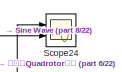
[diagram: root canvas - part 1/22, top left region]
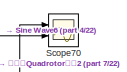
[diagram: root canvas - part 2/22, top right region]
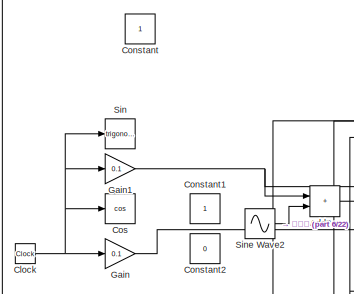
[diagram: root canvas - part 3/22, top left region]
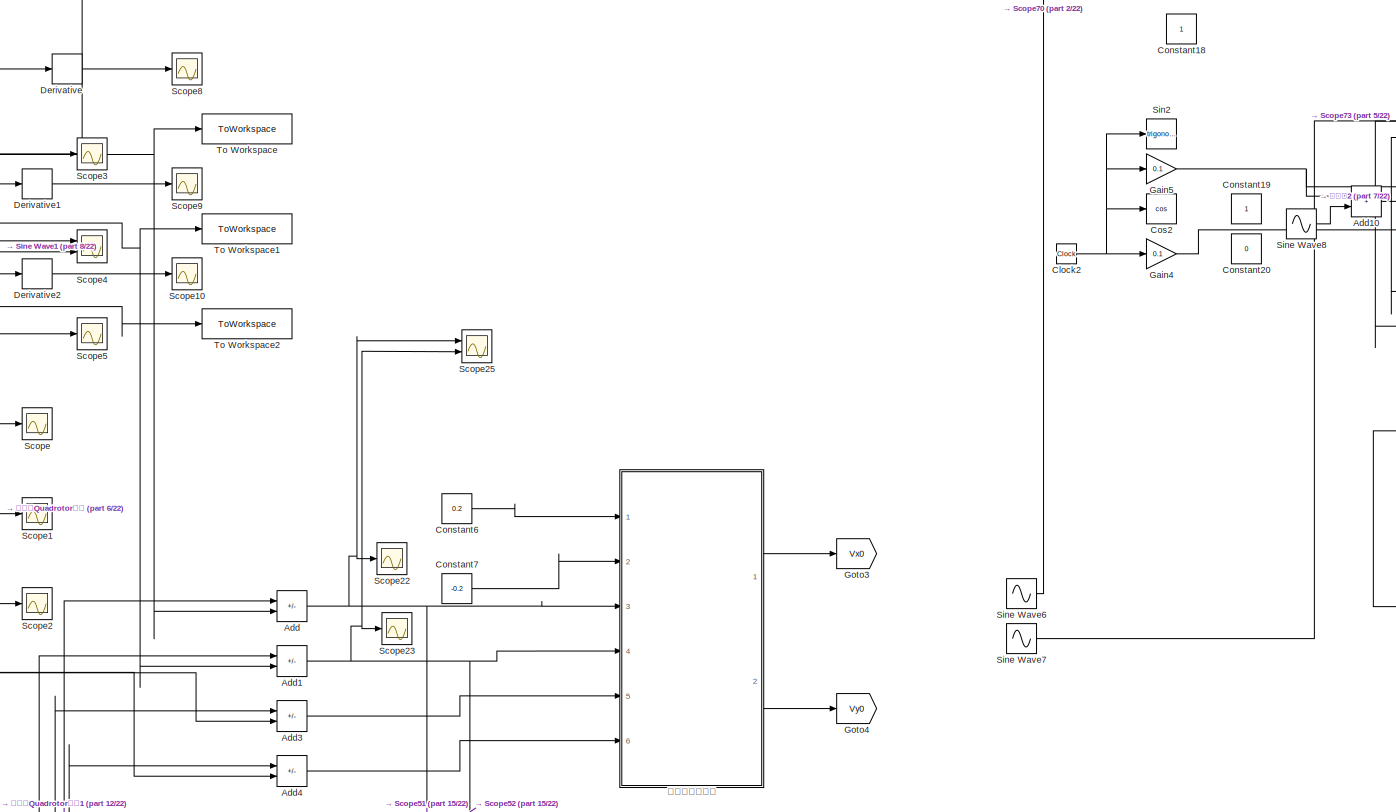
[diagram: root canvas - part 4/22, top center region]
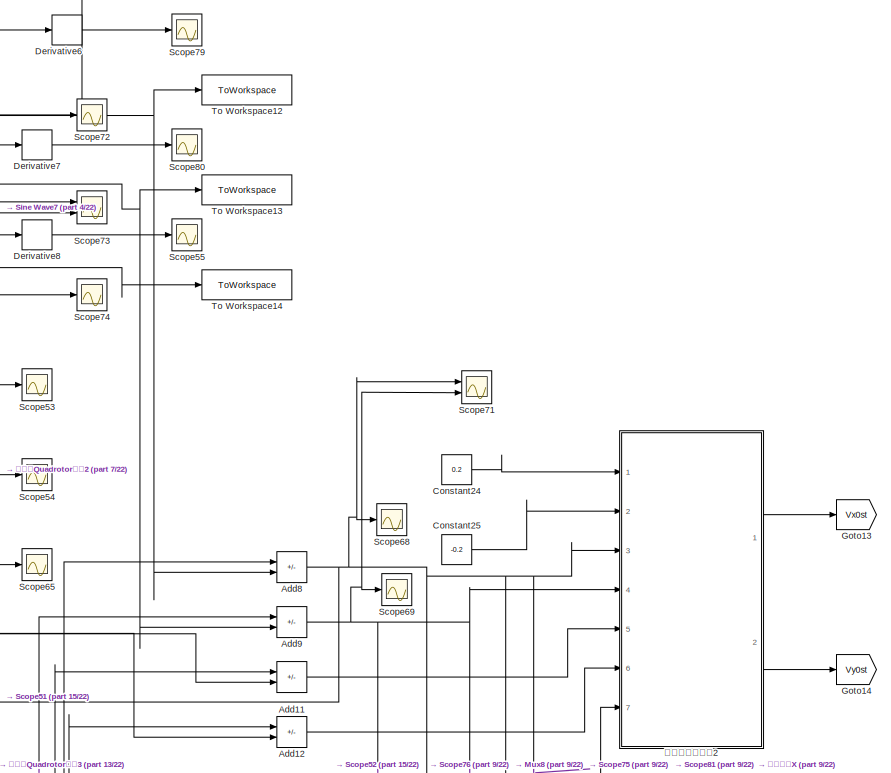
[diagram: root canvas - part 5/22, top right region]
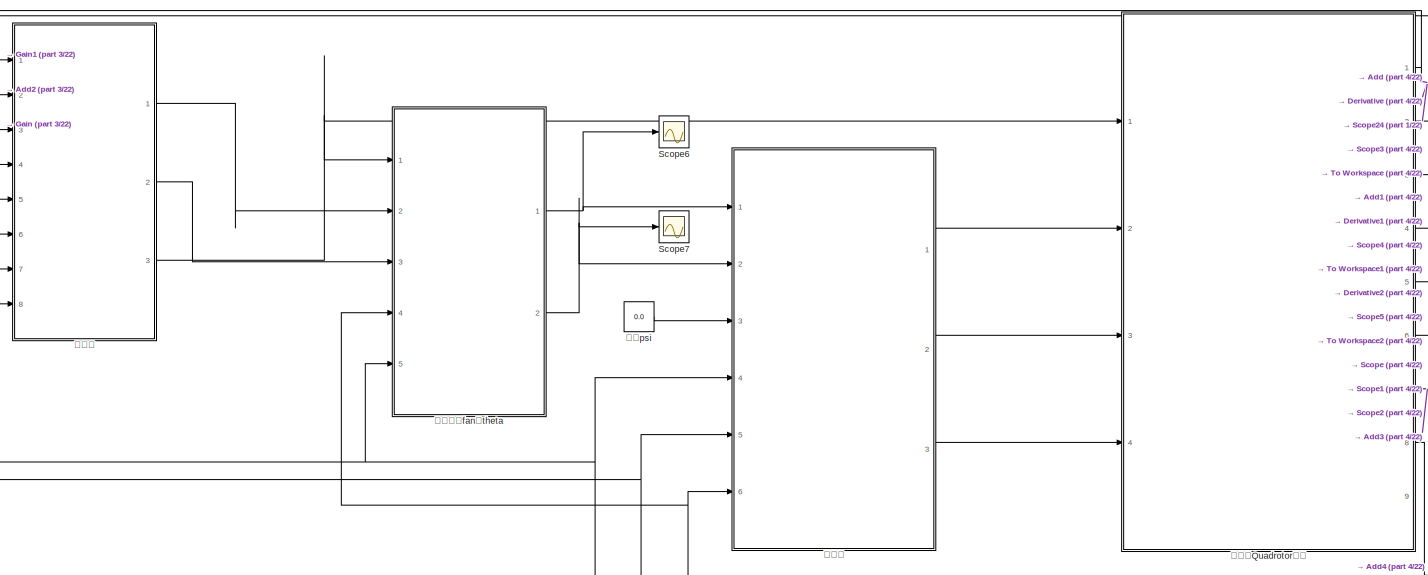
[diagram: root canvas - part 6/22, top left region]
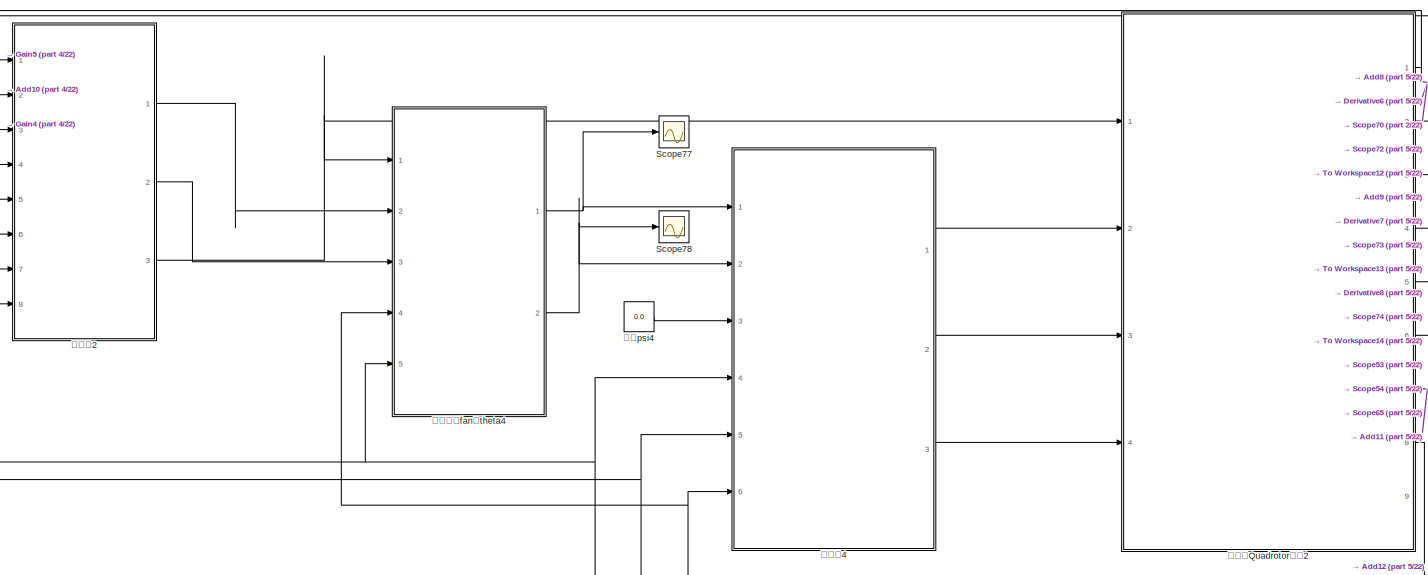
[diagram: root canvas - part 7/22, top center region]
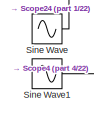
[diagram: root canvas - part 8/22, top left region]
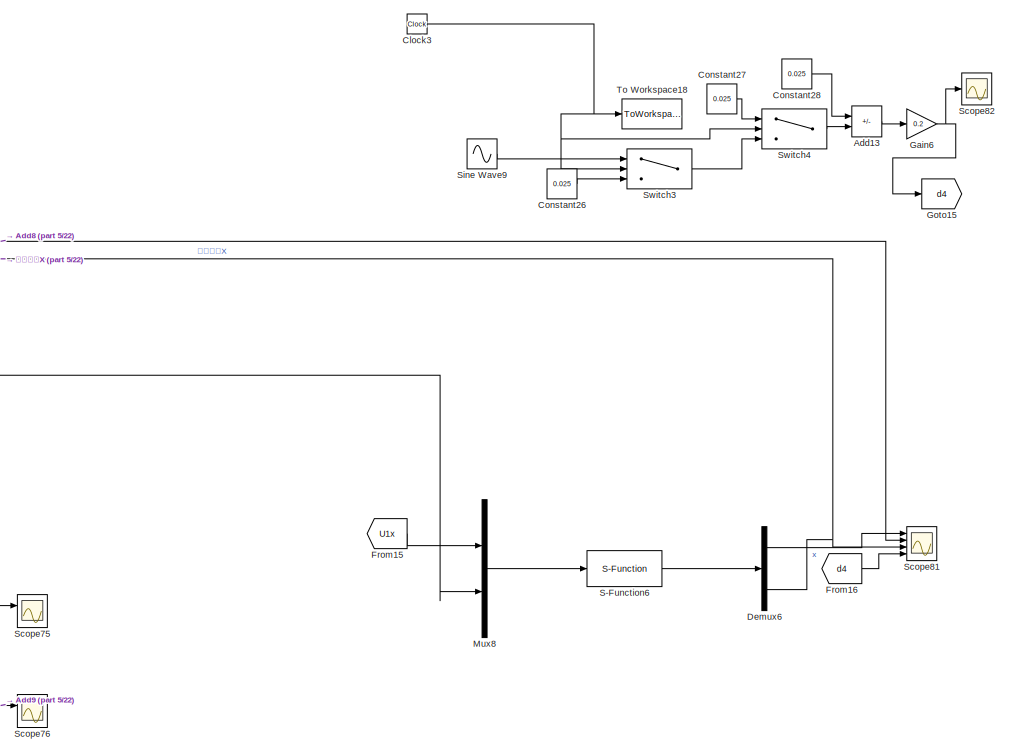
[diagram: root canvas - part 9/22, middle right region]
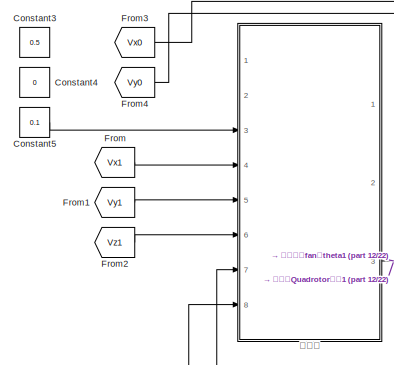
[diagram: root canvas - part 10/22, middle left region]
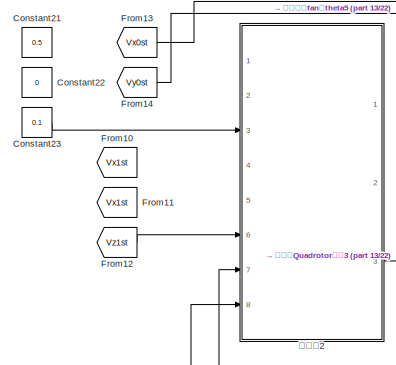
[diagram: root canvas - part 11/22, central region]
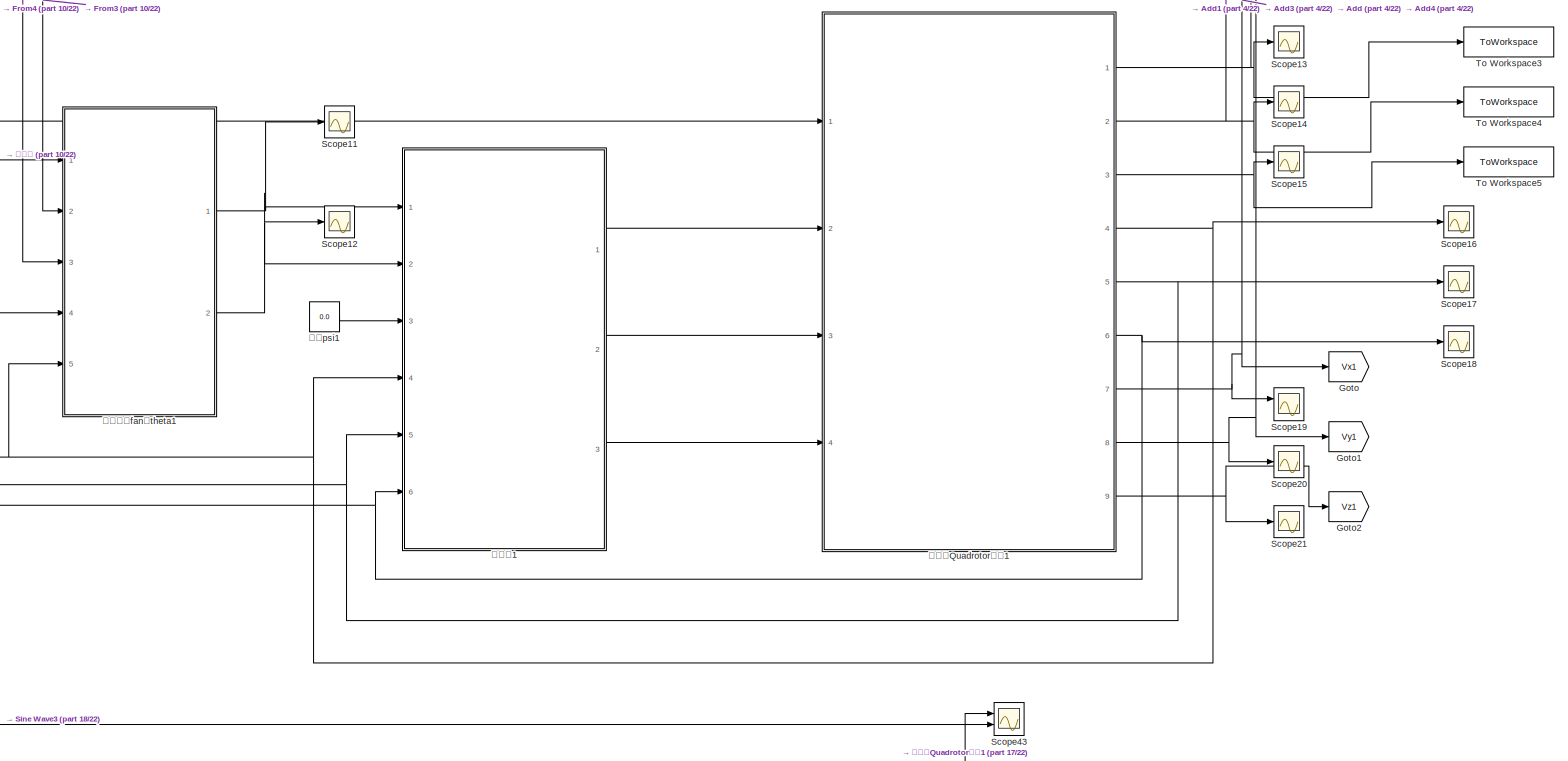
[diagram: root canvas - part 12/22, middle left region]
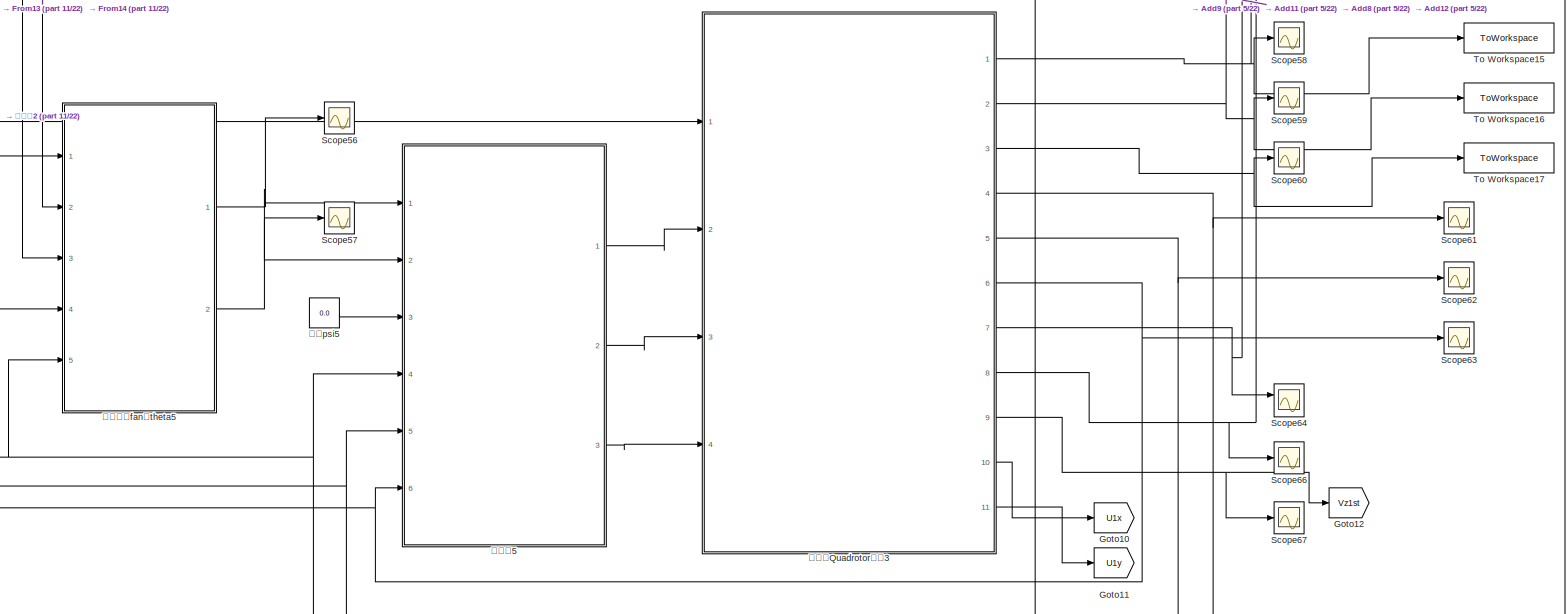
[diagram: root canvas - part 13/22, central region]
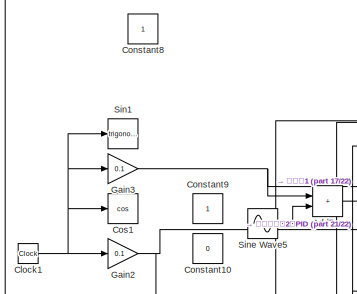
[diagram: root canvas - part 14/22, middle left region]
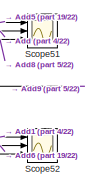
[diagram: root canvas - part 15/22, middle right region]
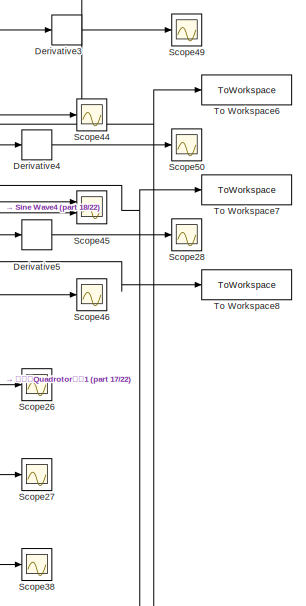
[diagram: root canvas - part 16/22, central region]
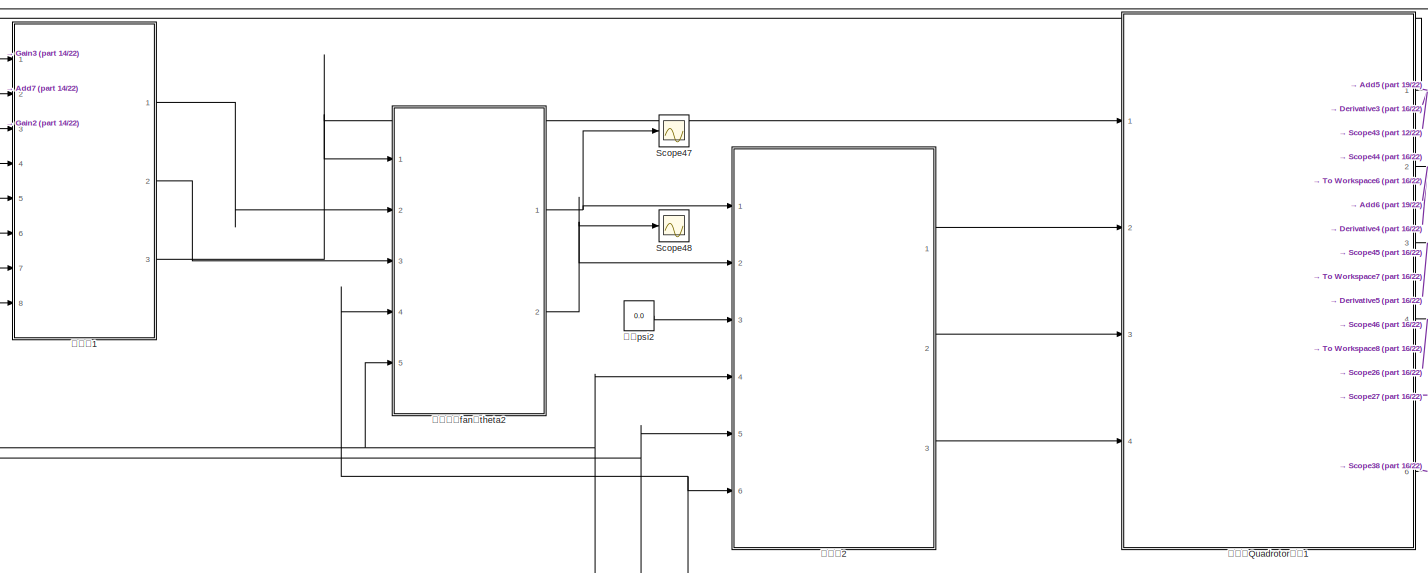
[diagram: root canvas - part 17/22, middle left region]
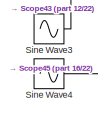
[diagram: root canvas - part 18/22, bottom left region]
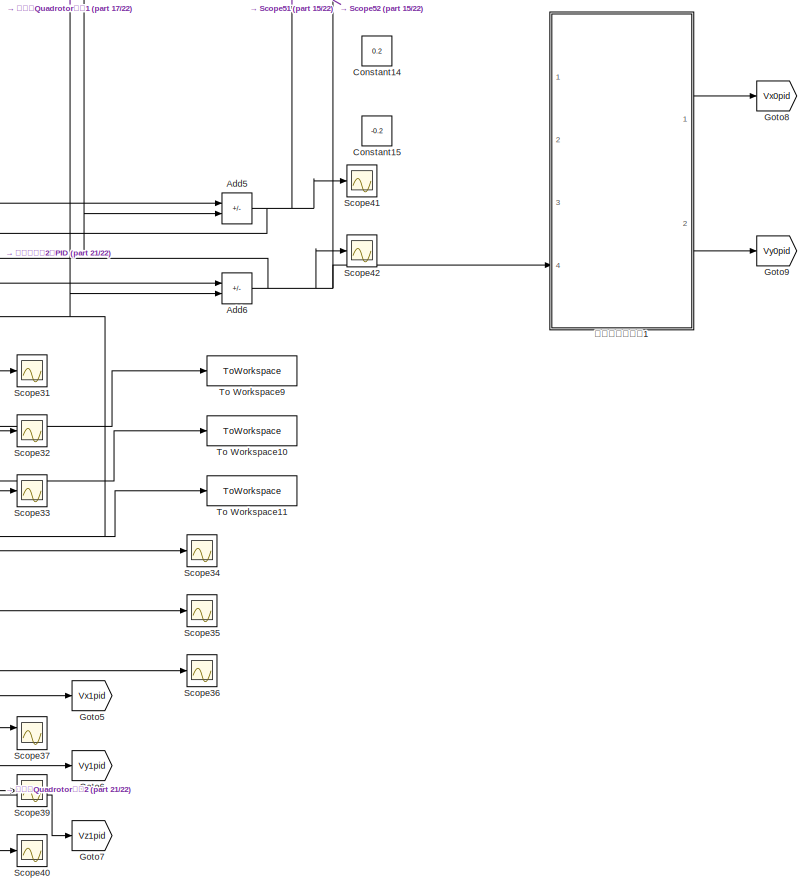
[diagram: root canvas - part 19/22, bottom center region]
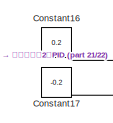
[diagram: root canvas - part 20/22, bottom left region]
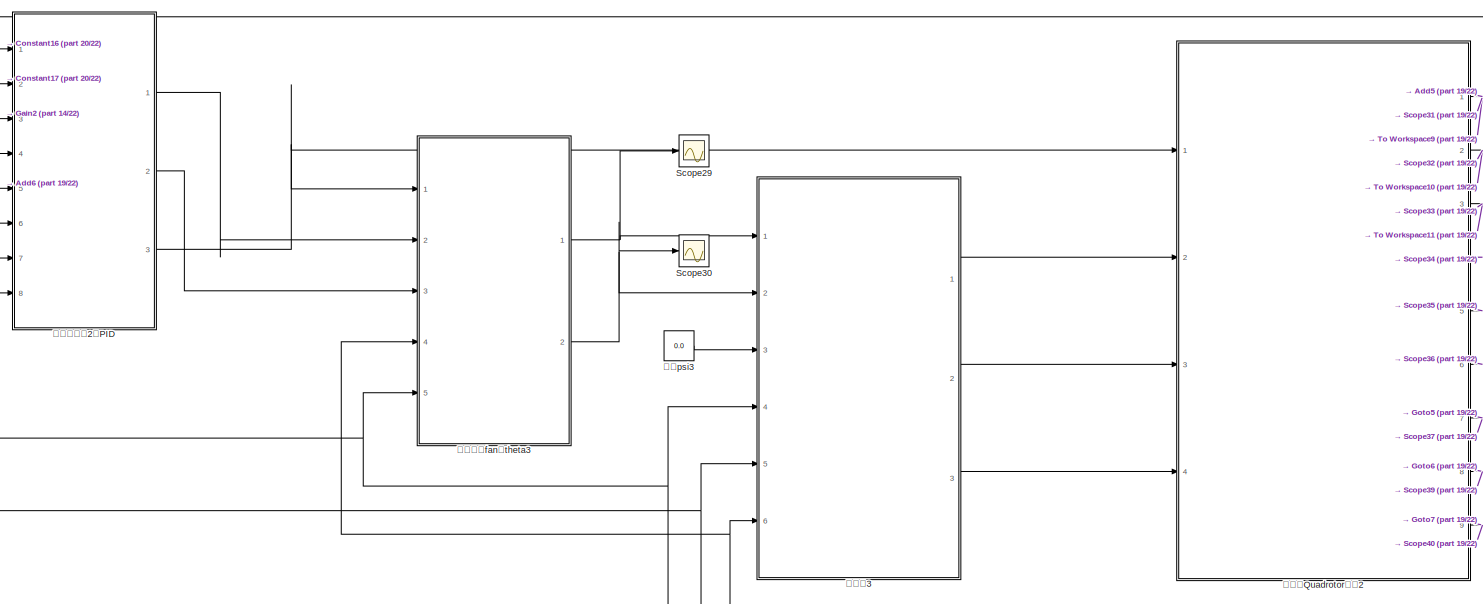
[diagram: root canvas - part 21/22, bottom left region]
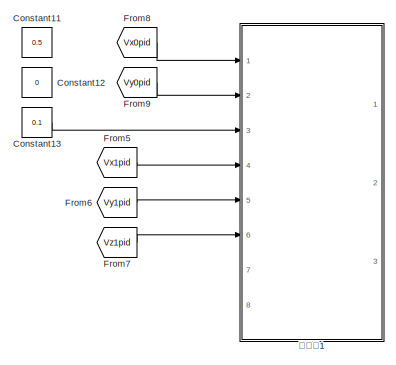
[diagram: root canvas - part 22/22, bottom left region]
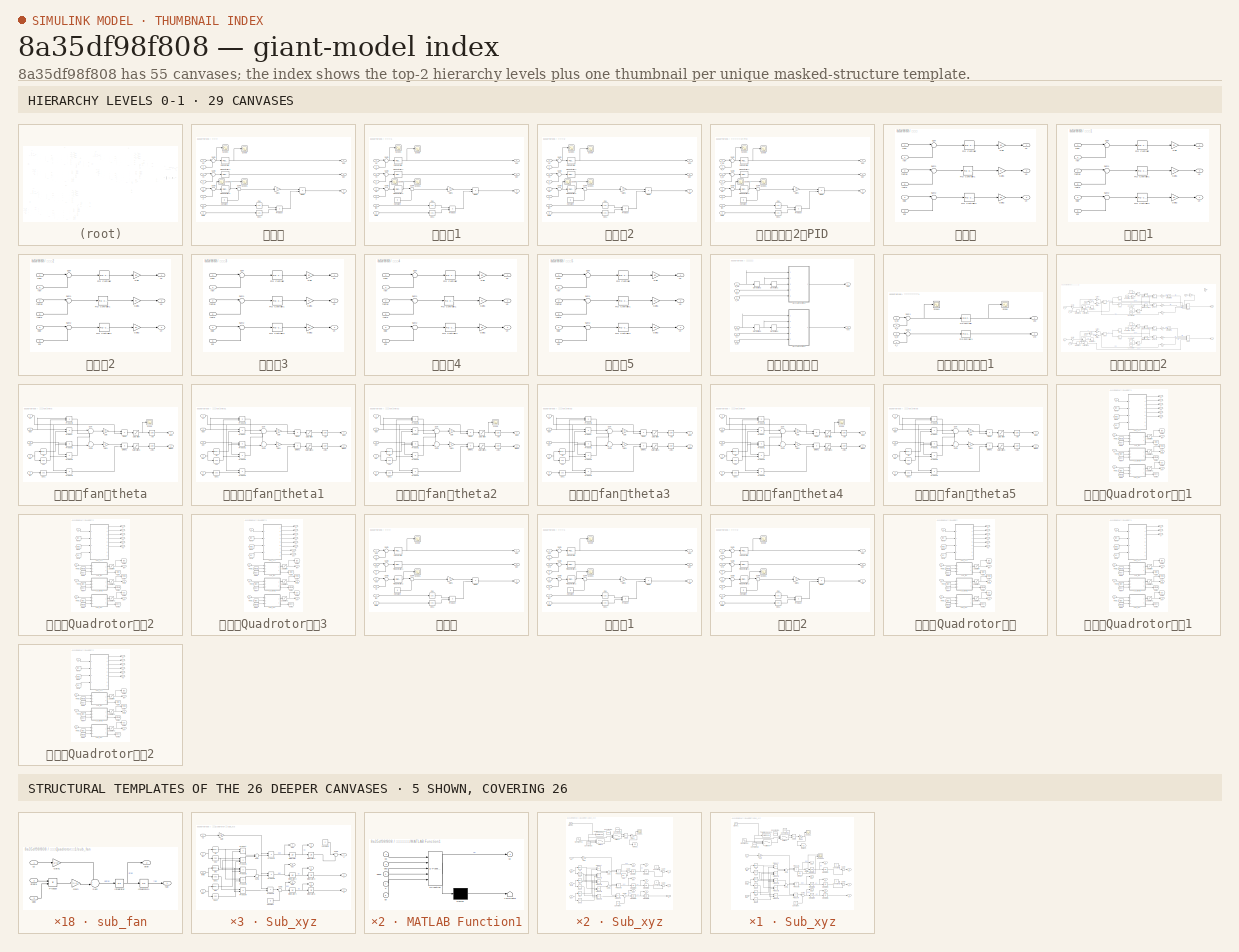
[diagram: thumbnail index - top-2 hierarchy levels (29 canvases) + 5 structural-template representatives of the remaining 26 canvases]
MODEL slx_8a35df98f808
KIND model
CONFIG AbsTol = auto
CONFIG EnableMultiTasking = off
CONFIG FixedStep = 0.001
CONFIG MaxStep = auto
CONFIG MinStep = auto
CONFIG RelTol = 1e-3
CONFIG SampleTimeConstraint = Unconstrained
CONFIG SolverName = FixedStepAuto
CONFIG StartTime = 0.0
CONFIG StopTime = 240
BLOCK [Sum] Add
  IconShape = rectangular
  Inputs = +-
  Ports = [2, 1]
BLOCK [Sum] Add1
  IconShape = rectangular
  Inputs = +-
  Ports = [2, 1]
BLOCK [Sum] Add10
  IconShape = rectangular
  Ports = [2, 1]
BLOCK [Sum] Add11
  IconShape = rectangular
  Inputs = +-
  Ports = [2, 1]
BLOCK [Sum] Add12
  IconShape = rectangular
  Inputs = +-
  Ports = [2, 1]
BLOCK [Sum] Add13
  IconShape = rectangular
  Inputs = -+
  Ports = [2, 1]
BLOCK [Sum] Add2
  IconShape = rectangular
  Ports = [2, 1]
BLOCK [Sum] Add3
  IconShape = rectangular
  Inputs = +-
  Ports = [2, 1]
BLOCK [Sum] Add4
  IconShape = rectangular
  Inputs = +-
  Ports = [2, 1]
BLOCK [Sum] Add5
  IconShape = rectangular
  Inputs = +-
  Ports = [2, 1]
BLOCK [Sum] Add6
  IconShape = rectangular
  Inputs = +-
  Ports = [2, 1]
BLOCK [Sum] Add7
  IconShape = rectangular
  Ports = [2, 1]
BLOCK [Sum] Add8
  IconShape = rectangular
  Inputs = +-
  Ports = [2, 1]
BLOCK [Sum] Add9
  IconShape = rectangular
  Inputs = +-
  Ports = [2, 1]
BLOCK [Clock] Clock
BLOCK [Clock] Clock1
BLOCK [Clock] Clock2
BLOCK [Clock] Clock3
BLOCK [Constant] Constant
BLOCK [Constant] Constant1
BLOCK [Constant] Constant10
  Value = 0
BLOCK [Constant] Constant11
  Value = 0.5
BLOCK [Constant] Constant12
  Value = 0
BLOCK [Constant] Constant13
  Value = 0.1
BLOCK [Constant] Constant14
  Value = 0.2
BLOCK [Constant] Constant15
  Value = -0.2
BLOCK [Constant] Constant16
  Value = 0.2
BLOCK [Constant] Constant17
  Value = -0.2
BLOCK [Constant] Constant18
BLOCK [Constant] Constant19
BLOCK [Constant] Constant2
  Value = 0
BLOCK [Constant] Constant20
  Value = 0
BLOCK [Constant] Constant21
  Value = 0.5
BLOCK [Constant] Constant22
  Value = 0
BLOCK [Constant] Constant23
  Value = 0.1
BLOCK [Constant] Constant24
  Value = 0.2
BLOCK [Constant] Constant25
  Value = -0.2
BLOCK [Constant] Constant26
  Value = 0.025
BLOCK [Constant] Constant27
  Value = 0.025
BLOCK [Constant] Constant28
  Value = 0.025
BLOCK [Constant] Constant3
  Value = 0.5
BLOCK [Constant] Constant4
  Value = 0
BLOCK [Constant] Constant5
  Value = 0.1
BLOCK [Constant] Constant6
  Value = 0.2
BLOCK [Constant] Constant7
  Value = -0.2
BLOCK [Constant] Constant8
BLOCK [Constant] Constant9
BLOCK [Trigonometry] Cos
  Operator = cos
  Ports = [1, 1]
BLOCK [Trigonometry] Cos1
  Operator = cos
  Ports = [1, 1]
BLOCK [Trigonometry] Cos2
  Operator = cos
  Ports = [1, 1]
BLOCK [Demux] Demux6
  Outputs = 3
  Ports = [1, 3]
BLOCK [Derivative] Derivative
BLOCK [Derivative] Derivative1
BLOCK [Derivative] Derivative2
BLOCK [Derivative] Derivative3
BLOCK [Derivative] Derivative4
BLOCK [Derivative] Derivative5
BLOCK [Derivative] Derivative6
BLOCK [Derivative] Derivative7
BLOCK [Derivative] Derivative8
BLOCK [From] From
  GotoTag = Vx1
BLOCK [From] From1
  GotoTag = Vy1
BLOCK [From] From10
  GotoTag = Vx1st
BLOCK [From] From11
  GotoTag = Vx1st
BLOCK [From] From12
  GotoTag = Vz1st
BLOCK [From] From13
  GotoTag = Vx0st
BLOCK [From] From14
  GotoTag = Vy0st
BLOCK [From] From15
  GotoTag = U1x
BLOCK [From] From16
  GotoTag = d4
BLOCK [From] From2
  GotoTag = Vz1
BLOCK [From] From3
  GotoTag = Vx0
BLOCK [From] From4
  GotoTag = Vy0
BLOCK [From] From5
  GotoTag = Vx1pid
BLOCK [From] From6
  GotoTag = Vy1pid
BLOCK [From] From7
  GotoTag = Vz1pid
BLOCK [From] From8
  GotoTag = Vx0pid
BLOCK [From] From9
  GotoTag = Vy0pid
BLOCK [Gain] Gain
  Gain = 0.1
BLOCK [Gain] Gain1
  Gain = 0.1
BLOCK [Gain] Gain2
  Gain = 0.1
BLOCK [Gain] Gain3
  Gain = 0.1
BLOCK [Gain] Gain4
  Gain = 0.1
BLOCK [Gain] Gain5
  Gain = 0.1
BLOCK [Gain] Gain6
  Gain = 0.2
BLOCK [Goto] Goto
  GotoTag = Vx1
BLOCK [Goto] Goto1
  GotoTag = Vy1
BLOCK [Goto] Goto10
  GotoTag = U1x
BLOCK [Goto] Goto11
  GotoTag = U1y
BLOCK [Goto] Goto12
  GotoTag = Vz1st
BLOCK [Goto] Goto13
  GotoTag = Vx0st
BLOCK [Goto] Goto14
  GotoTag = Vy0st
BLOCK [Goto] Goto15
  GotoTag = d4
BLOCK [Goto] Goto2
  GotoTag = Vz1
BLOCK [Goto] Goto3
  GotoTag = Vx0
BLOCK [Goto] Goto4
  GotoTag = Vy0
BLOCK [Goto] Goto5
  GotoTag = Vx1pid
BLOCK [Goto] Goto6
  GotoTag = Vy1pid
BLOCK [Goto] Goto7
  GotoTag = Vz1pid
BLOCK [Goto] Goto8
  GotoTag = Vx0pid
BLOCK [Goto] Goto9
  GotoTag = Vy0pid
BLOCK [Mux] Mux8
  DisplayOption = bar
  Inputs = 2
  Ports = [2, 1]
BLOCK [S-Function] S-Function6
  EnableBusSupport = off
  FunctionName = FTO_x
  Ports = [1, 1]
  SFcnIsStateOwnerBlock = off
  SFunctionDeploymentMode = off
BLOCK [Scope] Scope
  Floating = off
  NumInputPorts = 1
  Ports = [1]
  ScopeSpecificationString = Simulink.scopes.TimeScopeBlockCfg('CurrentConfiguration', extmgr.ConfigurationSet(extmgr.Configuration('Core','General UI',true),extmgr.Configuration('Core','Source UI',true),extmgr.Configuration('Sources','WiredSimulink',true),extmgr.Configuration('Visuals','Time Domain',true,'SerializedDisplays',{struct('MinYLimReal','-1.06962','MaxYLimReal','0.30362','YLabelReal','','MinYLimMag','0.00000','MaxY...<+1391ch>
BLOCK [Scope] Scope1
  Floating = off
  NumInputPorts = 1
  Ports = [1]
  ScopeSpecificationString = Simulink.scopes.TimeScopeBlockCfg('CurrentConfiguration', extmgr.ConfigurationSet(extmgr.Configuration('Core','General UI',true),extmgr.Configuration('Core','Source UI',true),extmgr.Configuration('Sources','WiredSimulink',true,'DataLoggingVariableName','ScopeData1'),extmgr.Configuration('Visuals','Time Domain',true,'SerializedDisplays',{struct('MinYLimReal','-1.48799','MaxYLimReal','0.68194','YLab...<+1430ch>
BLOCK [Scope] Scope10
  Floating = off
  NumInputPorts = 1
  Ports = [1]
  ScopeSpecificationString = Simulink.scopes.TimeScopeBlockCfg('CurrentConfiguration', extmgr.ConfigurationSet(extmgr.Configuration('Core','General UI',true),extmgr.Configuration('Core','Source UI',true),extmgr.Configuration('Sources','WiredSimulink',true,'DataLoggingVariableName','ScopeData3'),extmgr.Configuration('Visuals','Time Domain',true,'SerializedDisplays',{struct('MinYLimReal','-0.01477','MaxYLimReal','0.13295','YLab...<+1525ch>
BLOCK [Scope] Scope11
  Floating = off
  NumInputPorts = 1
  Ports = [1]
  ScopeSpecificationString = Simulink.scopes.TimeScopeBlockCfg('CurrentConfiguration', extmgr.ConfigurationSet(extmgr.Configuration('Core','General UI',true),extmgr.Configuration('Core','Source UI',true),extmgr.Configuration('Sources','WiredSimulink',true,'DataLoggingVariableName','ScopeData4'),extmgr.Configuration('Visuals','Time Domain',true,'SerializedDisplays',{struct('MinYLimReal','-1.00000','MaxYLimReal','1.00000','YLab...<+1428ch>
BLOCK [Scope] Scope12
  Floating = off
  NumInputPorts = 1
  Ports = [1]
  ScopeSpecificationString = Simulink.scopes.TimeScopeBlockCfg('CurrentConfiguration', extmgr.ConfigurationSet(extmgr.Configuration('Core','General UI',true),extmgr.Configuration('Core','Source UI',true),extmgr.Configuration('Sources','WiredSimulink',true,'DataLoggingVariableName','ScopeData5'),extmgr.Configuration('Visuals','Time Domain',true,'SerializedDisplays',{struct('MinYLimReal','-1.00000','MaxYLimReal','1.00000','YLab...<+1428ch>
BLOCK [Scope] Scope13
  Floating = off
  NumInputPorts = 1
  Ports = [1]
  ScopeSpecificationString = Simulink.scopes.TimeScopeBlockCfg('CurrentConfiguration', extmgr.ConfigurationSet(extmgr.Configuration('Core','General UI',true),extmgr.Configuration('Core','Source UI',true),extmgr.Configuration('Sources','WiredSimulink',true,'DataLoggingVariableName','ScopeData6'),extmgr.Configuration('Visuals','Time Domain',true,'SerializedDisplays',{struct('MinYLimReal','-2.40912','MaxYLimReal','27.15286','YLa...<+1579ch>
BLOCK [Scope] Scope14
  Floating = off
  NumInputPorts = 1
  Ports = [1]
  ScopeSpecificationString = Simulink.scopes.TimeScopeBlockCfg('CurrentConfiguration', extmgr.ConfigurationSet(extmgr.Configuration('Core','General UI',true),extmgr.Configuration('Core','Source UI',true),extmgr.Configuration('Sources','WiredSimulink',true,'DataLoggingVariableName','ScopeData7'),extmgr.Configuration('Visuals','Time Domain',true,'SerializedDisplays',{struct('MinYLimReal','1.41759','MaxYLimReal','1.77615','YLabe...<+1550ch>
BLOCK [Scope] Scope15
  Floating = off
  NumInputPorts = 1
  Ports = [1]
  ScopeSpecificationString = Simulink.scopes.TimeScopeBlockCfg('CurrentConfiguration', extmgr.ConfigurationSet(extmgr.Configuration('Core','General UI',true),extmgr.Configuration('Core','Source UI',true),extmgr.Configuration('Sources','WiredSimulink',true,'DataLoggingVariableName','ScopeData8'),extmgr.Configuration('Visuals','Time Domain',true,'SerializedDisplays',{struct('MinYLimReal','-0.625','MaxYLimReal','5.625','YLabelRe...<+1519ch>
BLOCK [Scope] Scope16
  Floating = off
  NumInputPorts = 1
  Ports = [1]
  ScopeSpecificationString = Simulink.scopes.TimeScopeBlockCfg('CurrentConfiguration', extmgr.ConfigurationSet(extmgr.Configuration('Core','General UI',true),extmgr.Configuration('Core','Source UI',true),extmgr.Configuration('Sources','WiredSimulink',true,'DataLoggingVariableName','ScopeData9'),extmgr.Configuration('Visuals','Time Domain',true,'SerializedDisplays',{struct('MinYLimReal','-0.63474','MaxYLimReal','0.34736','YLab...<+1531ch>
BLOCK [Scope] Scope17
  Floating = off
  NumInputPorts = 1
  Ports = [1]
  ScopeSpecificationString = Simulink.scopes.TimeScopeBlockCfg('CurrentConfiguration', extmgr.ConfigurationSet(extmgr.Configuration('Core','General UI',true),extmgr.Configuration('Core','Source UI',true),extmgr.Configuration('Sources','WiredSimulink',true,'DataLoggingVariableName','ScopeData10'),extmgr.Configuration('Visuals','Time Domain',true,'SerializedDisplays',{struct('MinYLimReal','-0.03105','MaxYLimReal','0.14528','YLa...<+1532ch>
BLOCK [Scope] Scope18
  Floating = off
  NumInputPorts = 1
  Ports = [1]
  ScopeSpecificationString = Simulink.scopes.TimeScopeBlockCfg('CurrentConfiguration', extmgr.ConfigurationSet(extmgr.Configuration('Core','General UI',true),extmgr.Configuration('Core','Source UI',true),extmgr.Configuration('Sources','WiredSimulink',true,'DataLoggingVariableName','ScopeData11'),extmgr.Configuration('Visuals','Time Domain',true,'SerializedDisplays',{struct('MinYLimReal','-1.00000','MaxYLimReal','1.00000','YLa...<+1530ch>
BLOCK [Scope] Scope19
  Floating = off
  NumInputPorts = 2
  Ports = [2]
  ScopeSpecificationString = Simulink.scopes.TimeScopeBlockCfg('CurrentConfiguration', extmgr.ConfigurationSet(extmgr.Configuration('Core','General UI',true),extmgr.Configuration('Core','Source UI',true),extmgr.Configuration('Sources','WiredSimulink',true,'DataLoggingVariableName','ScopeData12'),extmgr.Configuration('Visuals','Time Domain',true,'SerializedDisplays',{struct('MinYLimReal','-0.60344','MaxYLimReal','0.17818','YLa...<+1540ch>
BLOCK [Scope] Scope2
  Floating = off
  NumInputPorts = 1
  Ports = [1]
  ScopeSpecificationString = Simulink.scopes.TimeScopeBlockCfg('CurrentConfiguration', extmgr.ConfigurationSet(extmgr.Configuration('Core','General UI',true),extmgr.Configuration('Core','Source UI',true),extmgr.Configuration('Sources','WiredSimulink',true,'DataLoggingVariableName','ScopeData2'),extmgr.Configuration('Visuals','Time Domain',true,'SerializedDisplays',{struct('MinYLimReal','-1.00000','MaxYLimReal','1.00000','YLab...<+1430ch>
BLOCK [Scope] Scope20
  Floating = off
  NumInputPorts = 1
  Ports = [1]
  ScopeSpecificationString = Simulink.scopes.TimeScopeBlockCfg('CurrentConfiguration', extmgr.ConfigurationSet(extmgr.Configuration('Core','General UI',true),extmgr.Configuration('Core','Source UI',true),extmgr.Configuration('Sources','WiredSimulink',true,'DataLoggingVariableName','ScopeData13'),extmgr.Configuration('Visuals','Time Domain',true,'SerializedDisplays',{struct('MinYLimReal','-0.03347','MaxYLimReal','0.30123','YLa...<+1533ch>
BLOCK [Scope] Scope21
  Floating = off
  NumInputPorts = 1
  Ports = [1]
  ScopeSpecificationString = Simulink.scopes.TimeScopeBlockCfg('CurrentConfiguration', extmgr.ConfigurationSet(extmgr.Configuration('Core','General UI',true),extmgr.Configuration('Core','Source UI',true),extmgr.Configuration('Sources','WiredSimulink',true,'DataLoggingVariableName','ScopeData14'),extmgr.Configuration('Visuals','Time Domain',true,'SerializedDisplays',{struct('MinYLimReal','-0.01283','MaxYLimReal','0.11545','YLa...<+1533ch>
BLOCK [Scope] Scope22
  Floating = off
  NumInputPorts = 1
  Ports = [1]
  ScopeSpecificationString = Simulink.scopes.TimeScopeBlockCfg('CurrentConfiguration', extmgr.ConfigurationSet(extmgr.Configuration('Core','General UI',true),extmgr.Configuration('Core','Source UI',true),extmgr.Configuration('Sources','WiredSimulink',true,'DataLoggingVariableName','ScopeData1'),extmgr.Configuration('Visuals','Time Domain',true,'SerializedDisplays',{struct('MinYLimReal','0.19984','MaxYLimReal','0.20014','YLabe...<+1482ch>
BLOCK [Scope] Scope23
  Floating = off
  NumInputPorts = 1
  Ports = [1]
  ScopeSpecificationString = Simulink.scopes.TimeScopeBlockCfg('CurrentConfiguration', extmgr.ConfigurationSet(extmgr.Configuration('Core','General UI',true),extmgr.Configuration('Core','Source UI',true),extmgr.Configuration('Sources','WiredSimulink',true,'DataLoggingVariableName','ScopeData2'),extmgr.Configuration('Visuals','Time Domain',true,'SerializedDisplays',{struct('MinYLimReal','-1.16541','MaxYLimReal','-0.0925','YLab...<+1463ch>
BLOCK [Scope] Scope24
  Floating = off
  NumInputPorts = 2
  Ports = [2]
  ScopeSpecificationString = Simulink.scopes.TimeScopeBlockCfg('CurrentConfiguration', extmgr.ConfigurationSet(extmgr.Configuration('Core','General UI',true),extmgr.Configuration('Core','Source UI',true),extmgr.Configuration('Sources','WiredSimulink',true,'DataLoggingVariableName','ScopeData1'),extmgr.Configuration('Visuals','Time Domain',true,'SerializedDisplays',{struct('MinYLimReal','-4.12471','MaxYLimReal','27.12238','YLa...<+1445ch>
BLOCK [Scope] Scope25
  Floating = off
  NumInputPorts = 2
  Ports = [2]
  ScopeSpecificationString = Simulink.scopes.TimeScopeBlockCfg('CurrentConfiguration', extmgr.ConfigurationSet(extmgr.Configuration('Core','General UI',true),extmgr.Configuration('Core','Source UI',true),extmgr.Configuration('Sources','WiredSimulink',true,'DataLoggingVariableName','ScopeData1'),extmgr.Configuration('Visuals','Time Domain',true,'SerializedDisplays',{struct('MinYLimReal','-322.67957','MaxYLimReal','2238.27789',...<+1487ch>
BLOCK [Scope] Scope26
  Floating = off
  NumInputPorts = 1
  Ports = [1]
  ScopeSpecificationString = Simulink.scopes.TimeScopeBlockCfg('CurrentConfiguration', extmgr.ConfigurationSet(extmgr.Configuration('Core','General UI',true),extmgr.Configuration('Core','Source UI',true),extmgr.Configuration('Sources','WiredSimulink',true,'DataLoggingVariableName','ScopeData1'),extmgr.Configuration('Visuals','Time Domain',true,'SerializedDisplays',{struct('MinYLimReal','-1.06962','MaxYLimReal','0.30362','YLab...<+1430ch>
BLOCK [Scope] Scope27
  Floating = off
  NumInputPorts = 1
  Ports = [1]
  ScopeSpecificationString = Simulink.scopes.TimeScopeBlockCfg('CurrentConfiguration', extmgr.ConfigurationSet(extmgr.Configuration('Core','General UI',true),extmgr.Configuration('Core','Source UI',true),extmgr.Configuration('Sources','WiredSimulink',true,'DataLoggingVariableName','ScopeData2'),extmgr.Configuration('Visuals','Time Domain',true,'SerializedDisplays',{struct('MinYLimReal','-1.48799','MaxYLimReal','0.68194','YLab...<+1430ch>
BLOCK [Scope] Scope28
  Floating = off
  NumInputPorts = 1
  Ports = [1]
  ScopeSpecificationString = Simulink.scopes.TimeScopeBlockCfg('CurrentConfiguration', extmgr.ConfigurationSet(extmgr.Configuration('Core','General UI',true),extmgr.Configuration('Core','Source UI',true),extmgr.Configuration('Sources','WiredSimulink',true,'DataLoggingVariableName','ScopeData3'),extmgr.Configuration('Visuals','Time Domain',true,'SerializedDisplays',{struct('MinYLimReal','-0.01477','MaxYLimReal','0.13295','YLab...<+1525ch>
BLOCK [Scope] Scope29
  Floating = off
  NumInputPorts = 1
  Ports = [1]
  ScopeSpecificationString = Simulink.scopes.TimeScopeBlockCfg('CurrentConfiguration', extmgr.ConfigurationSet(extmgr.Configuration('Core','General UI',true),extmgr.Configuration('Core','Source UI',true),extmgr.Configuration('Sources','WiredSimulink',true,'DataLoggingVariableName','ScopeData4'),extmgr.Configuration('Visuals','Time Domain',true,'SerializedDisplays',{struct('MinYLimReal','-1.00000','MaxYLimReal','1.00000','YLab...<+1428ch>
BLOCK [Scope] Scope3
  Floating = off
  NumInputPorts = 1
  Ports = [1]
  ScopeSpecificationString = Simulink.scopes.TimeScopeBlockCfg('CurrentConfiguration', extmgr.ConfigurationSet(extmgr.Configuration('Core','General UI',true),extmgr.Configuration('Core','Source UI',true),extmgr.Configuration('Sources','WiredSimulink',true,'DataLoggingVariableName','ScopeData1'),extmgr.Configuration('Visuals','Time Domain',true,'SerializedDisplays',{struct('MinYLimReal','-2.99971','MaxYLimReal','26.99738','YLa...<+1534ch>
BLOCK [Scope] Scope30
  Floating = off
  NumInputPorts = 1
  Ports = [1]
  ScopeSpecificationString = Simulink.scopes.TimeScopeBlockCfg('CurrentConfiguration', extmgr.ConfigurationSet(extmgr.Configuration('Core','General UI',true),extmgr.Configuration('Core','Source UI',true),extmgr.Configuration('Sources','WiredSimulink',true,'DataLoggingVariableName','ScopeData5'),extmgr.Configuration('Visuals','Time Domain',true,'SerializedDisplays',{struct('MinYLimReal','-1.00000','MaxYLimReal','1.00000','YLab...<+1428ch>
BLOCK [Scope] Scope31
  Floating = off
  NumInputPorts = 1
  Ports = [1]
  ScopeSpecificationString = Simulink.scopes.TimeScopeBlockCfg('CurrentConfiguration', extmgr.ConfigurationSet(extmgr.Configuration('Core','General UI',true),extmgr.Configuration('Core','Source UI',true),extmgr.Configuration('Sources','WiredSimulink',true,'DataLoggingVariableName','ScopeData6'),extmgr.Configuration('Visuals','Time Domain',true,'SerializedDisplays',{struct('MinYLimReal','-2.44674','MaxYLimReal','27.16072','YLa...<+1579ch>
BLOCK [Scope] Scope32
  Floating = off
  NumInputPorts = 1
  Ports = [1]
  ScopeSpecificationString = Simulink.scopes.TimeScopeBlockCfg('CurrentConfiguration', extmgr.ConfigurationSet(extmgr.Configuration('Core','General UI',true),extmgr.Configuration('Core','Source UI',true),extmgr.Configuration('Sources','WiredSimulink',true,'DataLoggingVariableName','ScopeData7'),extmgr.Configuration('Visuals','Time Domain',true,'SerializedDisplays',{struct('MinYLimReal','-4.04551','MaxYLimReal','26.40961','YLa...<+1535ch>
BLOCK [Scope] Scope33
  Floating = off
  NumInputPorts = 1
  Ports = [1]
  ScopeSpecificationString = Simulink.scopes.TimeScopeBlockCfg('CurrentConfiguration', extmgr.ConfigurationSet(extmgr.Configuration('Core','General UI',true),extmgr.Configuration('Core','Source UI',true),extmgr.Configuration('Sources','WiredSimulink',true,'DataLoggingVariableName','ScopeData8'),extmgr.Configuration('Visuals','Time Domain',true,'SerializedDisplays',{struct('MinYLimReal','-0.625','MaxYLimReal','5.625','YLabelRe...<+1519ch>
BLOCK [Scope] Scope34
  Floating = off
  NumInputPorts = 1
  Ports = [1]
  ScopeSpecificationString = Simulink.scopes.TimeScopeBlockCfg('CurrentConfiguration', extmgr.ConfigurationSet(extmgr.Configuration('Core','General UI',true),extmgr.Configuration('Core','Source UI',true),extmgr.Configuration('Sources','WiredSimulink',true,'DataLoggingVariableName','ScopeData9'),extmgr.Configuration('Visuals','Time Domain',true,'SerializedDisplays',{struct('MinYLimReal','-0.63474','MaxYLimReal','0.34736','YLab...<+1531ch>
BLOCK [Scope] Scope35
  Floating = off
  NumInputPorts = 1
  Ports = [1]
  ScopeSpecificationString = Simulink.scopes.TimeScopeBlockCfg('CurrentConfiguration', extmgr.ConfigurationSet(extmgr.Configuration('Core','General UI',true),extmgr.Configuration('Core','Source UI',true),extmgr.Configuration('Sources','WiredSimulink',true,'DataLoggingVariableName','ScopeData10'),extmgr.Configuration('Visuals','Time Domain',true,'SerializedDisplays',{struct('MinYLimReal','-0.03105','MaxYLimReal','0.14528','YLa...<+1532ch>
BLOCK [Scope] Scope36
  Floating = off
  NumInputPorts = 1
  Ports = [1]
  ScopeSpecificationString = Simulink.scopes.TimeScopeBlockCfg('CurrentConfiguration', extmgr.ConfigurationSet(extmgr.Configuration('Core','General UI',true),extmgr.Configuration('Core','Source UI',true),extmgr.Configuration('Sources','WiredSimulink',true,'DataLoggingVariableName','ScopeData11'),extmgr.Configuration('Visuals','Time Domain',true,'SerializedDisplays',{struct('MinYLimReal','-1.00000','MaxYLimReal','1.00000','YLa...<+1530ch>
BLOCK [Scope] Scope37
  Floating = off
  NumInputPorts = 2
  Ports = [2]
  ScopeSpecificationString = Simulink.scopes.TimeScopeBlockCfg('CurrentConfiguration', extmgr.ConfigurationSet(extmgr.Configuration('Core','General UI',true),extmgr.Configuration('Core','Source UI',true),extmgr.Configuration('Sources','WiredSimulink',true,'DataLoggingVariableName','ScopeData12'),extmgr.Configuration('Visuals','Time Domain',true,'SerializedDisplays',{struct('MinYLimReal','-0.30299','MaxYLimReal','0.1479','YLab...<+1538ch>
BLOCK [Scope] Scope38
  Floating = off
  NumInputPorts = 1
  Ports = [1]
  ScopeSpecificationString = Simulink.scopes.TimeScopeBlockCfg('CurrentConfiguration', extmgr.ConfigurationSet(extmgr.Configuration('Core','General UI',true),extmgr.Configuration('Core','Source UI',true),extmgr.Configuration('Sources','WiredSimulink',true,'DataLoggingVariableName','ScopeData13'),extmgr.Configuration('Visuals','Time Domain',true,'SerializedDisplays',{struct('MinYLimReal','-1.00000','MaxYLimReal','1.00000','YLa...<+1431ch>
BLOCK [Scope] Scope39
  Floating = off
  NumInputPorts = 1
  Ports = [1]
  ScopeSpecificationString = Simulink.scopes.TimeScopeBlockCfg('CurrentConfiguration', extmgr.ConfigurationSet(extmgr.Configuration('Core','General UI',true),extmgr.Configuration('Core','Source UI',true),extmgr.Configuration('Sources','WiredSimulink',true,'DataLoggingVariableName','ScopeData14'),extmgr.Configuration('Visuals','Time Domain',true,'SerializedDisplays',{struct('MinYLimReal','-0.03347','MaxYLimReal','0.30123','YLa...<+1533ch>
BLOCK [Scope] Scope4
  Floating = off
  NumInputPorts = 2
  Ports = [2]
  ScopeSpecificationString = Simulink.scopes.TimeScopeBlockCfg('CurrentConfiguration', extmgr.ConfigurationSet(extmgr.Configuration('Core','General UI',true),extmgr.Configuration('Core','Source UI',true),extmgr.Configuration('Sources','WiredSimulink',true,'DataLoggingVariableName','ScopeData2'),extmgr.Configuration('Visuals','Time Domain',true,'SerializedDisplays',{struct('MinYLimReal','-4.07051','MaxYLimReal','26.63462','YLa...<+1547ch>
BLOCK [Scope] Scope40
  Floating = off
  NumInputPorts = 1
  Ports = [1]
  ScopeSpecificationString = Simulink.scopes.TimeScopeBlockCfg('CurrentConfiguration', extmgr.ConfigurationSet(extmgr.Configuration('Core','General UI',true),extmgr.Configuration('Core','Source UI',true),extmgr.Configuration('Sources','WiredSimulink',true,'DataLoggingVariableName','ScopeData15'),extmgr.Configuration('Visuals','Time Domain',true,'SerializedDisplays',{struct('MinYLimReal','-0.01283','MaxYLimReal','0.11545','YLa...<+1533ch>
BLOCK [Scope] Scope41
  Floating = off
  NumInputPorts = 1
  Ports = [1]
  ScopeSpecificationString = Simulink.scopes.TimeScopeBlockCfg('CurrentConfiguration', extmgr.ConfigurationSet(extmgr.Configuration('Core','General UI',true),extmgr.Configuration('Core','Source UI',true),extmgr.Configuration('Sources','WiredSimulink',true,'DataLoggingVariableName','ScopeData16'),extmgr.Configuration('Visuals','Time Domain',true,'SerializedDisplays',{struct('MinYLimReal','0.1','MaxYLimReal','1.1','YLabelReal',...<+1428ch>
BLOCK [Scope] Scope42
  Floating = off
  NumInputPorts = 1
  Ports = [1]
  ScopeSpecificationString = Simulink.scopes.TimeScopeBlockCfg('CurrentConfiguration', extmgr.ConfigurationSet(extmgr.Configuration('Core','General UI',true),extmgr.Configuration('Core','Source UI',true),extmgr.Configuration('Sources','WiredSimulink',true,'DataLoggingVariableName','ScopeData17'),extmgr.Configuration('Visuals','Time Domain',true,'SerializedDisplays',{struct('MinYLimReal','-1.10066','MaxYLimReal','-0.09409','YL...<+1464ch>
BLOCK [Scope] Scope43
  Floating = off
  NumInputPorts = 2
  Ports = [2]
  ScopeSpecificationString = Simulink.scopes.TimeScopeBlockCfg('CurrentConfiguration', extmgr.ConfigurationSet(extmgr.Configuration('Core','General UI',true),extmgr.Configuration('Core','Source UI',true),extmgr.Configuration('Sources','WiredSimulink',true,'DataLoggingVariableName','ScopeData18'),extmgr.Configuration('Visuals','Time Domain',true,'SerializedDisplays',{struct('MinYLimReal','-4.12471','MaxYLimReal','27.12238','YL...<+1446ch>
BLOCK [Scope] Scope44
  Floating = off
  NumInputPorts = 1
  Ports = [1]
  ScopeSpecificationString = Simulink.scopes.TimeScopeBlockCfg('CurrentConfiguration', extmgr.ConfigurationSet(extmgr.Configuration('Core','General UI',true),extmgr.Configuration('Core','Source UI',true),extmgr.Configuration('Sources','WiredSimulink',true,'DataLoggingVariableName','ScopeData19'),extmgr.Configuration('Visuals','Time Domain',true,'SerializedDisplays',{struct('MinYLimReal','-2.99971','MaxYLimReal','26.99738','YL...<+1535ch>
BLOCK [Scope] Scope45
  Floating = off
  NumInputPorts = 2
  Ports = [2]
  ScopeSpecificationString = Simulink.scopes.TimeScopeBlockCfg('CurrentConfiguration', extmgr.ConfigurationSet(extmgr.Configuration('Core','General UI',true),extmgr.Configuration('Core','Source UI',true),extmgr.Configuration('Sources','WiredSimulink',true,'DataLoggingVariableName','ScopeData20'),extmgr.Configuration('Visuals','Time Domain',true,'SerializedDisplays',{struct('MinYLimReal','-4.07051','MaxYLimReal','26.63462','YL...<+1548ch>
BLOCK [Scope] Scope46
  Floating = off
  NumInputPorts = 1
  Ports = [1]
  ScopeSpecificationString = Simulink.scopes.TimeScopeBlockCfg('CurrentConfiguration', extmgr.ConfigurationSet(extmgr.Configuration('Core','General UI',true),extmgr.Configuration('Core','Source UI',true),extmgr.Configuration('Sources','WiredSimulink',true,'DataLoggingVariableName','ScopeData21'),extmgr.Configuration('Visuals','Time Domain',true,'SerializedDisplays',{struct('MinYLimReal','-0.625','MaxYLimReal','5.62498','YLabe...<+1521ch>
BLOCK [Scope] Scope47
  Floating = off
  NumInputPorts = 1
  Ports = [1]
  ScopeSpecificationString = Simulink.scopes.TimeScopeBlockCfg('CurrentConfiguration', extmgr.ConfigurationSet(extmgr.Configuration('Core','General UI',true),extmgr.Configuration('Core','Source UI',true),extmgr.Configuration('Sources','WiredSimulink',true,'DataLoggingVariableName','ScopeData22'),extmgr.Configuration('Visuals','Time Domain',true,'SerializedDisplays',{struct('MinYLimReal','-1.00000','MaxYLimReal','1.00000','YLa...<+1429ch>
BLOCK [Scope] Scope48
  Floating = off
  NumInputPorts = 1
  Ports = [1]
  ScopeSpecificationString = Simulink.scopes.TimeScopeBlockCfg('CurrentConfiguration', extmgr.ConfigurationSet(extmgr.Configuration('Core','General UI',true),extmgr.Configuration('Core','Source UI',true),extmgr.Configuration('Sources','WiredSimulink',true,'DataLoggingVariableName','ScopeData23'),extmgr.Configuration('Visuals','Time Domain',true,'SerializedDisplays',{struct('MinYLimReal','-1.00000','MaxYLimReal','1.00000','YLa...<+1400ch>
BLOCK [Scope] Scope49
  Floating = off
  NumInputPorts = 1
  Ports = [1]
  ScopeSpecificationString = Simulink.scopes.TimeScopeBlockCfg('CurrentConfiguration', extmgr.ConfigurationSet(extmgr.Configuration('Core','General UI',true),extmgr.Configuration('Core','Source UI',true),extmgr.Configuration('Sources','WiredSimulink',true,'DataLoggingVariableName','ScopeData24'),extmgr.Configuration('Visuals','Time Domain',true,'SerializedDisplays',{struct('MinYLimReal','-4.91572','MaxYLimReal','0.73801','YLa...<+1524ch>
BLOCK [Scope] Scope5
  Floating = off
  NumInputPorts = 1
  Ports = [1]
  ScopeSpecificationString = Simulink.scopes.TimeScopeBlockCfg('CurrentConfiguration', extmgr.ConfigurationSet(extmgr.Configuration('Core','General UI',true),extmgr.Configuration('Core','Source UI',true),extmgr.Configuration('Sources','WiredSimulink',true,'DataLoggingVariableName','ScopeData3'),extmgr.Configuration('Visuals','Time Domain',true,'SerializedDisplays',{struct('MinYLimReal','-0.625','MaxYLimReal','5.62498','YLabel...<+1520ch>
BLOCK [Scope] Scope50
  Floating = off
  NumInputPorts = 1
  Ports = [1]
  ScopeSpecificationString = Simulink.scopes.TimeScopeBlockCfg('CurrentConfiguration', extmgr.ConfigurationSet(extmgr.Configuration('Core','General UI',true),extmgr.Configuration('Core','Source UI',true),extmgr.Configuration('Sources','WiredSimulink',true,'DataLoggingVariableName','ScopeData25'),extmgr.Configuration('Visuals','Time Domain',true,'SerializedDisplays',{struct('MinYLimReal','-0.16137','MaxYLimReal','1.33343','YLa...<+1525ch>
BLOCK [Scope] Scope51
  Floating = off
  NumInputPorts = 3
  Ports = [3]
  ScopeSpecificationString = Simulink.scopes.TimeScopeBlockCfg('CurrentConfiguration', extmgr.ConfigurationSet(extmgr.Configuration('Core','General UI',true),extmgr.Configuration('Core','Source UI',true),extmgr.Configuration('Sources','WiredSimulink',true,'DataLoggingVariableName','ScopeData26'),extmgr.Configuration('Visuals','Time Domain',true,'SerializedDisplays',{struct('MinYLimReal','0.19974','MaxYLimReal','0.20034','YLab...<+1475ch>
BLOCK [Scope] Scope52
  Floating = off
  NumInputPorts = 3
  Ports = [3]
  ScopeSpecificationString = Simulink.scopes.TimeScopeBlockCfg('CurrentConfiguration', extmgr.ConfigurationSet(extmgr.Configuration('Core','General UI',true),extmgr.Configuration('Core','Source UI',true),extmgr.Configuration('Sources','WiredSimulink',true,'DataLoggingVariableName','ScopeData27'),extmgr.Configuration('Visuals','Time Domain',true,'SerializedDisplays',{struct('MinYLimReal','-1.16548','MaxYLimReal','-0.09184','YL...<+1480ch>
BLOCK [Scope] Scope53
  Floating = off
  NumInputPorts = 1
  Ports = [1]
  ScopeSpecificationString = Simulink.scopes.TimeScopeBlockCfg('CurrentConfiguration', extmgr.ConfigurationSet(extmgr.Configuration('Core','General UI',true),extmgr.Configuration('Core','Source UI',true),extmgr.Configuration('Sources','WiredSimulink',true,'DataLoggingVariableName','ScopeData31'),extmgr.Configuration('Visuals','Time Domain',true,'SerializedDisplays',{struct('MinYLimReal','-1.06962','MaxYLimReal','0.30362','YLa...<+1431ch>
BLOCK [Scope] Scope54
  Floating = off
  NumInputPorts = 1
  Ports = [1]
  ScopeSpecificationString = Simulink.scopes.TimeScopeBlockCfg('CurrentConfiguration', extmgr.ConfigurationSet(extmgr.Configuration('Core','General UI',true),extmgr.Configuration('Core','Source UI',true),extmgr.Configuration('Sources','WiredSimulink',true,'DataLoggingVariableName','ScopeData32'),extmgr.Configuration('Visuals','Time Domain',true,'SerializedDisplays',{struct('MinYLimReal','-1.48799','MaxYLimReal','0.68194','YLa...<+1431ch>
BLOCK [Scope] Scope55
  Floating = off
  NumInputPorts = 1
  Ports = [1]
  ScopeSpecificationString = Simulink.scopes.TimeScopeBlockCfg('CurrentConfiguration', extmgr.ConfigurationSet(extmgr.Configuration('Core','General UI',true),extmgr.Configuration('Core','Source UI',true),extmgr.Configuration('Sources','WiredSimulink',true,'DataLoggingVariableName','ScopeData33'),extmgr.Configuration('Visuals','Time Domain',true,'SerializedDisplays',{struct('MinYLimReal','-0.01477','MaxYLimReal','0.13295','YLa...<+1526ch>
BLOCK [Scope] Scope56
  Floating = off
  NumInputPorts = 1
  Ports = [1]
  ScopeSpecificationString = Simulink.scopes.TimeScopeBlockCfg('CurrentConfiguration', extmgr.ConfigurationSet(extmgr.Configuration('Core','General UI',true),extmgr.Configuration('Core','Source UI',true),extmgr.Configuration('Sources','WiredSimulink',true,'DataLoggingVariableName','ScopeData34'),extmgr.Configuration('Visuals','Time Domain',true,'SerializedDisplays',{struct('MinYLimReal','-1.00000','MaxYLimReal','1.00000','YLa...<+1429ch>
BLOCK [Scope] Scope57
  Floating = off
  NumInputPorts = 1
  Ports = [1]
  ScopeSpecificationString = Simulink.scopes.TimeScopeBlockCfg('CurrentConfiguration', extmgr.ConfigurationSet(extmgr.Configuration('Core','General UI',true),extmgr.Configuration('Core','Source UI',true),extmgr.Configuration('Sources','WiredSimulink',true,'DataLoggingVariableName','ScopeData35'),extmgr.Configuration('Visuals','Time Domain',true,'SerializedDisplays',{struct('MinYLimReal','-1.00000','MaxYLimReal','1.00000','YLa...<+1429ch>
BLOCK [Scope] Scope58
  Floating = off
  NumInputPorts = 1
  Ports = [1]
  ScopeSpecificationString = Simulink.scopes.TimeScopeBlockCfg('CurrentConfiguration', extmgr.ConfigurationSet(extmgr.Configuration('Core','General UI',true),extmgr.Configuration('Core','Source UI',true),extmgr.Configuration('Sources','WiredSimulink',true,'DataLoggingVariableName','ScopeData36'),extmgr.Configuration('Visuals','Time Domain',true,'SerializedDisplays',{struct('MinYLimReal','-2.40912','MaxYLimReal','27.15286','YL...<+1580ch>
BLOCK [Scope] Scope59
  Floating = off
  NumInputPorts = 1
  Ports = [1]
  ScopeSpecificationString = Simulink.scopes.TimeScopeBlockCfg('CurrentConfiguration', extmgr.ConfigurationSet(extmgr.Configuration('Core','General UI',true),extmgr.Configuration('Core','Source UI',true),extmgr.Configuration('Sources','WiredSimulink',true,'DataLoggingVariableName','ScopeData37'),extmgr.Configuration('Visuals','Time Domain',true,'SerializedDisplays',{struct('MinYLimReal','1.41759','MaxYLimReal','1.77615','YLab...<+1551ch>
BLOCK [Scope] Scope6
  Floating = off
  NumInputPorts = 1
  Ports = [1]
  ScopeSpecificationString = Simulink.scopes.TimeScopeBlockCfg('CurrentConfiguration', extmgr.ConfigurationSet(extmgr.Configuration('Core','General UI',true),extmgr.Configuration('Core','Source UI',true),extmgr.Configuration('Sources','WiredSimulink',true,'DataLoggingVariableName','ScopeData1'),extmgr.Configuration('Visuals','Time Domain',true,'SerializedDisplays',{struct('MinYLimReal','-1.00000','MaxYLimReal','1.00000','YLab...<+1428ch>
BLOCK [Scope] Scope60
  Floating = off
  NumInputPorts = 1
  Ports = [1]
  ScopeSpecificationString = Simulink.scopes.TimeScopeBlockCfg('CurrentConfiguration', extmgr.ConfigurationSet(extmgr.Configuration('Core','General UI',true),extmgr.Configuration('Core','Source UI',true),extmgr.Configuration('Sources','WiredSimulink',true,'DataLoggingVariableName','ScopeData38'),extmgr.Configuration('Visuals','Time Domain',true,'SerializedDisplays',{struct('MinYLimReal','-0.625','MaxYLimReal','5.625','YLabelR...<+1520ch>
BLOCK [Scope] Scope61
  Floating = off
  NumInputPorts = 1
  Ports = [1]
  ScopeSpecificationString = Simulink.scopes.TimeScopeBlockCfg('CurrentConfiguration', extmgr.ConfigurationSet(extmgr.Configuration('Core','General UI',true),extmgr.Configuration('Core','Source UI',true),extmgr.Configuration('Sources','WiredSimulink',true,'DataLoggingVariableName','ScopeData39'),extmgr.Configuration('Visuals','Time Domain',true,'SerializedDisplays',{struct('MinYLimReal','-0.63474','MaxYLimReal','0.34736','YLa...<+1532ch>
BLOCK [Scope] Scope62
  Floating = off
  NumInputPorts = 1
  Ports = [1]
  ScopeSpecificationString = Simulink.scopes.TimeScopeBlockCfg('CurrentConfiguration', extmgr.ConfigurationSet(extmgr.Configuration('Core','General UI',true),extmgr.Configuration('Core','Source UI',true),extmgr.Configuration('Sources','WiredSimulink',true,'DataLoggingVariableName','ScopeData40'),extmgr.Configuration('Visuals','Time Domain',true,'SerializedDisplays',{struct('MinYLimReal','-0.03105','MaxYLimReal','0.14528','YLa...<+1532ch>
BLOCK [Scope] Scope63
  Floating = off
  NumInputPorts = 1
  Ports = [1]
  ScopeSpecificationString = Simulink.scopes.TimeScopeBlockCfg('CurrentConfiguration', extmgr.ConfigurationSet(extmgr.Configuration('Core','General UI',true),extmgr.Configuration('Core','Source UI',true),extmgr.Configuration('Sources','WiredSimulink',true,'DataLoggingVariableName','ScopeData41'),extmgr.Configuration('Visuals','Time Domain',true,'SerializedDisplays',{struct('MinYLimReal','-1.00000','MaxYLimReal','1.00000','YLa...<+1530ch>
BLOCK [Scope] Scope64
  Floating = off
  NumInputPorts = 2
  Ports = [2]
  ScopeSpecificationString = Simulink.scopes.TimeScopeBlockCfg('CurrentConfiguration', extmgr.ConfigurationSet(extmgr.Configuration('Core','General UI',true),extmgr.Configuration('Core','Source UI',true),extmgr.Configuration('Sources','WiredSimulink',true,'DataLoggingVariableName','ScopeData42'),extmgr.Configuration('Visuals','Time Domain',true,'SerializedDisplays',{struct('MinYLimReal','-0.60344','MaxYLimReal','0.17818','YLa...<+1540ch>
BLOCK [Scope] Scope65
  Floating = off
  NumInputPorts = 1
  Ports = [1]
  ScopeSpecificationString = Simulink.scopes.TimeScopeBlockCfg('CurrentConfiguration', extmgr.ConfigurationSet(extmgr.Configuration('Core','General UI',true),extmgr.Configuration('Core','Source UI',true),extmgr.Configuration('Sources','WiredSimulink',true,'DataLoggingVariableName','ScopeData43'),extmgr.Configuration('Visuals','Time Domain',true,'SerializedDisplays',{struct('MinYLimReal','-1.00000','MaxYLimReal','1.00000','YLa...<+1431ch>
BLOCK [Scope] Scope66
  Floating = off
  NumInputPorts = 1
  Ports = [1]
  ScopeSpecificationString = Simulink.scopes.TimeScopeBlockCfg('CurrentConfiguration', extmgr.ConfigurationSet(extmgr.Configuration('Core','General UI',true),extmgr.Configuration('Core','Source UI',true),extmgr.Configuration('Sources','WiredSimulink',true,'DataLoggingVariableName','ScopeData44'),extmgr.Configuration('Visuals','Time Domain',true,'SerializedDisplays',{struct('MinYLimReal','-0.03347','MaxYLimReal','0.30123','YLa...<+1533ch>
BLOCK [Scope] Scope67
  Floating = off
  NumInputPorts = 1
  Ports = [1]
  ScopeSpecificationString = Simulink.scopes.TimeScopeBlockCfg('CurrentConfiguration', extmgr.ConfigurationSet(extmgr.Configuration('Core','General UI',true),extmgr.Configuration('Core','Source UI',true),extmgr.Configuration('Sources','WiredSimulink',true,'DataLoggingVariableName','ScopeData45'),extmgr.Configuration('Visuals','Time Domain',true,'SerializedDisplays',{struct('MinYLimReal','-0.01283','MaxYLimReal','0.11545','YLa...<+1533ch>
BLOCK [Scope] Scope68
  Floating = off
  NumInputPorts = 1
  Ports = [1]
  ScopeSpecificationString = Simulink.scopes.TimeScopeBlockCfg('CurrentConfiguration', extmgr.ConfigurationSet(extmgr.Configuration('Core','General UI',true),extmgr.Configuration('Core','Source UI',true),extmgr.Configuration('Sources','WiredSimulink',true,'DataLoggingVariableName','ScopeData46'),extmgr.Configuration('Visuals','Time Domain',true,'SerializedDisplays',{struct('MinYLimReal','0.19991','MaxYLimReal','0.20008','YLab...<+1482ch>
BLOCK [Scope] Scope69
  Floating = off
  NumInputPorts = 1
  Ports = [1]
  ScopeSpecificationString = Simulink.scopes.TimeScopeBlockCfg('CurrentConfiguration', extmgr.ConfigurationSet(extmgr.Configuration('Core','General UI',true),extmgr.Configuration('Core','Source UI',true),extmgr.Configuration('Sources','WiredSimulink',true,'DataLoggingVariableName','ScopeData47'),extmgr.Configuration('Visuals','Time Domain',true,'SerializedDisplays',{struct('MinYLimReal','-1.18364','MaxYLimReal','0.27305','YLa...<+1464ch>
BLOCK [Scope] Scope7
  Floating = off
  NumInputPorts = 1
  Ports = [1]
  ScopeSpecificationString = Simulink.scopes.TimeScopeBlockCfg('CurrentConfiguration', extmgr.ConfigurationSet(extmgr.Configuration('Core','General UI',true),extmgr.Configuration('Core','Source UI',true),extmgr.Configuration('Sources','WiredSimulink',true,'DataLoggingVariableName','ScopeData2'),extmgr.Configuration('Visuals','Time Domain',true,'SerializedDisplays',{struct('MinYLimReal','-1.00000','MaxYLimReal','1.00000','YLab...<+1399ch>
BLOCK [Scope] Scope70
  Floating = off
  NumInputPorts = 2
  Ports = [2]
  ScopeSpecificationString = Simulink.scopes.TimeScopeBlockCfg('CurrentConfiguration', extmgr.ConfigurationSet(extmgr.Configuration('Core','General UI',true),extmgr.Configuration('Core','Source UI',true),extmgr.Configuration('Sources','WiredSimulink',true,'DataLoggingVariableName','ScopeData48'),extmgr.Configuration('Visuals','Time Domain',true,'SerializedDisplays',{struct('MinYLimReal','-4.12471','MaxYLimReal','27.12238','YL...<+1446ch>
BLOCK [Scope] Scope71
  Floating = off
  NumInputPorts = 2
  Ports = [2]
  ScopeSpecificationString = Simulink.scopes.TimeScopeBlockCfg('CurrentConfiguration', extmgr.ConfigurationSet(extmgr.Configuration('Core','General UI',true),extmgr.Configuration('Core','Source UI',true),extmgr.Configuration('Sources','WiredSimulink',true,'DataLoggingVariableName','ScopeData49'),extmgr.Configuration('Visuals','Time Domain',true,'SerializedDisplays',{struct('MinYLimReal','-322.67957','MaxYLimReal','2238.27789'...<+1488ch>
BLOCK [Scope] Scope72
  Floating = off
  NumInputPorts = 1
  Ports = [1]
  ScopeSpecificationString = Simulink.scopes.TimeScopeBlockCfg('CurrentConfiguration', extmgr.ConfigurationSet(extmgr.Configuration('Core','General UI',true),extmgr.Configuration('Core','Source UI',true),extmgr.Configuration('Sources','WiredSimulink',true,'DataLoggingVariableName','ScopeData50'),extmgr.Configuration('Visuals','Time Domain',true,'SerializedDisplays',{struct('MinYLimReal','-2.99971','MaxYLimReal','26.99738','YL...<+1535ch>
BLOCK [Scope] Scope73
  Floating = off
  NumInputPorts = 2
  Ports = [2]
  ScopeSpecificationString = Simulink.scopes.TimeScopeBlockCfg('CurrentConfiguration', extmgr.ConfigurationSet(extmgr.Configuration('Core','General UI',true),extmgr.Configuration('Core','Source UI',true),extmgr.Configuration('Sources','WiredSimulink',true,'DataLoggingVariableName','ScopeData51'),extmgr.Configuration('Visuals','Time Domain',true,'SerializedDisplays',{struct('MinYLimReal','-4.07051','MaxYLimReal','26.63462','YL...<+1548ch>
BLOCK [Scope] Scope74
  Floating = off
  NumInputPorts = 1
  Ports = [1]
  ScopeSpecificationString = Simulink.scopes.TimeScopeBlockCfg('CurrentConfiguration', extmgr.ConfigurationSet(extmgr.Configuration('Core','General UI',true),extmgr.Configuration('Core','Source UI',true),extmgr.Configuration('Sources','WiredSimulink',true,'DataLoggingVariableName','ScopeData52'),extmgr.Configuration('Visuals','Time Domain',true,'SerializedDisplays',{struct('MinYLimReal','-0.625','MaxYLimReal','5.62498','YLabe...<+1521ch>
BLOCK [Scope] Scope75
  Floating = off
  NumInputPorts = 2
  Ports = [2]
  ScopeSpecificationString = Simulink.scopes.TimeScopeBlockCfg('CurrentConfiguration', extmgr.ConfigurationSet(extmgr.Configuration('Core','General UI',true),extmgr.Configuration('Core','Source UI',true),extmgr.Configuration('Sources','WiredSimulink',true,'DataLoggingVariableName','ScopeData53'),extmgr.Configuration('Visuals','Time Domain',true,'SerializedDisplays',{struct('MinYLimReal','-1.43648','MaxYLimReal','1.29479','YLa...<+1470ch>
BLOCK [Scope] Scope76
  Floating = off
  NumInputPorts = 2
  Ports = [2]
  ScopeSpecificationString = Simulink.scopes.TimeScopeBlockCfg('CurrentConfiguration', extmgr.ConfigurationSet(extmgr.Configuration('Core','General UI',true),extmgr.Configuration('Core','Source UI',true),extmgr.Configuration('Sources','WiredSimulink',true,'DataLoggingVariableName','ScopeData54'),extmgr.Configuration('Visuals','Time Domain',true,'SerializedDisplays',{struct('MinYLimReal','-0.20533','MaxYLimReal','-0.18582','YL...<+1473ch>
BLOCK [Scope] Scope77
  Floating = off
  NumInputPorts = 1
  Ports = [1]
  ScopeSpecificationString = Simulink.scopes.TimeScopeBlockCfg('CurrentConfiguration', extmgr.ConfigurationSet(extmgr.Configuration('Core','General UI',true),extmgr.Configuration('Core','Source UI',true),extmgr.Configuration('Sources','WiredSimulink',true,'DataLoggingVariableName','ScopeData55'),extmgr.Configuration('Visuals','Time Domain',true,'SerializedDisplays',{struct('MinYLimReal','-1.00000','MaxYLimReal','1.00000','YLa...<+1429ch>
BLOCK [Scope] Scope78
  Floating = off
  NumInputPorts = 1
  Ports = [1]
  ScopeSpecificationString = Simulink.scopes.TimeScopeBlockCfg('CurrentConfiguration', extmgr.ConfigurationSet(extmgr.Configuration('Core','General UI',true),extmgr.Configuration('Core','Source UI',true),extmgr.Configuration('Sources','WiredSimulink',true,'DataLoggingVariableName','ScopeData56'),extmgr.Configuration('Visuals','Time Domain',true,'SerializedDisplays',{struct('MinYLimReal','-1.00000','MaxYLimReal','1.00000','YLa...<+1400ch>
BLOCK [Scope] Scope79
  Floating = off
  NumInputPorts = 1
  Ports = [1]
  ScopeSpecificationString = Simulink.scopes.TimeScopeBlockCfg('CurrentConfiguration', extmgr.ConfigurationSet(extmgr.Configuration('Core','General UI',true),extmgr.Configuration('Core','Source UI',true),extmgr.Configuration('Sources','WiredSimulink',true,'DataLoggingVariableName','ScopeData57'),extmgr.Configuration('Visuals','Time Domain',true,'SerializedDisplays',{struct('MinYLimReal','-4.91572','MaxYLimReal','0.73801','YLa...<+1524ch>
BLOCK [Scope] Scope8
  Floating = off
  NumInputPorts = 1
  Ports = [1]
  ScopeSpecificationString = Simulink.scopes.TimeScopeBlockCfg('CurrentConfiguration', extmgr.ConfigurationSet(extmgr.Configuration('Core','General UI',true),extmgr.Configuration('Core','Source UI',true),extmgr.Configuration('Sources','WiredSimulink',true,'DataLoggingVariableName','ScopeData1'),extmgr.Configuration('Visuals','Time Domain',true,'SerializedDisplays',{struct('MinYLimReal','-4.91572','MaxYLimReal','0.73801','YLab...<+1523ch>
BLOCK [Scope] Scope80
  Floating = off
  NumInputPorts = 1
  Ports = [1]
  ScopeSpecificationString = Simulink.scopes.TimeScopeBlockCfg('CurrentConfiguration', extmgr.ConfigurationSet(extmgr.Configuration('Core','General UI',true),extmgr.Configuration('Core','Source UI',true),extmgr.Configuration('Sources','WiredSimulink',true,'DataLoggingVariableName','ScopeData58'),extmgr.Configuration('Visuals','Time Domain',true,'SerializedDisplays',{struct('MinYLimReal','-0.16137','MaxYLimReal','1.33343','YLa...<+1525ch>
BLOCK [Scope] Scope81
  Floating = off
  NumInputPorts = 4
  Ports = [4]
  ScopeSpecificationString = Simulink.scopes.TimeScopeBlockCfg('CurrentConfiguration', extmgr.ConfigurationSet(extmgr.Configuration('Core','General UI',true,'FigureColor',[1 1 1]),extmgr.Configuration('Core','Source UI',true),extmgr.Configuration('Sources','WiredSimulink',true,'DataLoggingVariableName','ScopeData1'),extmgr.Configuration('Visuals','Time Domain',true,'SerializedDisplays',{struct('MinYLimReal','-1.01192','MaxYLi...<+1735ch>
BLOCK [Scope] Scope82
  Floating = off
  NumInputPorts = 1
  Ports = [1]
  ScopeSpecificationString = Simulink.scopes.TimeScopeBlockCfg('CurrentConfiguration', extmgr.ConfigurationSet(extmgr.Configuration('Core','General UI',true),extmgr.Configuration('Core','Source UI',true),extmgr.Configuration('Sources','WiredSimulink',true,'DataLoggingVariableName','ScopeData2'),extmgr.Configuration('Visuals','Time Domain',true,'SerializedDisplays',{struct('MinYLimReal','-1.3','MaxYLimReal','1.2','YLabelReal',...<+1541ch>
BLOCK [Scope] Scope9
  Floating = off
  NumInputPorts = 1
  Ports = [1]
  ScopeSpecificationString = Simulink.scopes.TimeScopeBlockCfg('CurrentConfiguration', extmgr.ConfigurationSet(extmgr.Configuration('Core','General UI',true),extmgr.Configuration('Core','Source UI',true),extmgr.Configuration('Sources','WiredSimulink',true,'DataLoggingVariableName','ScopeData2'),extmgr.Configuration('Visuals','Time Domain',true,'SerializedDisplays',{struct('MinYLimReal','-0.16137','MaxYLimReal','1.33343','YLab...<+1524ch>
BLOCK [Trigonometry] Sin
  Ports = [1, 1]
BLOCK [Trigonometry] Sin1
  Ports = [1, 1]
BLOCK [Trigonometry] Sin2
  Ports = [1, 1]
BLOCK [Sin] Sine Wave
  Frequency = 0.2
  Ports = [0, 1]
  SampleTime = 0
BLOCK [Sin] Sine Wave1
  Frequency = 0.2
  Phase = pi/2
  Ports = [0, 1]
  SampleTime = 0
BLOCK [Sin] Sine Wave2
  Amplitude = 2.5
  Frequency = 0.04
  Ports = [0, 1]
  SampleTime = 0
BLOCK [Sin] Sine Wave3
  Frequency = 0.2
  Ports = [0, 1]
  SampleTime = 0
BLOCK [Sin] Sine Wave4
  Frequency = 0.2
  Phase = pi/2
  Ports = [0, 1]
  SampleTime = 0
BLOCK [Sin] Sine Wave5
  Amplitude = 2.5
  Frequency = 0.04
  Ports = [0, 1]
  SampleTime = 0
BLOCK [Sin] Sine Wave6
  Frequency = 0.2
  Ports = [0, 1]
  SampleTime = 0
BLOCK [Sin] Sine Wave7
  Frequency = 0.2
  Phase = pi/2
  Ports = [0, 1]
  SampleTime = 0
BLOCK [Sin] Sine Wave8
  Amplitude = 2.5
  Frequency = 0.04
  Ports = [0, 1]
  SampleTime = 0
BLOCK [Sin] Sine Wave9
  Amplitude = 0.5
  Frequency = 0.5
  Ports = [0, 1]
  SampleTime = 0
BLOCK [Switch] Switch3
  Criteria = u2 > Threshold
  InputSameDT = off
  SaturateOnIntegerOverflow = off
  Threshold = 50
BLOCK [Switch] Switch4
  Criteria = u2 > Threshold
  InputSameDT = off
  SaturateOnIntegerOverflow = off
  Threshold = 150
BLOCK [ToWorkspace] To Workspace
  FixptAsFi = on
  MaxDataPoints = inf
  Ports = [1]
  SampleTime = -1
  SaveFormat = Timeseries
  VariableName = L_x
BLOCK [ToWorkspace] To Workspace1
  FixptAsFi = on
  MaxDataPoints = inf
  Ports = [1]
  SampleTime = -1
  SaveFormat = Timeseries
  VariableName = L_y
BLOCK [ToWorkspace] To Workspace10
  FixptAsFi = on
  MaxDataPoints = inf
  Ports = [1]
  SampleTime = -1
  SaveFormat = Timeseries
  VariableName = F1_y1
BLOCK [ToWorkspace] To Workspace11
  FixptAsFi = on
  MaxDataPoints = inf
  Ports = [1]
  SampleTime = -1
  SaveFormat = Timeseries
  VariableName = F1_z1
BLOCK [ToWorkspace] To Workspace12
  FixptAsFi = on
  MaxDataPoints = inf
  Ports = [1]
  SampleTime = -1
  SaveFormat = Timeseries
  VariableName = L_x2
BLOCK [ToWorkspace] To Workspace13
  FixptAsFi = on
  MaxDataPoints = inf
  Ports = [1]
  SampleTime = -1
  SaveFormat = Timeseries
  VariableName = L_y2
BLOCK [ToWorkspace] To Workspace14
  FixptAsFi = on
  MaxDataPoints = inf
  Ports = [1]
  SampleTime = -1
  SaveFormat = Timeseries
  VariableName = L_z2
BLOCK [ToWorkspace] To Workspace15
  FixptAsFi = on
  MaxDataPoints = inf
  Ports = [1]
  SampleTime = -1
  SaveFormat = Timeseries
  VariableName = F1_x2
BLOCK [ToWorkspace] To Workspace16
  FixptAsFi = on
  MaxDataPoints = inf
  Ports = [1]
  SampleTime = -1
  SaveFormat = Timeseries
  VariableName = F1_y2
BLOCK [ToWorkspace] To Workspace17
  FixptAsFi = on
  MaxDataPoints = inf
  Ports = [1]
  SampleTime = -1
  SaveFormat = Timeseries
  VariableName = F1_z2
BLOCK [ToWorkspace] To Workspace18
  FixptAsFi = on
  MaxDataPoints = inf
  Ports = [1]
  SampleTime = -1
  VariableName = t2
BLOCK [ToWorkspace] To Workspace2
  FixptAsFi = on
  MaxDataPoints = inf
  Ports = [1]
  SampleTime = -1
  SaveFormat = Timeseries
  VariableName = L_z
BLOCK [ToWorkspace] To Workspace3
  FixptAsFi = on
  MaxDataPoints = inf
  Ports = [1]
  SampleTime = -1
  SaveFormat = Timeseries
  VariableName = F1_x
BLOCK [ToWorkspace] To Workspace4
  FixptAsFi = on
  MaxDataPoints = inf
  Ports = [1]
  SampleTime = -1
  SaveFormat = Timeseries
  VariableName = F1_y
BLOCK [ToWorkspace] To Workspace5
  FixptAsFi = on
  MaxDataPoints = inf
  Ports = [1]
  SampleTime = -1
  SaveFormat = Timeseries
  VariableName = F1_z
BLOCK [ToWorkspace] To Workspace6
  FixptAsFi = on
  MaxDataPoints = inf
  Ports = [1]
  SampleTime = -1
  SaveFormat = Timeseries
  VariableName = L_x1
BLOCK [ToWorkspace] To Workspace7
  FixptAsFi = on
  MaxDataPoints = inf
  Ports = [1]
  SampleTime = -1
  SaveFormat = Timeseries
  VariableName = L_y1
BLOCK [ToWorkspace] To Workspace8
  FixptAsFi = on
  MaxDataPoints = inf
  Ports = [1]
  SampleTime = -1
  SaveFormat = Timeseries
  VariableName = L_z1
BLOCK [ToWorkspace] To Workspace9
  FixptAsFi = on
  MaxDataPoints = inf
  Ports = [1]
  SampleTime = -1
  SaveFormat = Timeseries
  VariableName = F1_x1
BLOCK [SubSystem] 位置环
  Ports = [8, 3]
  RequestExecContextInheritance = off
BLOCK [Constant] 位置环/Constant
  Value = g
BLOCK [Trigonometry] 位置环/Cos
  Operator = cos
  Ports = [1, 1]
BLOCK [Trigonometry] 位置环/Cos1
  Operator = cos
  Ports = [1, 1]
BLOCK [Product] 位置环/Divide
  Inputs = */
  Ports = [2, 1]
BLOCK [Gain] 位置环/Gain1
  Gain = m
BLOCK [Reference] 位置环/PID Controller  REF=slpidlib/PID Controller
  Ports = [1, 1]
  SourceBlock = slpidlib/PID Controller
  SourceProductBaseCode = SL
  SourceType = PID 1dof
BLOCK [Reference] 位置环/PID Controller1  REF=slpidlib/PID Controller
  Ports = [1, 1]
  SourceBlock = slpidlib/PID Controller
  SourceProductBaseCode = SL
  SourceType = PID 1dof
BLOCK [Reference] 位置环/PID Controller2  REF=slpidlib/PID Controller
  Ports = [1, 1]
  SourceBlock = slpidlib/PID Controller
  SourceProductBaseCode = SL
  SourceType = PID 1dof
BLOCK [Product] 位置环/Product
  Ports = [2, 1]
BLOCK [Scope] 位置环/Scope
  Floating = off
  NumInputPorts = 1
  Ports = [1]
  ScopeSpecificationString = Simulink.scopes.TimeScopeBlockCfg('CurrentConfiguration', extmgr.ConfigurationSet(extmgr.Configuration('Core','General UI',true),extmgr.Configuration('Core','Source UI',true),extmgr.Configuration('Sources','WiredSimulink',true,'DataLoggingVariableName','ScopeData2'),extmgr.Configuration('Visuals','Time Domain',true,'SerializedDisplays',{struct('MinYLimReal','-1.00000','MaxYLimReal','1.00000','YLab...<+1373ch>  <repeated x4 — deduplicated; at blocks: Scope>
BLOCK [Scope] 位置环/Scope1
  Floating = off
  NumInputPorts = 1
  Ports = [1]
  ScopeSpecificationString = Simulink.scopes.TimeScopeBlockCfg('CurrentConfiguration', extmgr.ConfigurationSet(extmgr.Configuration('Core','General UI',true),extmgr.Configuration('Core','Source UI',true),extmgr.Configuration('Sources','WiredSimulink',true,'DataLoggingVariableName','ScopeData3'),extmgr.Configuration('Visuals','Time Domain',true,'SerializedDisplays',{struct('MinYLimReal','-62.13653','MaxYLimReal','456.90406','Y...<+1417ch>  <repeated x7 — deduplicated; at blocks: Scope1>
BLOCK [Scope] 位置环/Scope2
  Floating = off
  NumInputPorts = 1
  Ports = [1]
  ScopeSpecificationString = Simulink.scopes.TimeScopeBlockCfg('CurrentConfiguration', extmgr.ConfigurationSet(extmgr.Configuration('Core','General UI',true),extmgr.Configuration('Core','Source UI',true),extmgr.Configuration('Sources','WiredSimulink',true,'DataLoggingVariableName','ScopeData4'),extmgr.Configuration('Visuals','Time Domain',true,'SerializedDisplays',{struct('MinYLimReal','-62.13653','MaxYLimReal','456.90406','Y...<+1417ch>  <repeated x4 — deduplicated; at blocks: Scope2>
BLOCK [Scope] 位置环/Scope3
  Floating = off
  NumInputPorts = 1
  Ports = [1]
  ScopeSpecificationString = Simulink.scopes.TimeScopeBlockCfg('CurrentConfiguration', extmgr.ConfigurationSet(extmgr.Configuration('Core','General UI',true),extmgr.Configuration('Core','Source UI',true),extmgr.Configuration('Sources','WiredSimulink',true,'DataLoggingVariableName','ScopeData5'),extmgr.Configuration('Visuals','Time Domain',true,'SerializedDisplays',{struct('MinYLimReal','-0.125','MaxYLimReal','1.125','YLabelRe...<+1384ch>  <repeated x4 — deduplicated; at blocks: Scope3>
BLOCK [Sum] 位置环/Sum1
  Inputs = |+-
  Ports = [2, 1]
BLOCK [Sum] 位置环/Sum2
  Inputs = |+-
  Ports = [2, 1]
BLOCK [Sum] 位置环/Sum3
  Inputs = |+-
  Ports = [2, 1]
BLOCK [Sum] 位置环/Sum4
  Inputs = |++
  Ports = [2, 1]
BLOCK [Outport] 位置环/U1
  Port = 3
BLOCK [Outport] 位置环/ddx
BLOCK [Outport] 位置环/ddy
  Port = 2
BLOCK [Inport] 位置环/fan
  Port = 7
BLOCK [Inport] 位置环/theta
  Port = 8
BLOCK [Inport] 位置环/x
  Port = 4
BLOCK [Inport] 位置环/x0
BLOCK [Inport] 位置环/y
  Port = 5
BLOCK [Inport] 位置环/y0
  Port = 2
BLOCK [Inport] 位置环/z
  Port = 6
BLOCK [Inport] 位置环/z0
  Port = 3
BLOCK [SubSystem] 位置环1
  Ports = [8, 3]
  RequestExecContextInheritance = off
BLOCK [Constant] 位置环1/Constant
  Value = g
BLOCK [Trigonometry] 位置环1/Cos
  Operator = cos
  Ports = [1, 1]
BLOCK [Trigonometry] 位置环1/Cos1
  Operator = cos
  Ports = [1, 1]
BLOCK [Product] 位置环1/Divide
  Inputs = */
  Ports = [2, 1]
BLOCK [Gain] 位置环1/Gain1
  Gain = m
BLOCK [Reference] 位置环1/PID Controller  REF=slpidlib/PID Controller
  Ports = [1, 1]
  SourceBlock = slpidlib/PID Controller
  SourceProductBaseCode = SL
  SourceType = PID 1dof
BLOCK [Reference] 位置环1/PID Controller1  REF=slpidlib/PID Controller
  Ports = [1, 1]
  SourceBlock = slpidlib/PID Controller
  SourceProductBaseCode = SL
  SourceType = PID 1dof
BLOCK [Reference] 位置环1/PID Controller2  REF=slpidlib/PID Controller
  Ports = [1, 1]
  SourceBlock = slpidlib/PID Controller
  SourceProductBaseCode = SL
  SourceType = PID 1dof
BLOCK [Product] 位置环1/Product
  Ports = [2, 1]
BLOCK [Scope] 位置环1/Scope
  Floating = off
  NumInputPorts = 1
  Ports = [1]
BLOCK [Scope] 位置环1/Scope1
  Floating = off
  NumInputPorts = 1
  Ports = [1]
BLOCK [Scope] 位置环1/Scope2
  Floating = off
  NumInputPorts = 1
  Ports = [1]
BLOCK [Scope] 位置环1/Scope3
  Floating = off
  NumInputPorts = 1
  Ports = [1]
BLOCK [Sum] 位置环1/Sum1
  Inputs = |+-
  Ports = [2, 1]
BLOCK [Sum] 位置环1/Sum2
  Inputs = |+-
  Ports = [2, 1]
BLOCK [Sum] 位置环1/Sum3
  Inputs = |+-
  Ports = [2, 1]
BLOCK [Sum] 位置环1/Sum4
  Inputs = |++
  Ports = [2, 1]
BLOCK [Outport] 位置环1/U1
  Port = 3
BLOCK [Outport] 位置环1/ddx
BLOCK [Outport] 位置环1/ddy
  Port = 2
BLOCK [Inport] 位置环1/fan
  Port = 7
BLOCK [Inport] 位置环1/theta
  Port = 8
BLOCK [Inport] 位置环1/x
  Port = 4
BLOCK [Inport] 位置环1/x0
BLOCK [Inport] 位置环1/y
  Port = 5
BLOCK [Inport] 位置环1/y0
  Port = 2
BLOCK [Inport] 位置环1/z
  Port = 6
BLOCK [Inport] 位置环1/z0
  Port = 3
BLOCK [SubSystem] 位置环2
  Ports = [8, 3]
  RequestExecContextInheritance = off
BLOCK [Constant] 位置环2/Constant
  Value = g
BLOCK [Trigonometry] 位置环2/Cos
  Operator = cos
  Ports = [1, 1]
BLOCK [Trigonometry] 位置环2/Cos1
  Operator = cos
  Ports = [1, 1]
BLOCK [Product] 位置环2/Divide
  Inputs = */
  Ports = [2, 1]
BLOCK [Gain] 位置环2/Gain1
  Gain = m
BLOCK [Reference] 位置环2/PID Controller  REF=slpidlib/PID Controller
  Ports = [1, 1]
  SourceBlock = slpidlib/PID Controller
  SourceProductBaseCode = SL
  SourceType = PID 1dof
BLOCK [Reference] 位置环2/PID Controller1  REF=slpidlib/PID Controller
  Ports = [1, 1]
  SourceBlock = slpidlib/PID Controller
  SourceProductBaseCode = SL
  SourceType = PID 1dof
BLOCK [Reference] 位置环2/PID Controller2  REF=slpidlib/PID Controller
  Ports = [1, 1]
  SourceBlock = slpidlib/PID Controller
  SourceProductBaseCode = SL
  SourceType = PID 1dof
BLOCK [Product] 位置环2/Product
  Ports = [2, 1]
BLOCK [Scope] 位置环2/Scope
  Floating = off
  NumInputPorts = 1
  Ports = [1]
BLOCK [Scope] 位置环2/Scope1
  Floating = off
  NumInputPorts = 1
  Ports = [1]
BLOCK [Scope] 位置环2/Scope2
  Floating = off
  NumInputPorts = 1
  Ports = [1]
BLOCK [Scope] 位置环2/Scope3
  Floating = off
  NumInputPorts = 1
  Ports = [1]
BLOCK [Sum] 位置环2/Sum1
  Inputs = |+-
  Ports = [2, 1]
BLOCK [Sum] 位置环2/Sum2
  Inputs = |+-
  Ports = [2, 1]
BLOCK [Sum] 位置环2/Sum3
  Inputs = |+-
  Ports = [2, 1]
BLOCK [Sum] 位置环2/Sum4
  Inputs = |++
  Ports = [2, 1]
BLOCK [Outport] 位置环2/U1
  Port = 3
BLOCK [Outport] 位置环2/ddx
BLOCK [Outport] 位置环2/ddy
  Port = 2
BLOCK [Inport] 位置环2/fan
  Port = 7
BLOCK [Inport] 位置环2/theta
  Port = 8
BLOCK [Inport] 位置环2/x
  Port = 4
BLOCK [Inport] 位置环2/x0
BLOCK [Inport] 位置环2/y
  Port = 5
BLOCK [Inport] 位置环2/y0
  Port = 2
BLOCK [Inport] 位置环2/z
  Port = 6
BLOCK [Inport] 位置环2/z0
  Port = 3
BLOCK [SubSystem] 协同控制器2阶PID
  Ports = [8, 3]
  RequestExecContextInheritance = off
BLOCK [Constant] 协同控制器2阶PID/Constant
  Value = g
BLOCK [Trigonometry] 协同控制器2阶PID/Cos
  Operator = cos
  Ports = [1, 1]
BLOCK [Trigonometry] 协同控制器2阶PID/Cos1
  Operator = cos
  Ports = [1, 1]
BLOCK [Product] 协同控制器2阶PID/Divide
  Inputs = */
  Ports = [2, 1]
BLOCK [Gain] 协同控制器2阶PID/Gain1
  Gain = m
BLOCK [Reference] 协同控制器2阶PID/PID Controller  REF=slpidlib/PID Controller
  Ports = [1, 1]
  SourceBlock = slpidlib/PID Controller
  SourceProductBaseCode = SL
  SourceType = PID 1dof
BLOCK [Reference] 协同控制器2阶PID/PID Controller1  REF=slpidlib/PID Controller
  Ports = [1, 1]
  SourceBlock = slpidlib/PID Controller
  SourceProductBaseCode = SL
  SourceType = PID 1dof
BLOCK [Reference] 协同控制器2阶PID/PID Controller2  REF=slpidlib/PID Controller
  Ports = [1, 1]
  SourceBlock = slpidlib/PID Controller
  SourceProductBaseCode = SL
  SourceType = PID 1dof
BLOCK [Product] 协同控制器2阶PID/Product
  Ports = [2, 1]
BLOCK [Inport] 协同控制器2阶PID/S_dx
BLOCK [Inport] 协同控制器2阶PID/S_dy
  Port = 2
BLOCK [Inport] 协同控制器2阶PID/S_x
  Port = 4
BLOCK [Inport] 协同控制器2阶PID/S_y
  Port = 5
BLOCK [Scope] 协同控制器2阶PID/Scope
  Floating = off
  NumInputPorts = 1
  Ports = [1]
BLOCK [Scope] 协同控制器2阶PID/Scope1
  Floating = off
  NumInputPorts = 1
  Ports = [1]
BLOCK [Scope] 协同控制器2阶PID/Scope2
  Floating = off
  NumInputPorts = 1
  Ports = [1]
BLOCK [Scope] 协同控制器2阶PID/Scope3
  Floating = off
  NumInputPorts = 1
  Ports = [1]
BLOCK [Sum] 协同控制器2阶PID/Sum1
  Inputs = |+-
  Ports = [2, 1]
BLOCK [Sum] 协同控制器2阶PID/Sum2
  Inputs = |+-
  Ports = [2, 1]
BLOCK [Sum] 协同控制器2阶PID/Sum3
  Inputs = |+-
  Ports = [2, 1]
BLOCK [Sum] 协同控制器2阶PID/Sum4
  Inputs = |++
  Ports = [2, 1]
BLOCK [Outport] 协同控制器2阶PID/U1
  Port = 3
BLOCK [Outport] 协同控制器2阶PID/ddx
BLOCK [Outport] 协同控制器2阶PID/ddy
  Port = 2
BLOCK [Inport] 协同控制器2阶PID/fan
  Port = 7
BLOCK [Inport] 协同控制器2阶PID/theta
  Port = 8
BLOCK [Inport] 协同控制器2阶PID/z
  Port = 6
BLOCK [Inport] 协同控制器2阶PID/z0
  Port = 3
BLOCK [SubSystem] 姿态环
  Ports = [6, 3]
  RequestExecContextInheritance = off
BLOCK [Gain] 姿态环/Gain
  Gain = Ixx
BLOCK [Gain] 姿态环/Gain1
  Gain = Iyy
BLOCK [Gain] 姿态环/Gain2
  Gain = Izz
BLOCK [Reference] 姿态环/PID Controller  REF=slpidlib/PID Controller
  Ports = [1, 1]
  SourceBlock = slpidlib/PID Controller
  SourceProductBaseCode = SL
  SourceType = PID 1dof
BLOCK [Reference] 姿态环/PID Controller1  REF=slpidlib/PID Controller
  Ports = [1, 1]
  SourceBlock = slpidlib/PID Controller
  SourceProductBaseCode = SL
  SourceType = PID 1dof
BLOCK [Reference] 姿态环/PID Controller2  REF=slpidlib/PID Controller
  Ports = [1, 1]
  SourceBlock = slpidlib/PID Controller
  SourceProductBaseCode = SL
  SourceType = PID 1dof
BLOCK [Sum] 姿态环/Sum
  Inputs = |+-
  Ports = [2, 1]
BLOCK [Sum] 姿态环/Sum1
  Inputs = |+-
  Ports = [2, 1]
BLOCK [Sum] 姿态环/Sum2
  Inputs = |+-
  Ports = [2, 1]
BLOCK [Inport] 姿态环/fan
  Port = 4
BLOCK [Inport] 姿态环/fan0
BLOCK [Inport] 姿态环/psi
  Port = 6
BLOCK [Inport] 姿态环/psi0
  Port = 3
BLOCK [Inport] 姿态环/theta
  Port = 5
BLOCK [Inport] 姿态环/theta0
  Port = 2
BLOCK [Outport] 姿态环/u2
BLOCK [Outport] 姿态环/u3
  Port = 2
BLOCK [Outport] 姿态环/u4
  Port = 3
BLOCK [SubSystem] 姿态环1
  Ports = [6, 3]
  RequestExecContextInheritance = off
BLOCK [Gain] 姿态环1/Gain
  Gain = Ixx
BLOCK [Gain] 姿态环1/Gain1
  Gain = Iyy
BLOCK [Gain] 姿态环1/Gain2
  Gain = Izz
BLOCK [Reference] 姿态环1/PID Controller  REF=slpidlib/PID Controller
  Ports = [1, 1]
  SourceBlock = slpidlib/PID Controller
  SourceProductBaseCode = SL
  SourceType = PID 1dof
BLOCK [Reference] 姿态环1/PID Controller1  REF=slpidlib/PID Controller
  Ports = [1, 1]
  SourceBlock = slpidlib/PID Controller
  SourceProductBaseCode = SL
  SourceType = PID 1dof
BLOCK [Reference] 姿态环1/PID Controller2  REF=slpidlib/PID Controller
  Ports = [1, 1]
  SourceBlock = slpidlib/PID Controller
  SourceProductBaseCode = SL
  SourceType = PID 1dof
BLOCK [Sum] 姿态环1/Sum
  Inputs = |+-
  Ports = [2, 1]
BLOCK [Sum] 姿态环1/Sum1
  Inputs = |+-
  Ports = [2, 1]
BLOCK [Sum] 姿态环1/Sum2
  Inputs = |+-
  Ports = [2, 1]
BLOCK [Inport] 姿态环1/fan
  Port = 4
BLOCK [Inport] 姿态环1/fan0
BLOCK [Inport] 姿态环1/psi
  Port = 6
BLOCK [Inport] 姿态环1/psi0
  Port = 3
BLOCK [Inport] 姿态环1/theta
  Port = 5
BLOCK [Inport] 姿态环1/theta0
  Port = 2
BLOCK [Outport] 姿态环1/u2
BLOCK [Outport] 姿态环1/u3
  Port = 2
BLOCK [Outport] 姿态环1/u4
  Port = 3
BLOCK [SubSystem] 姿态环2
  Ports = [6, 3]
  RequestExecContextInheritance = off
BLOCK [Gain] 姿态环2/Gain
  Gain = Ixx
BLOCK [Gain] 姿态环2/Gain1
  Gain = Iyy
BLOCK [Gain] 姿态环2/Gain2
  Gain = Izz
BLOCK [Reference] 姿态环2/PID Controller  REF=slpidlib/PID Controller
  Ports = [1, 1]
  SourceBlock = slpidlib/PID Controller
  SourceProductBaseCode = SL
  SourceType = PID 1dof
BLOCK [Reference] 姿态环2/PID Controller1  REF=slpidlib/PID Controller
  Ports = [1, 1]
  SourceBlock = slpidlib/PID Controller
  SourceProductBaseCode = SL
  SourceType = PID 1dof
BLOCK [Reference] 姿态环2/PID Controller2  REF=slpidlib/PID Controller
  Ports = [1, 1]
  SourceBlock = slpidlib/PID Controller
  SourceProductBaseCode = SL
  SourceType = PID 1dof
BLOCK [Sum] 姿态环2/Sum
  Inputs = |+-
  Ports = [2, 1]
BLOCK [Sum] 姿态环2/Sum1
  Inputs = |+-
  Ports = [2, 1]
BLOCK [Sum] 姿态环2/Sum2
  Inputs = |+-
  Ports = [2, 1]
BLOCK [Inport] 姿态环2/fan
  Port = 4
BLOCK [Inport] 姿态环2/fan0
BLOCK [Inport] 姿态环2/psi
  Port = 6
BLOCK [Inport] 姿态环2/psi0
  Port = 3
BLOCK [Inport] 姿态环2/theta
  Port = 5
BLOCK [Inport] 姿态环2/theta0
  Port = 2
BLOCK [Outport] 姿态环2/u2
BLOCK [Outport] 姿态环2/u3
  Port = 2
BLOCK [Outport] 姿态环2/u4
  Port = 3
BLOCK [SubSystem] 姿态环3
  Ports = [6, 3]
  RequestExecContextInheritance = off
BLOCK [Gain] 姿态环3/Gain
  Gain = Ixx
BLOCK [Gain] 姿态环3/Gain1
  Gain = Iyy
BLOCK [Gain] 姿态环3/Gain2
  Gain = Izz
BLOCK [Reference] 姿态环3/PID Controller  REF=slpidlib/PID Controller
  Ports = [1, 1]
  SourceBlock = slpidlib/PID Controller
  SourceProductBaseCode = SL
  SourceType = PID 1dof
BLOCK [Reference] 姿态环3/PID Controller1  REF=slpidlib/PID Controller
  Ports = [1, 1]
  SourceBlock = slpidlib/PID Controller
  SourceProductBaseCode = SL
  SourceType = PID 1dof
BLOCK [Reference] 姿态环3/PID Controller2  REF=slpidlib/PID Controller
  Ports = [1, 1]
  SourceBlock = slpidlib/PID Controller
  SourceProductBaseCode = SL
  SourceType = PID 1dof
BLOCK [Sum] 姿态环3/Sum
  Inputs = |+-
  Ports = [2, 1]
BLOCK [Sum] 姿态环3/Sum1
  Inputs = |+-
  Ports = [2, 1]
BLOCK [Sum] 姿态环3/Sum2
  Inputs = |+-
  Ports = [2, 1]
BLOCK [Inport] 姿态环3/fan
  Port = 4
BLOCK [Inport] 姿态环3/fan0
BLOCK [Inport] 姿态环3/psi
  Port = 6
BLOCK [Inport] 姿态环3/psi0
  Port = 3
BLOCK [Inport] 姿态环3/theta
  Port = 5
BLOCK [Inport] 姿态环3/theta0
  Port = 2
BLOCK [Outport] 姿态环3/u2
BLOCK [Outport] 姿态环3/u3
  Port = 2
BLOCK [Outport] 姿态环3/u4
  Port = 3
BLOCK [SubSystem] 姿态环4
  Ports = [6, 3]
  RequestExecContextInheritance = off
BLOCK [Gain] 姿态环4/Gain
  Gain = Ixx
BLOCK [Gain] 姿态环4/Gain1
  Gain = Iyy
BLOCK [Gain] 姿态环4/Gain2
  Gain = Izz
BLOCK [Reference] 姿态环4/PID Controller  REF=slpidlib/PID Controller
  Ports = [1, 1]
  SourceBlock = slpidlib/PID Controller
  SourceProductBaseCode = SL
  SourceType = PID 1dof
BLOCK [Reference] 姿态环4/PID Controller1  REF=slpidlib/PID Controller
  Ports = [1, 1]
  SourceBlock = slpidlib/PID Controller
  SourceProductBaseCode = SL
  SourceType = PID 1dof
BLOCK [Reference] 姿态环4/PID Controller2  REF=slpidlib/PID Controller
  Ports = [1, 1]
  SourceBlock = slpidlib/PID Controller
  SourceProductBaseCode = SL
  SourceType = PID 1dof
BLOCK [Sum] 姿态环4/Sum
  Inputs = |+-
  Ports = [2, 1]
BLOCK [Sum] 姿态环4/Sum1
  Inputs = |+-
  Ports = [2, 1]
BLOCK [Sum] 姿态环4/Sum2
  Inputs = |+-
  Ports = [2, 1]
BLOCK [Inport] 姿态环4/fan
  Port = 4
BLOCK [Inport] 姿态环4/fan0
BLOCK [Inport] 姿态环4/psi
  Port = 6
BLOCK [Inport] 姿态环4/psi0
  Port = 3
BLOCK [Inport] 姿态环4/theta
  Port = 5
BLOCK [Inport] 姿态环4/theta0
  Port = 2
BLOCK [Outport] 姿态环4/u2
BLOCK [Outport] 姿态环4/u3
  Port = 2
BLOCK [Outport] 姿态环4/u4
  Port = 3
BLOCK [SubSystem] 姿态环5
  Ports = [6, 3]
  RequestExecContextInheritance = off
BLOCK [Gain] 姿态环5/Gain
  Gain = Ixx
BLOCK [Gain] 姿态环5/Gain1
  Gain = Iyy
BLOCK [Gain] 姿态环5/Gain2
  Gain = Izz
BLOCK [Reference] 姿态环5/PID Controller  REF=slpidlib/PID Controller
  Ports = [1, 1]
  SourceBlock = slpidlib/PID Controller
  SourceProductBaseCode = SL
  SourceType = PID 1dof
BLOCK [Reference] 姿态环5/PID Controller1  REF=slpidlib/PID Controller
  Ports = [1, 1]
  SourceBlock = slpidlib/PID Controller
  SourceProductBaseCode = SL
  SourceType = PID 1dof
BLOCK [Reference] 姿态环5/PID Controller2  REF=slpidlib/PID Controller
  Ports = [1, 1]
  SourceBlock = slpidlib/PID Controller
  SourceProductBaseCode = SL
  SourceType = PID 1dof
BLOCK [Sum] 姿态环5/Sum
  Inputs = |+-
  Ports = [2, 1]
BLOCK [Sum] 姿态环5/Sum1
  Inputs = |+-
  Ports = [2, 1]
BLOCK [Sum] 姿态环5/Sum2
  Inputs = |+-
  Ports = [2, 1]
BLOCK [Inport] 姿态环5/fan
  Port = 4
BLOCK [Inport] 姿态环5/fan0
BLOCK [Inport] 姿态环5/psi
  Port = 6
BLOCK [Inport] 姿态环5/psi0
  Port = 3
BLOCK [Inport] 姿态环5/theta
  Port = 5
BLOCK [Inport] 姿态环5/theta0
  Port = 2
BLOCK [Outport] 姿态环5/u2
BLOCK [Outport] 姿态环5/u3
  Port = 2
BLOCK [Outport] 姿态环5/u4
  Port = 3
BLOCK [Constant] 期望psi
  Value = 0.0
BLOCK [Constant] 期望psi1
  Value = 0.0
BLOCK [Constant] 期望psi2
  Value = 0.0
BLOCK [Constant] 期望psi3
  Value = 0.0
BLOCK [Constant] 期望psi4
  Value = 0.0
BLOCK [Constant] 期望psi5
  Value = 0.0
BLOCK [SubSystem] 编队协同控制器
  Ports = [6, 2]
  RequestExecContextInheritance = off
BLOCK [Derivative] 编队协同控制器/Derivative1
BLOCK [Derivative] 编队协同控制器/Derivative2
BLOCK [Derivative] 编队协同控制器/Derivative3
BLOCK [Derivative] 编队协同控制器/Derivative4
BLOCK [SubSystem] 编队协同控制器/MATLAB Function1
  ErrorFcn = Stateflow.Translate.translate
  PermitHierarchicalResolution = ExplicitOnly
  Ports = [5, 1]
  RequestExecContextInheritance = off
  SFBlockType = MATLAB Function
  TreatAsAtomicUnit = on
BLOCK [Demux] 编队协同控制器/MATLAB Function1/ Demux 
  Outputs = 1
  Ports = [1, 1]
BLOCK [S-Function] 编队协同控制器/MATLAB Function1/ SFunction 
  EnableBusSupport = on
  FunctionName = sf_sfun
  Parameters = m
  PortCounts = [5 2]
  Ports = [5, 2]
  SFcnIsStateOwnerBlock = off
  SFunctionDeploymentMode = off
  Tag = Stateflow S-Function 6
BLOCK [Terminator] 编队协同控制器/MATLAB Function1/ Terminator 
BLOCK [Inport] 编队协同控制器/MATLAB Function1/ddxd
  Port = 3
BLOCK [Inport] 编队协同控制器/MATLAB Function1/dx
  Port = 5
BLOCK [Inport] 编队协同控制器/MATLAB Function1/dxd
  Port = 2
BLOCK [Outport] 编队协同控制器/MATLAB Function1/ux
BLOCK [Inport] 编队协同控制器/MATLAB Function1/x
  Port = 4
BLOCK [Inport] 编队协同控制器/MATLAB Function1/xd
BLOCK [SubSystem] 编队协同控制器/MATLAB Function2
  ErrorFcn = Stateflow.Translate.translate
  PermitHierarchicalResolution = ExplicitOnly
  Ports = [5, 1]
  RequestExecContextInheritance = off
  SFBlockType = MATLAB Function
  TreatAsAtomicUnit = on
BLOCK [Demux] 编队协同控制器/MATLAB Function2/ Demux 
  Outputs = 1
  Ports = [1, 1]
BLOCK [S-Function] 编队协同控制器/MATLAB Function2/ SFunction 
  EnableBusSupport = on
  FunctionName = sf_sfun
  PortCounts = [5 2]
  Ports = [5, 2]
  SFcnIsStateOwnerBlock = off
  SFunctionDeploymentMode = off
  Tag = Stateflow S-Function 1
BLOCK [Terminator] 编队协同控制器/MATLAB Function2/ Terminator 
BLOCK [Inport] 编队协同控制器/MATLAB Function2/ddyd
  Port = 3
BLOCK [Inport] 编队协同控制器/MATLAB Function2/dy
  Port = 5
BLOCK [Inport] 编队协同控制器/MATLAB Function2/dyd
  Port = 2
BLOCK [Outport] 编队协同控制器/MATLAB Function2/uy
BLOCK [Inport] 编队协同控制器/MATLAB Function2/y
  Port = 4
BLOCK [Inport] 编队协同控制器/MATLAB Function2/yd
BLOCK [Inport] 编队协同控制器/S_dx
  Port = 5
BLOCK [Inport] 编队协同控制器/S_dy
  Port = 6
BLOCK [Inport] 编队协同控制器/S_x
  Port = 3
BLOCK [Inport] 编队协同控制器/S_xd
BLOCK [Inport] 编队协同控制器/S_y
  Port = 4
BLOCK [Inport] 编队协同控制器/S_yd
  Port = 2
BLOCK [Outport] 编队协同控制器/Vx0
BLOCK [Outport] 编队协同控制器/Vy0
  Port = 2
BLOCK [SubSystem] 编队协同控制器1
  Ports = [4, 2]
  RequestExecContextInheritance = off
BLOCK [Reference] 编队协同控制器1/PID Controller  REF=slpidlib/PID Controller
  Ports = [1, 1]
  SourceBlock = slpidlib/PID Controller
  SourceProductBaseCode = SL
  SourceType = PID 1dof
BLOCK [Reference] 编队协同控制器1/PID Controller1  REF=slpidlib/PID Controller
  Ports = [1, 1]
  SourceBlock = slpidlib/PID Controller
  SourceProductBaseCode = SL
  SourceType = PID 1dof
BLOCK [Inport] 编队协同控制器1/S_dx
BLOCK [Inport] 编队协同控制器1/S_dy
  Port = 2
BLOCK [Inport] 编队协同控制器1/S_x
  Port = 3
BLOCK [Inport] 编队协同控制器1/S_y
  Port = 4
BLOCK [Scope] 编队协同控制器1/Scope
  Floating = off
  NumInputPorts = 1
  Ports = [1]
  ScopeSpecificationString = Simulink.scopes.TimeScopeBlockCfg('CurrentConfiguration', extmgr.ConfigurationSet(extmgr.Configuration('Core','General UI',true),extmgr.Configuration('Core','Source UI',true),extmgr.Configuration('Sources','WiredSimulink',true,'DataLoggingVariableName','ScopeData2'),extmgr.Configuration('Visuals','Time Domain',true,'SerializedDisplays',{struct('MinYLimReal','-27.0125','MaxYLimReal','3.1125','YLabe...<+1371ch>
BLOCK [Scope] 编队协同控制器1/Scope1
  Floating = off
  NumInputPorts = 1
  Ports = [1]
  ScopeSpecificationString = Simulink.scopes.TimeScopeBlockCfg('CurrentConfiguration', extmgr.ConfigurationSet(extmgr.Configuration('Core','General UI',true),extmgr.Configuration('Core','Source UI',true),extmgr.Configuration('Sources','WiredSimulink',true,'DataLoggingVariableName','ScopeData3'),extmgr.Configuration('Visuals','Time Domain',true,'SerializedDisplays',{struct('MinYLimReal','-0.04256','MaxYLimReal','0.38308','YLab...<+1363ch>
BLOCK [Sum] 编队协同控制器1/Sum1
  Inputs = |+-
  Ports = [2, 1]
BLOCK [Sum] 编队协同控制器1/Sum2
  Inputs = |+-
  Ports = [2, 1]
BLOCK [Outport] 编队协同控制器1/Vx0
BLOCK [Outport] 编队协同控制器1/Vy0
  Port = 2
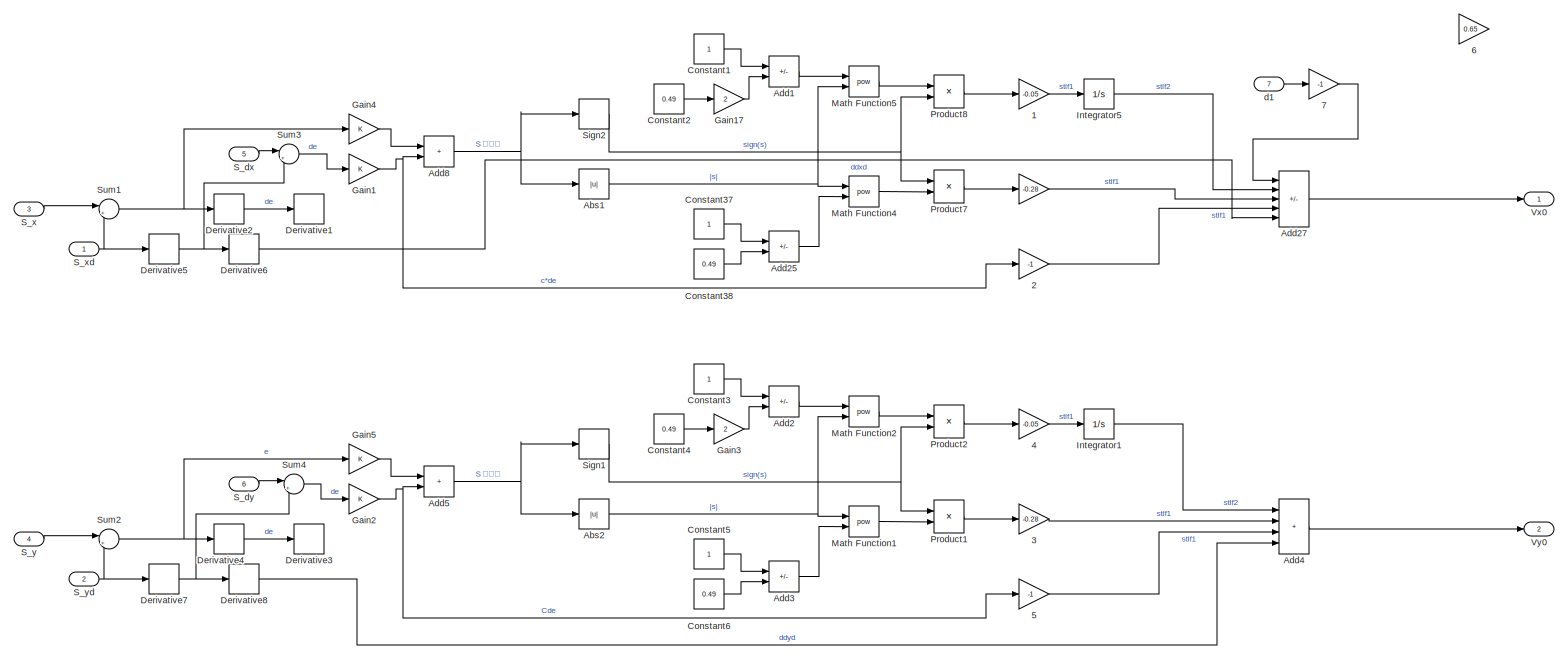
[diagram: 编队协同控制器2 - part 1/1, most of the canvas]
BLOCK [SubSystem] 编队协同控制器2
  Ports = [7, 2]
  RequestExecContextInheritance = off
BLOCK [Gain] 编队协同控制器2/  
  Gain = -0.28
BLOCK [Gain] 编队协同控制器2/  1
  Gain = -0.05
BLOCK [Gain] 编队协同控制器2/  2
  Gain = -1
BLOCK [Gain] 编队协同控制器2/  3
  Gain = -0.28
BLOCK [Gain] 编队协同控制器2/  4
  Gain = -0.05
BLOCK [Gain] 编队协同控制器2/  5
  Gain = -1
BLOCK [Gain] 编队协同控制器2/  6
  Gain = 0.65
BLOCK [Gain] 编队协同控制器2/  7
  Gain = -1
BLOCK [Abs] 编队协同控制器2/Abs1
  SaturateOnIntegerOverflow = off
BLOCK [Abs] 编队协同控制器2/Abs2
  SaturateOnIntegerOverflow = off
BLOCK [Sum] 编队协同控制器2/Add1
  IconShape = rectangular
  Inputs = +-
  Ports = [2, 1]
BLOCK [Sum] 编队协同控制器2/Add2
  IconShape = rectangular
  Inputs = +-
  Ports = [2, 1]
BLOCK [Sum] 编队协同控制器2/Add25
  IconShape = rectangular
  Inputs = +-
  Ports = [2, 1]
BLOCK [Sum] 编队协同控制器2/Add27
  IconShape = rectangular
  Inputs = -++++
  Ports = [5, 1]
BLOCK [Sum] 编队协同控制器2/Add3
  IconShape = rectangular
  Inputs = +-
  Ports = [2, 1]
BLOCK [Sum] 编队协同控制器2/Add4
  IconShape = rectangular
  Inputs = ++++
  Ports = [4, 1]
BLOCK [Sum] 编队协同控制器2/Add5
  IconShape = rectangular
  Ports = [2, 1]
BLOCK [Sum] 编队协同控制器2/Add8
  IconShape = rectangular
  Ports = [2, 1]
BLOCK [Constant] 编队协同控制器2/Constant1
BLOCK [Constant] 编队协同控制器2/Constant2
  Value = 0.49
BLOCK [Constant] 编队协同控制器2/Constant3
BLOCK [Constant] 编队协同控制器2/Constant37
BLOCK [Constant] 编队协同控制器2/Constant38
  Value = 0.49
BLOCK [Constant] 编队协同控制器2/Constant4
  Value = 0.49
BLOCK [Constant] 编队协同控制器2/Constant5
BLOCK [Constant] 编队协同控制器2/Constant6
  Value = 0.49
BLOCK [Derivative] 编队协同控制器2/Derivative1
BLOCK [Derivative] 编队协同控制器2/Derivative2
BLOCK [Derivative] 编队协同控制器2/Derivative3
BLOCK [Derivative] 编队协同控制器2/Derivative4
BLOCK [Derivative] 编队协同控制器2/Derivative5
BLOCK [Derivative] 编队协同控制器2/Derivative6
BLOCK [Derivative] 编队协同控制器2/Derivative7
BLOCK [Derivative] 编队协同控制器2/Derivative8
BLOCK [Gain] 编队协同控制器2/Gain1
BLOCK [Gain] 编队协同控制器2/Gain17
  Gain = 2
BLOCK [Gain] 编队协同控制器2/Gain2
BLOCK [Gain] 编队协同控制器2/Gain3
  Gain = 2
BLOCK [Gain] 编队协同控制器2/Gain4
BLOCK [Gain] 编队协同控制器2/Gain5
BLOCK [Integrator] 编队协同控制器2/Integrator1
  Ports = [1, 1]
BLOCK [Integrator] 编队协同控制器2/Integrator5
  Ports = [1, 1]
BLOCK [Math] 编队协同控制器2/Math Function1
  Operator = pow
  Ports = [2, 1]
  SignedPower = on
BLOCK [Math] 编队协同控制器2/Math Function2
  Operator = pow
  Ports = [2, 1]
  SignedPower = on
BLOCK [Math] 编队协同控制器2/Math Function4
  Operator = pow
  Ports = [2, 1]
  SignedPower = on
BLOCK [Math] 编队协同控制器2/Math Function5
  Operator = pow
  Ports = [2, 1]
  SignedPower = on
BLOCK [Product] 编队协同控制器2/Product1
  Ports = [2, 1]
BLOCK [Product] 编队协同控制器2/Product2
  Ports = [2, 1]
BLOCK [Product] 编队协同控制器2/Product7
  Ports = [2, 1]
BLOCK [Product] 编队协同控制器2/Product8
  Ports = [2, 1]
BLOCK [Inport] 编队协同控制器2/S_dx
  Port = 5
BLOCK [Inport] 编队协同控制器2/S_dy
  Port = 6
BLOCK [Inport] 编队协同控制器2/S_x
  Port = 3
BLOCK [Inport] 编队协同控制器2/S_xd
BLOCK [Inport] 编队协同控制器2/S_y
  Port = 4
BLOCK [Inport] 编队协同控制器2/S_yd
  Port = 2
BLOCK [Signum] 编队协同控制器2/Sign1
BLOCK [Signum] 编队协同控制器2/Sign2
BLOCK [Sum] 编队协同控制器2/Sum1
  Inputs = |+-
  Ports = [2, 1]
BLOCK [Sum] 编队协同控制器2/Sum2
  Inputs = |+-
  Ports = [2, 1]
BLOCK [Sum] 编队协同控制器2/Sum3
  Inputs = |+-
  Ports = [2, 1]
BLOCK [Sum] 编队协同控制器2/Sum4
  Inputs = |+-
  Ports = [2, 1]
BLOCK [Outport] 编队协同控制器2/Vx0
BLOCK [Outport] 编队协同控制器2/Vy0
  Port = 2
BLOCK [Inport] 编队协同控制器2/d1
  Port = 7
BLOCK [SubSystem] 计算期望fan与theta
  Ports = [5, 2]
  RequestExecContextInheritance = off
BLOCK [Trigonometry] 计算期望fan与theta/Asin
  Operator = asin
  Ports = [1, 1]
BLOCK [Trigonometry] 计算期望fan与theta/Asin1
  Operator = asin
  Ports = [1, 1]
BLOCK [Trigonometry] 计算期望fan与theta/Cos
  Operator = cos
  Ports = [1, 1]
BLOCK [Trigonometry] 计算期望fan与theta/Cos1
  Operator = cos
  Ports = [1, 1]
BLOCK [Product] 计算期望fan与theta/Divide
  Inputs = */
  Ports = [2, 1]
BLOCK [Product] 计算期望fan与theta/Divide1
  Inputs = */
  Ports = [2, 1]
BLOCK [Gain] 计算期望fan与theta/Gain
  Gain = m
BLOCK [Gain] 计算期望fan与theta/Gain1
  Gain = m
BLOCK [Product] 计算期望fan与theta/Product
  Ports = [2, 1]
BLOCK [Product] 计算期望fan与theta/Product1
  Ports = [2, 1]
BLOCK [Product] 计算期望fan与theta/Product2
  Ports = [2, 1]
BLOCK [Product] 计算期望fan与theta/Product3
  Ports = [2, 1]
BLOCK [Product] 计算期望fan与theta/Product4
  Ports = [2, 1]
BLOCK [Saturate] 计算期望fan与theta/Saturation
  LowerLimit = -0.9
  UpperLimit = 0.9
BLOCK [Saturate] 计算期望fan与theta/Saturation1
  LowerLimit = -0.9
  UpperLimit = 0.9
BLOCK [Scope] 计算期望fan与theta/Scope
  Floating = off
  NumInputPorts = 1
  Ports = [1]
  ScopeSpecificationString = Simulink.scopes.TimeScopeBlockCfg('CurrentConfiguration', extmgr.ConfigurationSet(extmgr.Configuration('Core','General UI',true),extmgr.Configuration('Core','Source UI',true),extmgr.Configuration('Sources','WiredSimulink',true,'DataLoggingVariableName','ScopeData6'),extmgr.Configuration('Visuals','Time Domain',true,'SerializedDisplays',{struct('MinYLimReal','-0.15728','MaxYLimReal','0.06613','YLab...<+1369ch>  <repeated x3 — deduplicated; at blocks: Scope>
BLOCK [Trigonometry] 计算期望fan与theta/Sin
  Ports = [1, 1]
BLOCK [Sum] 计算期望fan与theta/Sum
  Inputs = |+-
  Ports = [2, 1]
BLOCK [Sum] 计算期望fan与theta/Sum1
  Inputs = ++|
  Ports = [2, 1]
BLOCK [Inport] 计算期望fan与theta/ddx
  Port = 2
BLOCK [Inport] 计算期望fan与theta/ddy
  Port = 3
BLOCK [Inport] 计算期望fan与theta/fan
  Port = 5
BLOCK [Outport] 计算期望fan与theta/fan0
BLOCK [Inport] 计算期望fan与theta/psi
  Port = 4
BLOCK [Outport] 计算期望fan与theta/theta0
  Port = 2
BLOCK [Inport] 计算期望fan与theta/u1
BLOCK [SubSystem] 计算期望fan与theta1
  Ports = [5, 2]
  RequestExecContextInheritance = off
BLOCK [Trigonometry] 计算期望fan与theta1/Asin
  Operator = asin
  Ports = [1, 1]
BLOCK [Trigonometry] 计算期望fan与theta1/Asin1
  Operator = asin
  Ports = [1, 1]
BLOCK [Trigonometry] 计算期望fan与theta1/Cos
  Operator = cos
  Ports = [1, 1]
BLOCK [Trigonometry] 计算期望fan与theta1/Cos1
  Operator = cos
  Ports = [1, 1]
BLOCK [Product] 计算期望fan与theta1/Divide
  Inputs = */
  Ports = [2, 1]
BLOCK [Product] 计算期望fan与theta1/Divide1
  Inputs = */
  Ports = [2, 1]
BLOCK [Gain] 计算期望fan与theta1/Gain
  Gain = m
BLOCK [Gain] 计算期望fan与theta1/Gain1
  Gain = m
BLOCK [Product] 计算期望fan与theta1/Product
  Ports = [2, 1]
BLOCK [Product] 计算期望fan与theta1/Product1
  Ports = [2, 1]
BLOCK [Product] 计算期望fan与theta1/Product2
  Ports = [2, 1]
BLOCK [Product] 计算期望fan与theta1/Product3
  Ports = [2, 1]
BLOCK [Product] 计算期望fan与theta1/Product4
  Ports = [2, 1]
BLOCK [Saturate] 计算期望fan与theta1/Saturation
  LowerLimit = -0.9
  UpperLimit = 0.9
BLOCK [Saturate] 计算期望fan与theta1/Saturation1
  LowerLimit = -0.9
  UpperLimit = 0.9
BLOCK [Trigonometry] 计算期望fan与theta1/Sin
  Ports = [1, 1]
BLOCK [Sum] 计算期望fan与theta1/Sum
  Inputs = |+-
  Ports = [2, 1]
BLOCK [Sum] 计算期望fan与theta1/Sum1
  Inputs = ++|
  Ports = [2, 1]
BLOCK [Inport] 计算期望fan与theta1/ddx
  Port = 2
BLOCK [Inport] 计算期望fan与theta1/ddy
  Port = 3
BLOCK [Inport] 计算期望fan与theta1/fan
  Port = 5
BLOCK [Outport] 计算期望fan与theta1/fan0
BLOCK [Inport] 计算期望fan与theta1/psi
  Port = 4
BLOCK [Outport] 计算期望fan与theta1/theta0
  Port = 2
BLOCK [Inport] 计算期望fan与theta1/u1
BLOCK [SubSystem] 计算期望fan与theta2
  Ports = [5, 2]
  RequestExecContextInheritance = off
BLOCK [Trigonometry] 计算期望fan与theta2/Asin
  Operator = asin
  Ports = [1, 1]
BLOCK [Trigonometry] 计算期望fan与theta2/Asin1
  Operator = asin
  Ports = [1, 1]
BLOCK [Trigonometry] 计算期望fan与theta2/Cos
  Operator = cos
  Ports = [1, 1]
BLOCK [Trigonometry] 计算期望fan与theta2/Cos1
  Operator = cos
  Ports = [1, 1]
BLOCK [Product] 计算期望fan与theta2/Divide
  Inputs = */
  Ports = [2, 1]
BLOCK [Product] 计算期望fan与theta2/Divide1
  Inputs = */
  Ports = [2, 1]
BLOCK [Gain] 计算期望fan与theta2/Gain
  Gain = m
BLOCK [Gain] 计算期望fan与theta2/Gain1
  Gain = m
BLOCK [Product] 计算期望fan与theta2/Product
  Ports = [2, 1]
BLOCK [Product] 计算期望fan与theta2/Product1
  Ports = [2, 1]
BLOCK [Product] 计算期望fan与theta2/Product2
  Ports = [2, 1]
BLOCK [Product] 计算期望fan与theta2/Product3
  Ports = [2, 1]
BLOCK [Product] 计算期望fan与theta2/Product4
  Ports = [2, 1]
BLOCK [Saturate] 计算期望fan与theta2/Saturation
  LowerLimit = -0.9
  UpperLimit = 0.9
BLOCK [Saturate] 计算期望fan与theta2/Saturation1
  LowerLimit = -0.9
  UpperLimit = 0.9
BLOCK [Scope] 计算期望fan与theta2/Scope
  Floating = off
  NumInputPorts = 1
  Ports = [1]
BLOCK [Trigonometry] 计算期望fan与theta2/Sin
  Ports = [1, 1]
BLOCK [Sum] 计算期望fan与theta2/Sum
  Inputs = |+-
  Ports = [2, 1]
BLOCK [Sum] 计算期望fan与theta2/Sum1
  Inputs = ++|
  Ports = [2, 1]
BLOCK [Inport] 计算期望fan与theta2/ddx
  Port = 2
BLOCK [Inport] 计算期望fan与theta2/ddy
  Port = 3
BLOCK [Inport] 计算期望fan与theta2/fan
  Port = 5
BLOCK [Outport] 计算期望fan与theta2/fan0
BLOCK [Inport] 计算期望fan与theta2/psi
  Port = 4
BLOCK [Outport] 计算期望fan与theta2/theta0
  Port = 2
BLOCK [Inport] 计算期望fan与theta2/u1
BLOCK [SubSystem] 计算期望fan与theta3
  Ports = [5, 2]
  RequestExecContextInheritance = off
BLOCK [Trigonometry] 计算期望fan与theta3/Asin
  Operator = asin
  Ports = [1, 1]
BLOCK [Trigonometry] 计算期望fan与theta3/Asin1
  Operator = asin
  Ports = [1, 1]
BLOCK [Trigonometry] 计算期望fan与theta3/Cos
  Operator = cos
  Ports = [1, 1]
BLOCK [Trigonometry] 计算期望fan与theta3/Cos1
  Operator = cos
  Ports = [1, 1]
BLOCK [Product] 计算期望fan与theta3/Divide
  Inputs = */
  Ports = [2, 1]
BLOCK [Product] 计算期望fan与theta3/Divide1
  Inputs = */
  Ports = [2, 1]
BLOCK [Gain] 计算期望fan与theta3/Gain
  Gain = m
BLOCK [Gain] 计算期望fan与theta3/Gain1
  Gain = m
BLOCK [Product] 计算期望fan与theta3/Product
  Ports = [2, 1]
BLOCK [Product] 计算期望fan与theta3/Product1
  Ports = [2, 1]
BLOCK [Product] 计算期望fan与theta3/Product2
  Ports = [2, 1]
BLOCK [Product] 计算期望fan与theta3/Product3
  Ports = [2, 1]
BLOCK [Product] 计算期望fan与theta3/Product4
  Ports = [2, 1]
BLOCK [Saturate] 计算期望fan与theta3/Saturation
  LowerLimit = -0.9
  UpperLimit = 0.9
BLOCK [Saturate] 计算期望fan与theta3/Saturation1
  LowerLimit = -0.9
  UpperLimit = 0.9
BLOCK [Trigonometry] 计算期望fan与theta3/Sin
  Ports = [1, 1]
BLOCK [Sum] 计算期望fan与theta3/Sum
  Inputs = |+-
  Ports = [2, 1]
BLOCK [Sum] 计算期望fan与theta3/Sum1
  Inputs = ++|
  Ports = [2, 1]
BLOCK [Inport] 计算期望fan与theta3/ddx
  Port = 2
BLOCK [Inport] 计算期望fan与theta3/ddy
  Port = 3
BLOCK [Inport] 计算期望fan与theta3/fan
  Port = 5
BLOCK [Outport] 计算期望fan与theta3/fan0
BLOCK [Inport] 计算期望fan与theta3/psi
  Port = 4
BLOCK [Outport] 计算期望fan与theta3/theta0
  Port = 2
BLOCK [Inport] 计算期望fan与theta3/u1
BLOCK [SubSystem] 计算期望fan与theta4
  Ports = [5, 2]
  RequestExecContextInheritance = off
BLOCK [Trigonometry] 计算期望fan与theta4/Asin
  Operator = asin
  Ports = [1, 1]
BLOCK [Trigonometry] 计算期望fan与theta4/Asin1
  Operator = asin
  Ports = [1, 1]
BLOCK [Trigonometry] 计算期望fan与theta4/Cos
  Operator = cos
  Ports = [1, 1]
BLOCK [Trigonometry] 计算期望fan与theta4/Cos1
  Operator = cos
  Ports = [1, 1]
BLOCK [Product] 计算期望fan与theta4/Divide
  Inputs = */
  Ports = [2, 1]
BLOCK [Product] 计算期望fan与theta4/Divide1
  Inputs = */
  Ports = [2, 1]
BLOCK [Gain] 计算期望fan与theta4/Gain
  Gain = m
BLOCK [Gain] 计算期望fan与theta4/Gain1
  Gain = m
BLOCK [Product] 计算期望fan与theta4/Product
  Ports = [2, 1]
BLOCK [Product] 计算期望fan与theta4/Product1
  Ports = [2, 1]
BLOCK [Product] 计算期望fan与theta4/Product2
  Ports = [2, 1]
BLOCK [Product] 计算期望fan与theta4/Product3
  Ports = [2, 1]
BLOCK [Product] 计算期望fan与theta4/Product4
  Ports = [2, 1]
BLOCK [Saturate] 计算期望fan与theta4/Saturation
  LowerLimit = -0.9
  UpperLimit = 0.9
BLOCK [Saturate] 计算期望fan与theta4/Saturation1
  LowerLimit = -0.9
  UpperLimit = 0.9
BLOCK [Scope] 计算期望fan与theta4/Scope
  Floating = off
  NumInputPorts = 1
  Ports = [1]
BLOCK [Trigonometry] 计算期望fan与theta4/Sin
  Ports = [1, 1]
BLOCK [Sum] 计算期望fan与theta4/Sum
  Inputs = |+-
  Ports = [2, 1]
BLOCK [Sum] 计算期望fan与theta4/Sum1
  Inputs = ++|
  Ports = [2, 1]
BLOCK [Inport] 计算期望fan与theta4/ddx
  Port = 2
BLOCK [Inport] 计算期望fan与theta4/ddy
  Port = 3
BLOCK [Inport] 计算期望fan与theta4/fan
  Port = 5
BLOCK [Outport] 计算期望fan与theta4/fan0
BLOCK [Inport] 计算期望fan与theta4/psi
  Port = 4
BLOCK [Outport] 计算期望fan与theta4/theta0
  Port = 2
BLOCK [Inport] 计算期望fan与theta4/u1
BLOCK [SubSystem] 计算期望fan与theta5
  Ports = [5, 2]
  RequestExecContextInheritance = off
BLOCK [Trigonometry] 计算期望fan与theta5/Asin
  Operator = asin
  Ports = [1, 1]
BLOCK [Trigonometry] 计算期望fan与theta5/Asin1
  Operator = asin
  Ports = [1, 1]
BLOCK [Trigonometry] 计算期望fan与theta5/Cos
  Operator = cos
  Ports = [1, 1]
BLOCK [Trigonometry] 计算期望fan与theta5/Cos1
  Operator = cos
  Ports = [1, 1]
BLOCK [Product] 计算期望fan与theta5/Divide
  Inputs = */
  Ports = [2, 1]
BLOCK [Product] 计算期望fan与theta5/Divide1
  Inputs = */
  Ports = [2, 1]
BLOCK [Gain] 计算期望fan与theta5/Gain
  Gain = m
BLOCK [Gain] 计算期望fan与theta5/Gain1
  Gain = m
BLOCK [Product] 计算期望fan与theta5/Product
  Ports = [2, 1]
BLOCK [Product] 计算期望fan与theta5/Product1
  Ports = [2, 1]
BLOCK [Product] 计算期望fan与theta5/Product2
  Ports = [2, 1]
BLOCK [Product] 计算期望fan与theta5/Product3
  Ports = [2, 1]
BLOCK [Product] 计算期望fan与theta5/Product4
  Ports = [2, 1]
BLOCK [Saturate] 计算期望fan与theta5/Saturation
  LowerLimit = -0.9
  UpperLimit = 0.9
BLOCK [Saturate] 计算期望fan与theta5/Saturation1
  LowerLimit = -0.9
  UpperLimit = 0.9
BLOCK [Trigonometry] 计算期望fan与theta5/Sin
  Ports = [1, 1]
BLOCK [Sum] 计算期望fan与theta5/Sum
  Inputs = |+-
  Ports = [2, 1]
BLOCK [Sum] 计算期望fan与theta5/Sum1
  Inputs = ++|
  Ports = [2, 1]
BLOCK [Inport] 计算期望fan与theta5/ddx
  Port = 2
BLOCK [Inport] 计算期望fan与theta5/ddy
  Port = 3
BLOCK [Inport] 计算期望fan与theta5/fan
  Port = 5
BLOCK [Outport] 计算期望fan与theta5/fan0
BLOCK [Inport] 计算期望fan与theta5/psi
  Port = 4
BLOCK [Outport] 计算期望fan与theta5/theta0
  Port = 2
BLOCK [Inport] 计算期望fan与theta5/u1
BLOCK [SubSystem] 跟随者Quadrotor模型1
  Ports = [4, 9]
  RequestExecContextInheritance = off
BLOCK [From] 跟随者Quadrotor模型1/From
  GotoTag = dfan
BLOCK [From] 跟随者Quadrotor模型1/From1
  GotoTag = dfan
BLOCK [From] 跟随者Quadrotor模型1/From2
  GotoTag = dtheta
BLOCK [From] 跟随者Quadrotor模型1/From3
  GotoTag = dtheta
BLOCK [From] 跟随者Quadrotor模型1/From4
  GotoTag = dpsi
BLOCK [From] 跟随者Quadrotor模型1/From5
  GotoTag = dpsi
BLOCK [From] 跟随者Quadrotor模型1/From6
  GotoTag = fan
BLOCK [From] 跟随者Quadrotor模型1/From7
  GotoTag = theta
BLOCK [From] 跟随者Quadrotor模型1/From8
  GotoTag = psi
BLOCK [Goto] 跟随者Quadrotor模型1/Goto
  GotoTag = dfan
BLOCK [Goto] 跟随者Quadrotor模型1/Goto1
  GotoTag = dtheta
BLOCK [Goto] 跟随者Quadrotor模型1/Goto2
  GotoTag = dpsi
BLOCK [Goto] 跟随者Quadrotor模型1/Goto3
  GotoTag = fan
BLOCK [Goto] 跟随者Quadrotor模型1/Goto4
  GotoTag = theta
BLOCK [Goto] 跟随者Quadrotor模型1/Goto5
  GotoTag = psi
BLOCK [Saturate] 跟随者Quadrotor模型1/Saturation
  LowerLimit = -inf
  UpperLimit = inf
BLOCK [Saturate] 跟随者Quadrotor模型1/Saturation1
  LowerLimit = -pi/2
  UpperLimit = pi/2
BLOCK [Saturate] 跟随者Quadrotor模型1/Saturation2
  LowerLimit = -pi
  UpperLimit = pi
BLOCK [SubSystem] 跟随者Quadrotor模型1/Sub_xyz
  Ports = [4, 9]
  RequestExecContextInheritance = off
BLOCK [Sum] 跟随者Quadrotor模型1/Sub_xyz/Add8
  IconShape = rectangular
  Inputs = -+
  Ports = [2, 1]
BLOCK [Clock] 跟随者Quadrotor模型1/Sub_xyz/Clock1
BLOCK [Constant] 跟随者Quadrotor模型1/Sub_xyz/Constant
  Value = g
BLOCK [Constant] 跟随者Quadrotor模型1/Sub_xyz/Constant1
  Value = -1
BLOCK [Constant] 跟随者Quadrotor模型1/Sub_xyz/Constant18
  Value = 0.025
BLOCK [Constant] 跟随者Quadrotor模型1/Sub_xyz/Constant19
  Value = 0.025
BLOCK [Constant] 跟随者Quadrotor模型1/Sub_xyz/Constant20
  Value = 0.025
BLOCK [Constant] 跟随者Quadrotor模型1/Sub_xyz/Constant6
BLOCK [Trigonometry] 跟随者Quadrotor模型1/Sub_xyz/Cos
  Operator = cos
  Ports = [1, 1]
BLOCK [Trigonometry] 跟随者Quadrotor模型1/Sub_xyz/Cos1
  Operator = cos
  Ports = [1, 1]
BLOCK [Trigonometry] 跟随者Quadrotor模型1/Sub_xyz/Cos2
  Operator = cos
  Ports = [1, 1]
BLOCK [From] 跟随者Quadrotor模型1/Sub_xyz/From
  GotoTag = d2
BLOCK [Gain] 跟随者Quadrotor模型1/Sub_xyz/Gain
  Gain = 1/m
BLOCK [Gain] 跟随者Quadrotor模型1/Sub_xyz/Gain4
  Gain = 0.2
BLOCK [Goto] 跟随者Quadrotor模型1/Sub_xyz/Goto12
  GotoTag = d2
BLOCK [Integrator] 跟随者Quadrotor模型1/Sub_xyz/Integrator
  Ports = [1, 1]
BLOCK [Integrator] 跟随者Quadrotor模型1/Sub_xyz/Integrator1
  Ports = [1, 1]
BLOCK [Integrator] 跟随者Quadrotor模型1/Sub_xyz/Integrator2
  Ports = [1, 1]
BLOCK [Integrator] 跟随者Quadrotor模型1/Sub_xyz/Integrator3
  Ports = [1, 1]
BLOCK [Integrator] 跟随者Quadrotor模型1/Sub_xyz/Integrator4
  Ports = [1, 1]
BLOCK [Integrator] 跟随者Quadrotor模型1/Sub_xyz/Integrator5
  Ports = [1, 1]
BLOCK [Product] 跟随者Quadrotor模型1/Sub_xyz/Product
  Ports = [2, 1]
BLOCK [Product] 跟随者Quadrotor模型1/Sub_xyz/Product1
  Inputs = 3
  Ports = [3, 1]
BLOCK [Product] 跟随者Quadrotor模型1/Sub_xyz/Product2
  Inputs = 3
  Ports = [3, 1]
BLOCK [Product] 跟随者Quadrotor模型1/Sub_xyz/Product3
  Ports = [2, 1]
BLOCK [Product] 跟随者Quadrotor模型1/Sub_xyz/Product4
  Ports = [2, 1]
BLOCK [Product] 跟随者Quadrotor模型1/Sub_xyz/Product5
  Ports = [2, 1]
BLOCK [Product] 跟随者Quadrotor模型1/Sub_xyz/Product6
  Ports = [2, 1]
BLOCK [Product] 跟随者Quadrotor模型1/Sub_xyz/Product7
  Ports = [2, 1]
BLOCK [Scope] 跟随者Quadrotor模型1/Sub_xyz/Scope1
  Floating = off
  NumInputPorts = 1
  Ports = [1]
  ScopeSpecificationString = Simulink.scopes.TimeScopeBlockCfg('CurrentConfiguration', extmgr.ConfigurationSet(extmgr.Configuration('Core','General UI',true),extmgr.Configuration('Core','Source UI',true),extmgr.Configuration('Sources','WiredSimulink',true,'DataLoggingVariableName','ScopeData28'),extmgr.Configuration('Visuals','Time Domain',true,'SerializedDisplays',{struct('MinYLimReal','-1.3','MaxYLimReal','1.2','YLabelReal'...<+1542ch>
BLOCK [Trigonometry] 跟随者Quadrotor模型1/Sub_xyz/Sin
  Ports = [1, 1]
BLOCK [Trigonometry] 跟随者Quadrotor模型1/Sub_xyz/Sin1
  Ports = [1, 1]
BLOCK [Trigonometry] 跟随者Quadrotor模型1/Sub_xyz/Sin2
  Ports = [1, 1]
BLOCK [Sin] 跟随者Quadrotor模型1/Sub_xyz/Sine Wave6
  Amplitude = 0.5
  Frequency = 0.5
  Ports = [0, 1]
  SampleTime = 0
BLOCK [Sum] 跟随者Quadrotor模型1/Sub_xyz/Sum
  Inputs = +|+
  Ports = [2, 1]
BLOCK [Sum] 跟随者Quadrotor模型1/Sub_xyz/Sum1
  Inputs = +|-
  Ports = [2, 1]
BLOCK [Sum] 跟随者Quadrotor模型1/Sub_xyz/Sum2
  Inputs = |+-
  Ports = [2, 1]
BLOCK [Sum] 跟随者Quadrotor模型1/Sub_xyz/Sum3
  Inputs = |++
  Ports = [2, 1]
BLOCK [Sum] 跟随者Quadrotor模型1/Sub_xyz/Sum4
  Inputs = |++
  Ports = [2, 1]
BLOCK [Sum] 跟随者Quadrotor模型1/Sub_xyz/Sum5
  Inputs = |++
  Ports = [2, 1]
BLOCK [Switch] 跟随者Quadrotor模型1/Sub_xyz/Switch3
  Criteria = u2 > Threshold
  InputSameDT = off
  SaturateOnIntegerOverflow = off
  Threshold = 50
BLOCK [Switch] 跟随者Quadrotor模型1/Sub_xyz/Switch4
  Criteria = u2 > Threshold
  InputSameDT = off
  SaturateOnIntegerOverflow = off
  Threshold = 150
BLOCK [ToWorkspace] 跟随者Quadrotor模型1/Sub_xyz/To Workspace12
  FixptAsFi = on
  MaxDataPoints = inf
  Ports = [1]
  SampleTime = -1
  VariableName = t1
BLOCK [Outport] 跟随者Quadrotor模型1/Sub_xyz/ddx
  Port = 7
BLOCK [Outport] 跟随者Quadrotor模型1/Sub_xyz/ddy
  Port = 8
BLOCK [Outport] 跟随者Quadrotor模型1/Sub_xyz/ddz
  Port = 9
BLOCK [Outport] 跟随者Quadrotor模型1/Sub_xyz/dx
  Port = 4
BLOCK [Outport] 跟随者Quadrotor模型1/Sub_xyz/dy
  Port = 5
BLOCK [Outport] 跟随者Quadrotor模型1/Sub_xyz/dz
  Port = 6
BLOCK [Inport] 跟随者Quadrotor模型1/Sub_xyz/fan
  Port = 2
BLOCK [Inport] 跟随者Quadrotor模型1/Sub_xyz/psi
  Port = 4
BLOCK [Inport] 跟随者Quadrotor模型1/Sub_xyz/theta
  Port = 3
BLOCK [Inport] 跟随者Quadrotor模型1/Sub_xyz/u1
BLOCK [Outport] 跟随者Quadrotor模型1/Sub_xyz/x
BLOCK [Outport] 跟随者Quadrotor模型1/Sub_xyz/y
  Port = 2
BLOCK [Outport] 跟随者Quadrotor模型1/Sub_xyz/z
  Port = 3
BLOCK [Outport] 跟随者Quadrotor模型1/Vx
  Port = 7
BLOCK [Outport] 跟随者Quadrotor模型1/Vy
  Port = 8
BLOCK [Outport] 跟随者Quadrotor模型1/Vz
  Port = 9
BLOCK [Outport] 跟随者Quadrotor模型1/fan
  Port = 4
BLOCK [Outport] 跟随者Quadrotor模型1/psi
  Port = 6
BLOCK [SubSystem] 跟随者Quadrotor模型1/sub_fan
  Ports = [3, 2]
  RequestExecContextInheritance = off
BLOCK [Gain] 跟随者Quadrotor模型1/sub_fan/Gain
  Gain = (Iyy-Izz)/Ixx
BLOCK [Gain] 跟随者Quadrotor模型1/sub_fan/Gain1
  Gain = 1/Ixx
BLOCK [Integrator] 跟随者Quadrotor模型1/sub_fan/Integrator
  Ports = [1, 1]
BLOCK [Integrator] 跟随者Quadrotor模型1/sub_fan/Integrator1
  Ports = [1, 1]
BLOCK [Product] 跟随者Quadrotor模型1/sub_fan/Product
  Ports = [2, 1]
BLOCK [Sum] 跟随者Quadrotor模型1/sub_fan/Sum
  Inputs = ++|
  Ports = [2, 1]
BLOCK [Outport] 跟随者Quadrotor模型1/sub_fan/dfan
  Port = 2
BLOCK [Inport] 跟随者Quadrotor模型1/sub_fan/dpsi
  Port = 3
BLOCK [Inport] 跟随者Quadrotor模型1/sub_fan/dtheta
  Port = 2
BLOCK [Outport] 跟随者Quadrotor模型1/sub_fan/fan
BLOCK [Inport] 跟随者Quadrotor模型1/sub_fan/u2
BLOCK [SubSystem] 跟随者Quadrotor模型1/sub_psi
  Ports = [3, 2]
  RequestExecContextInheritance = off
BLOCK [Gain] 跟随者Quadrotor模型1/sub_psi/Gain
  Gain = (Ixx-Iyy)/Izz
BLOCK [Gain] 跟随者Quadrotor模型1/sub_psi/Gain1
  Gain = 1/Izz
BLOCK [Integrator] 跟随者Quadrotor模型1/sub_psi/Integrator
  Ports = [1, 1]
BLOCK [Integrator] 跟随者Quadrotor模型1/sub_psi/Integrator1
  Ports = [1, 1]
BLOCK [Product] 跟随者Quadrotor模型1/sub_psi/Product
  Ports = [2, 1]
BLOCK [Sum] 跟随者Quadrotor模型1/sub_psi/Sum
  Inputs = ++|
  Ports = [2, 1]
BLOCK [Inport] 跟随者Quadrotor模型1/sub_psi/dfan
  Port = 2
BLOCK [Outport] 跟随者Quadrotor模型1/sub_psi/dpsi
  Port = 2
BLOCK [Inport] 跟随者Quadrotor模型1/sub_psi/dtheta
  Port = 3
BLOCK [Outport] 跟随者Quadrotor模型1/sub_psi/psi
BLOCK [Inport] 跟随者Quadrotor模型1/sub_psi/u4
BLOCK [SubSystem] 跟随者Quadrotor模型1/sub_theta
  Ports = [3, 2]
  RequestExecContextInheritance = off
BLOCK [Gain] 跟随者Quadrotor模型1/sub_theta/Gain
  Gain = (Izz-Ixx)/Iyy
BLOCK [Gain] 跟随者Quadrotor模型1/sub_theta/Gain1
  Gain = 1/Iyy
BLOCK [Integrator] 跟随者Quadrotor模型1/sub_theta/Integrator
  Ports = [1, 1]
BLOCK [Integrator] 跟随者Quadrotor模型1/sub_theta/Integrator1
  Ports = [1, 1]
BLOCK [Product] 跟随者Quadrotor模型1/sub_theta/Product
  Ports = [2, 1]
BLOCK [Sum] 跟随者Quadrotor模型1/sub_theta/Sum
  Inputs = ++|
  Ports = [2, 1]
BLOCK [Inport] 跟随者Quadrotor模型1/sub_theta/dfan
  Port = 2
BLOCK [Inport] 跟随者Quadrotor模型1/sub_theta/dpsi
  Port = 3
BLOCK [Outport] 跟随者Quadrotor模型1/sub_theta/dtheta
  Port = 2
BLOCK [Outport] 跟随者Quadrotor模型1/sub_theta/theta
BLOCK [Inport] 跟随者Quadrotor模型1/sub_theta/u3
BLOCK [Outport] 跟随者Quadrotor模型1/theta
  Port = 5
BLOCK [Inport] 跟随者Quadrotor模型1/u1
BLOCK [Inport] 跟随者Quadrotor模型1/u2
  Port = 2
BLOCK [Inport] 跟随者Quadrotor模型1/u3
  Port = 3
BLOCK [Inport] 跟随者Quadrotor模型1/u4
  Port = 4
BLOCK [Outport] 跟随者Quadrotor模型1/x
BLOCK [Outport] 跟随者Quadrotor模型1/y
  Port = 2
BLOCK [Outport] 跟随者Quadrotor模型1/z
  Port = 3
BLOCK [SubSystem] 跟随者Quadrotor模型2
  Ports = [4, 9]
  RequestExecContextInheritance = off
BLOCK [From] 跟随者Quadrotor模型2/From
  GotoTag = dfan
BLOCK [From] 跟随者Quadrotor模型2/From1
  GotoTag = dfan
BLOCK [From] 跟随者Quadrotor模型2/From2
  GotoTag = dtheta
BLOCK [From] 跟随者Quadrotor模型2/From3
  GotoTag = dtheta
BLOCK [From] 跟随者Quadrotor模型2/From4
  GotoTag = dpsi
BLOCK [From] 跟随者Quadrotor模型2/From5
  GotoTag = dpsi
BLOCK [From] 跟随者Quadrotor模型2/From6
  GotoTag = fan
BLOCK [From] 跟随者Quadrotor模型2/From7
  GotoTag = theta
BLOCK [From] 跟随者Quadrotor模型2/From8
  GotoTag = psi
BLOCK [Goto] 跟随者Quadrotor模型2/Goto
  GotoTag = dfan
BLOCK [Goto] 跟随者Quadrotor模型2/Goto1
  GotoTag = dtheta
BLOCK [Goto] 跟随者Quadrotor模型2/Goto2
  GotoTag = dpsi
BLOCK [Goto] 跟随者Quadrotor模型2/Goto3
  GotoTag = fan
BLOCK [Goto] 跟随者Quadrotor模型2/Goto4
  GotoTag = theta
BLOCK [Goto] 跟随者Quadrotor模型2/Goto5
  GotoTag = psi
BLOCK [Saturate] 跟随者Quadrotor模型2/Saturation
  LowerLimit = -inf
  UpperLimit = inf
BLOCK [Saturate] 跟随者Quadrotor模型2/Saturation1
  LowerLimit = -pi/2
  UpperLimit = pi/2
BLOCK [Saturate] 跟随者Quadrotor模型2/Saturation2
  LowerLimit = -pi
  UpperLimit = pi
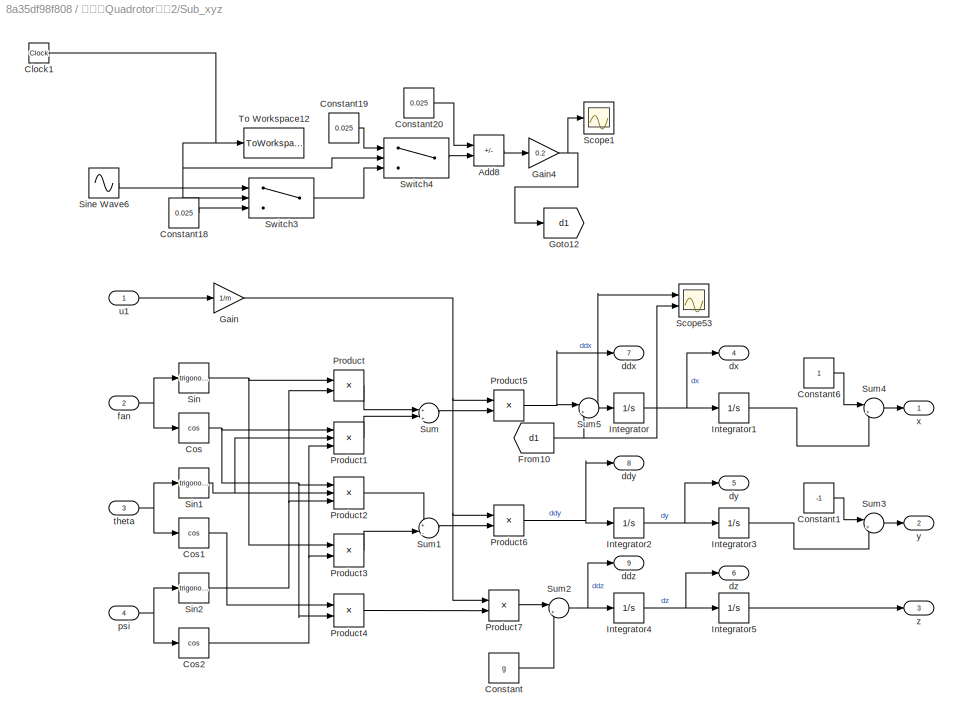
BLOCK [SubSystem] 跟随者Quadrotor模型2/Sub_xyz
  Ports = [4, 9]
  RequestExecContextInheritance = off
BLOCK [Sum] 跟随者Quadrotor模型2/Sub_xyz/Add8
  IconShape = rectangular
  Inputs = -+
  Ports = [2, 1]
BLOCK [Clock] 跟随者Quadrotor模型2/Sub_xyz/Clock1
BLOCK [Constant] 跟随者Quadrotor模型2/Sub_xyz/Constant
  Value = g
BLOCK [Constant] 跟随者Quadrotor模型2/Sub_xyz/Constant1
  Value = -1
BLOCK [Constant] 跟随者Quadrotor模型2/Sub_xyz/Constant18
  Value = 0.025
BLOCK [Constant] 跟随者Quadrotor模型2/Sub_xyz/Constant19
  Value = 0.025
BLOCK [Constant] 跟随者Quadrotor模型2/Sub_xyz/Constant20
  Value = 0.025
BLOCK [Constant] 跟随者Quadrotor模型2/Sub_xyz/Constant6
BLOCK [Trigonometry] 跟随者Quadrotor模型2/Sub_xyz/Cos
  Operator = cos
  Ports = [1, 1]
BLOCK [Trigonometry] 跟随者Quadrotor模型2/Sub_xyz/Cos1
  Operator = cos
  Ports = [1, 1]
BLOCK [Trigonometry] 跟随者Quadrotor模型2/Sub_xyz/Cos2
  Operator = cos
  Ports = [1, 1]
BLOCK [From] 跟随者Quadrotor模型2/Sub_xyz/From10
  GotoTag = d1
BLOCK [Gain] 跟随者Quadrotor模型2/Sub_xyz/Gain
  Gain = 1/m
BLOCK [Gain] 跟随者Quadrotor模型2/Sub_xyz/Gain4
  Gain = 0.2
BLOCK [Goto] 跟随者Quadrotor模型2/Sub_xyz/Goto12
  GotoTag = d1
BLOCK [Integrator] 跟随者Quadrotor模型2/Sub_xyz/Integrator
  Ports = [1, 1]
BLOCK [Integrator] 跟随者Quadrotor模型2/Sub_xyz/Integrator1
  Ports = [1, 1]
BLOCK [Integrator] 跟随者Quadrotor模型2/Sub_xyz/Integrator2
  Ports = [1, 1]
BLOCK [Integrator] 跟随者Quadrotor模型2/Sub_xyz/Integrator3
  Ports = [1, 1]
BLOCK [Integrator] 跟随者Quadrotor模型2/Sub_xyz/Integrator4
  Ports = [1, 1]
BLOCK [Integrator] 跟随者Quadrotor模型2/Sub_xyz/Integrator5
  Ports = [1, 1]
BLOCK [Product] 跟随者Quadrotor模型2/Sub_xyz/Product
  Ports = [2, 1]
BLOCK [Product] 跟随者Quadrotor模型2/Sub_xyz/Product1
  Inputs = 3
  Ports = [3, 1]
BLOCK [Product] 跟随者Quadrotor模型2/Sub_xyz/Product2
  Inputs = 3
  Ports = [3, 1]
BLOCK [Product] 跟随者Quadrotor模型2/Sub_xyz/Product3
  Ports = [2, 1]
BLOCK [Product] 跟随者Quadrotor模型2/Sub_xyz/Product4
  Ports = [2, 1]
BLOCK [Product] 跟随者Quadrotor模型2/Sub_xyz/Product5
  Ports = [2, 1]
BLOCK [Product] 跟随者Quadrotor模型2/Sub_xyz/Product6
  Ports = [2, 1]
BLOCK [Product] 跟随者Quadrotor模型2/Sub_xyz/Product7
  Ports = [2, 1]
BLOCK [Scope] 跟随者Quadrotor模型2/Sub_xyz/Scope1
  Floating = off
  NumInputPorts = 1
  Ports = [1]
  ScopeSpecificationString = Simulink.scopes.TimeScopeBlockCfg('CurrentConfiguration', extmgr.ConfigurationSet(extmgr.Configuration('Core','General UI',true),extmgr.Configuration('Core','Source UI',true),extmgr.Configuration('Sources','WiredSimulink',true,'DataLoggingVariableName','ScopeData30'),extmgr.Configuration('Visuals','Time Domain',true,'SerializedDisplays',{struct('MinYLimReal','-1.3','MaxYLimReal','1.2','YLabelReal'...<+1542ch>
BLOCK [Scope] 跟随者Quadrotor模型2/Sub_xyz/Scope53
  Floating = off
  NumInputPorts = 2
  Ports = [2]
  ScopeSpecificationString = Simulink.scopes.TimeScopeBlockCfg('CurrentConfiguration', extmgr.ConfigurationSet(extmgr.Configuration('Core','General UI',true),extmgr.Configuration('Core','Source UI',true),extmgr.Configuration('Sources','WiredSimulink',true,'DataLoggingVariableName','ScopeData29'),extmgr.Configuration('Visuals','Time Domain',true,'SerializedDisplays',{struct('MinYLimReal','-0.65','MaxYLimReal','0.6','YLabelReal...<+1553ch>
BLOCK [Trigonometry] 跟随者Quadrotor模型2/Sub_xyz/Sin
  Ports = [1, 1]
BLOCK [Trigonometry] 跟随者Quadrotor模型2/Sub_xyz/Sin1
  Ports = [1, 1]
BLOCK [Trigonometry] 跟随者Quadrotor模型2/Sub_xyz/Sin2
  Ports = [1, 1]
BLOCK [Sin] 跟随者Quadrotor模型2/Sub_xyz/Sine Wave6
  Amplitude = 0.5
  Frequency = 0.5
  Ports = [0, 1]
  SampleTime = 0
BLOCK [Sum] 跟随者Quadrotor模型2/Sub_xyz/Sum
  Inputs = +|+
  Ports = [2, 1]
BLOCK [Sum] 跟随者Quadrotor模型2/Sub_xyz/Sum1
  Inputs = +|-
  Ports = [2, 1]
BLOCK [Sum] 跟随者Quadrotor模型2/Sub_xyz/Sum2
  Inputs = |+-
  Ports = [2, 1]
BLOCK [Sum] 跟随者Quadrotor模型2/Sub_xyz/Sum3
  Inputs = |++
  Ports = [2, 1]
BLOCK [Sum] 跟随者Quadrotor模型2/Sub_xyz/Sum4
  Inputs = |++
  Ports = [2, 1]
BLOCK [Sum] 跟随者Quadrotor模型2/Sub_xyz/Sum5
  Inputs = |++
  Ports = [2, 1]
BLOCK [Switch] 跟随者Quadrotor模型2/Sub_xyz/Switch3
  Criteria = u2 > Threshold
  InputSameDT = off
  SaturateOnIntegerOverflow = off
  Threshold = 50
BLOCK [Switch] 跟随者Quadrotor模型2/Sub_xyz/Switch4
  Criteria = u2 > Threshold
  InputSameDT = off
  SaturateOnIntegerOverflow = off
  Threshold = 150
BLOCK [ToWorkspace] 跟随者Quadrotor模型2/Sub_xyz/To Workspace12
  FixptAsFi = on
  MaxDataPoints = inf
  Ports = [1]
  SampleTime = -1
  VariableName = t
BLOCK [Outport] 跟随者Quadrotor模型2/Sub_xyz/ddx
  Port = 7
BLOCK [Outport] 跟随者Quadrotor模型2/Sub_xyz/ddy
  Port = 8
BLOCK [Outport] 跟随者Quadrotor模型2/Sub_xyz/ddz
  Port = 9
BLOCK [Outport] 跟随者Quadrotor模型2/Sub_xyz/dx
  Port = 4
BLOCK [Outport] 跟随者Quadrotor模型2/Sub_xyz/dy
  Port = 5
BLOCK [Outport] 跟随者Quadrotor模型2/Sub_xyz/dz
  Port = 6
BLOCK [Inport] 跟随者Quadrotor模型2/Sub_xyz/fan
  Port = 2
BLOCK [Inport] 跟随者Quadrotor模型2/Sub_xyz/psi
  Port = 4
BLOCK [Inport] 跟随者Quadrotor模型2/Sub_xyz/theta
  Port = 3
BLOCK [Inport] 跟随者Quadrotor模型2/Sub_xyz/u1
BLOCK [Outport] 跟随者Quadrotor模型2/Sub_xyz/x
BLOCK [Outport] 跟随者Quadrotor模型2/Sub_xyz/y
  Port = 2
BLOCK [Outport] 跟随者Quadrotor模型2/Sub_xyz/z
  Port = 3
BLOCK [Outport] 跟随者Quadrotor模型2/Vx
  Port = 7
BLOCK [Outport] 跟随者Quadrotor模型2/Vy
  Port = 8
BLOCK [Outport] 跟随者Quadrotor模型2/Vz
  Port = 9
BLOCK [Outport] 跟随者Quadrotor模型2/fan
  Port = 4
BLOCK [Outport] 跟随者Quadrotor模型2/psi
  Port = 6
BLOCK [SubSystem] 跟随者Quadrotor模型2/sub_fan
  Ports = [3, 2]
  RequestExecContextInheritance = off
BLOCK [Gain] 跟随者Quadrotor模型2/sub_fan/Gain
  Gain = (Iyy-Izz)/Ixx
BLOCK [Gain] 跟随者Quadrotor模型2/sub_fan/Gain1
  Gain = 1/Ixx
BLOCK [Integrator] 跟随者Quadrotor模型2/sub_fan/Integrator
  Ports = [1, 1]
BLOCK [Integrator] 跟随者Quadrotor模型2/sub_fan/Integrator1
  Ports = [1, 1]
BLOCK [Product] 跟随者Quadrotor模型2/sub_fan/Product
  Ports = [2, 1]
BLOCK [Sum] 跟随者Quadrotor模型2/sub_fan/Sum
  Inputs = ++|
  Ports = [2, 1]
BLOCK [Outport] 跟随者Quadrotor模型2/sub_fan/dfan
  Port = 2
BLOCK [Inport] 跟随者Quadrotor模型2/sub_fan/dpsi
  Port = 3
BLOCK [Inport] 跟随者Quadrotor模型2/sub_fan/dtheta
  Port = 2
BLOCK [Outport] 跟随者Quadrotor模型2/sub_fan/fan
BLOCK [Inport] 跟随者Quadrotor模型2/sub_fan/u2
BLOCK [SubSystem] 跟随者Quadrotor模型2/sub_psi
  Ports = [3, 2]
  RequestExecContextInheritance = off
BLOCK [Gain] 跟随者Quadrotor模型2/sub_psi/Gain
  Gain = (Ixx-Iyy)/Izz
BLOCK [Gain] 跟随者Quadrotor模型2/sub_psi/Gain1
  Gain = 1/Izz
BLOCK [Integrator] 跟随者Quadrotor模型2/sub_psi/Integrator
  Ports = [1, 1]
BLOCK [Integrator] 跟随者Quadrotor模型2/sub_psi/Integrator1
  Ports = [1, 1]
BLOCK [Product] 跟随者Quadrotor模型2/sub_psi/Product
  Ports = [2, 1]
BLOCK [Sum] 跟随者Quadrotor模型2/sub_psi/Sum
  Inputs = ++|
  Ports = [2, 1]
BLOCK [Inport] 跟随者Quadrotor模型2/sub_psi/dfan
  Port = 2
BLOCK [Outport] 跟随者Quadrotor模型2/sub_psi/dpsi
  Port = 2
BLOCK [Inport] 跟随者Quadrotor模型2/sub_psi/dtheta
  Port = 3
BLOCK [Outport] 跟随者Quadrotor模型2/sub_psi/psi
BLOCK [Inport] 跟随者Quadrotor模型2/sub_psi/u4
BLOCK [SubSystem] 跟随者Quadrotor模型2/sub_theta
  Ports = [3, 2]
  RequestExecContextInheritance = off
BLOCK [Gain] 跟随者Quadrotor模型2/sub_theta/Gain
  Gain = (Izz-Ixx)/Iyy
BLOCK [Gain] 跟随者Quadrotor模型2/sub_theta/Gain1
  Gain = 1/Iyy
BLOCK [Integrator] 跟随者Quadrotor模型2/sub_theta/Integrator
  Ports = [1, 1]
BLOCK [Integrator] 跟随者Quadrotor模型2/sub_theta/Integrator1
  Ports = [1, 1]
BLOCK [Product] 跟随者Quadrotor模型2/sub_theta/Product
  Ports = [2, 1]
BLOCK [Sum] 跟随者Quadrotor模型2/sub_theta/Sum
  Inputs = ++|
  Ports = [2, 1]
BLOCK [Inport] 跟随者Quadrotor模型2/sub_theta/dfan
  Port = 2
BLOCK [Inport] 跟随者Quadrotor模型2/sub_theta/dpsi
  Port = 3
BLOCK [Outport] 跟随者Quadrotor模型2/sub_theta/dtheta
  Port = 2
BLOCK [Outport] 跟随者Quadrotor模型2/sub_theta/theta
BLOCK [Inport] 跟随者Quadrotor模型2/sub_theta/u3
BLOCK [Outport] 跟随者Quadrotor模型2/theta
  Port = 5
BLOCK [Inport] 跟随者Quadrotor模型2/u1
BLOCK [Inport] 跟随者Quadrotor模型2/u2
  Port = 2
BLOCK [Inport] 跟随者Quadrotor模型2/u3
  Port = 3
BLOCK [Inport] 跟随者Quadrotor模型2/u4
  Port = 4
BLOCK [Outport] 跟随者Quadrotor模型2/x
BLOCK [Outport] 跟随者Quadrotor模型2/y
  Port = 2
BLOCK [Outport] 跟随者Quadrotor模型2/z
  Port = 3
BLOCK [SubSystem] 跟随者Quadrotor模型3
  Ports = [4, 11]
  RequestExecContextInheritance = off
BLOCK [From] 跟随者Quadrotor模型3/From
  GotoTag = dfan
BLOCK [From] 跟随者Quadrotor模型3/From1
  GotoTag = dfan
BLOCK [From] 跟随者Quadrotor模型3/From2
  GotoTag = dtheta
BLOCK [From] 跟随者Quadrotor模型3/From3
  GotoTag = dtheta
BLOCK [From] 跟随者Quadrotor模型3/From4
  GotoTag = dpsi
BLOCK [From] 跟随者Quadrotor模型3/From5
  GotoTag = dpsi
BLOCK [From] 跟随者Quadrotor模型3/From6
  GotoTag = fan
BLOCK [From] 跟随者Quadrotor模型3/From7
  GotoTag = theta
BLOCK [From] 跟随者Quadrotor模型3/From8
  GotoTag = psi
BLOCK [Goto] 跟随者Quadrotor模型3/Goto
  GotoTag = dfan
BLOCK [Goto] 跟随者Quadrotor模型3/Goto1
  GotoTag = dtheta
BLOCK [Goto] 跟随者Quadrotor模型3/Goto2
  GotoTag = dpsi
BLOCK [Goto] 跟随者Quadrotor模型3/Goto3
  GotoTag = fan
BLOCK [Goto] 跟随者Quadrotor模型3/Goto4
  GotoTag = theta
BLOCK [Goto] 跟随者Quadrotor模型3/Goto5
  GotoTag = psi
BLOCK [Saturate] 跟随者Quadrotor模型3/Saturation
  LowerLimit = -inf
  UpperLimit = inf
BLOCK [Saturate] 跟随者Quadrotor模型3/Saturation1
  LowerLimit = -pi/2
  UpperLimit = pi/2
BLOCK [Saturate] 跟随者Quadrotor模型3/Saturation2
  LowerLimit = -pi
  UpperLimit = pi
BLOCK [SubSystem] 跟随者Quadrotor模型3/Sub_xyz
  Ports = [4, 9]
  RequestExecContextInheritance = off
BLOCK [Sum] 跟随者Quadrotor模型3/Sub_xyz/Add8
  IconShape = rectangular
  Inputs = -+
  Ports = [2, 1]
BLOCK [Clock] 跟随者Quadrotor模型3/Sub_xyz/Clock1
BLOCK [Constant] 跟随者Quadrotor模型3/Sub_xyz/Constant
  Value = g
BLOCK [Constant] 跟随者Quadrotor模型3/Sub_xyz/Constant1
  Value = -1
BLOCK [Constant] 跟随者Quadrotor模型3/Sub_xyz/Constant18
  Value = 0.025
BLOCK [Constant] 跟随者Quadrotor模型3/Sub_xyz/Constant19
  Value = 0.025
BLOCK [Constant] 跟随者Quadrotor模型3/Sub_xyz/Constant20
  Value = 0.025
BLOCK [Constant] 跟随者Quadrotor模型3/Sub_xyz/Constant6
BLOCK [Trigonometry] 跟随者Quadrotor模型3/Sub_xyz/Cos
  Operator = cos
  Ports = [1, 1]
BLOCK [Trigonometry] 跟随者Quadrotor模型3/Sub_xyz/Cos1
  Operator = cos
  Ports = [1, 1]
BLOCK [Trigonometry] 跟随者Quadrotor模型3/Sub_xyz/Cos2
  Operator = cos
  Ports = [1, 1]
BLOCK [From] 跟随者Quadrotor模型3/Sub_xyz/From
  GotoTag = d3
BLOCK [Gain] 跟随者Quadrotor模型3/Sub_xyz/Gain
  Gain = 1/m
BLOCK [Gain] 跟随者Quadrotor模型3/Sub_xyz/Gain4
  Gain = 0.2
BLOCK [Goto] 跟随者Quadrotor模型3/Sub_xyz/Goto12
  GotoTag = d3
BLOCK [Integrator] 跟随者Quadrotor模型3/Sub_xyz/Integrator
  Ports = [1, 1]
BLOCK [Integrator] 跟随者Quadrotor模型3/Sub_xyz/Integrator1
  Ports = [1, 1]
BLOCK [Integrator] 跟随者Quadrotor模型3/Sub_xyz/Integrator2
  Ports = [1, 1]
BLOCK [Integrator] 跟随者Quadrotor模型3/Sub_xyz/Integrator3
  Ports = [1, 1]
BLOCK [Integrator] 跟随者Quadrotor模型3/Sub_xyz/Integrator4
  Ports = [1, 1]
BLOCK [Integrator] 跟随者Quadrotor模型3/Sub_xyz/Integrator5
  Ports = [1, 1]
BLOCK [Product] 跟随者Quadrotor模型3/Sub_xyz/Product
  Ports = [2, 1]
BLOCK [Product] 跟随者Quadrotor模型3/Sub_xyz/Product1
  Inputs = 3
  Ports = [3, 1]
BLOCK [Product] 跟随者Quadrotor模型3/Sub_xyz/Product2
  Inputs = 3
  Ports = [3, 1]
BLOCK [Product] 跟随者Quadrotor模型3/Sub_xyz/Product3
  Ports = [2, 1]
BLOCK [Product] 跟随者Quadrotor模型3/Sub_xyz/Product4
  Ports = [2, 1]
BLOCK [Product] 跟随者Quadrotor模型3/Sub_xyz/Product5
  Ports = [2, 1]
BLOCK [Product] 跟随者Quadrotor模型3/Sub_xyz/Product6
  Ports = [2, 1]
BLOCK [Product] 跟随者Quadrotor模型3/Sub_xyz/Product7
  Ports = [2, 1]
BLOCK [Scope] 跟随者Quadrotor模型3/Sub_xyz/Scope1
  Floating = off
  NumInputPorts = 1
  Ports = [1]
  ScopeSpecificationString = Simulink.scopes.TimeScopeBlockCfg('CurrentConfiguration', extmgr.ConfigurationSet(extmgr.Configuration('Core','General UI',true),extmgr.Configuration('Core','Source UI',true),extmgr.Configuration('Sources','WiredSimulink',true,'DataLoggingVariableName','ScopeData28'),extmgr.Configuration('Visuals','Time Domain',true,'SerializedDisplays',{struct('MinYLimReal','-1.3','MaxYLimReal','1.2','YLabelReal'...<+1542ch>
BLOCK [Trigonometry] 跟随者Quadrotor模型3/Sub_xyz/Sin
  Ports = [1, 1]
BLOCK [Trigonometry] 跟随者Quadrotor模型3/Sub_xyz/Sin1
  Ports = [1, 1]
BLOCK [Trigonometry] 跟随者Quadrotor模型3/Sub_xyz/Sin2
  Ports = [1, 1]
BLOCK [Sin] 跟随者Quadrotor模型3/Sub_xyz/Sine Wave6
  Amplitude = 0.5
  Frequency = 0.5
  Ports = [0, 1]
  SampleTime = 0
BLOCK [Sum] 跟随者Quadrotor模型3/Sub_xyz/Sum
  Inputs = +|+
  Ports = [2, 1]
BLOCK [Sum] 跟随者Quadrotor模型3/Sub_xyz/Sum1
  Inputs = +|-
  Ports = [2, 1]
BLOCK [Sum] 跟随者Quadrotor模型3/Sub_xyz/Sum2
  Inputs = |+-
  Ports = [2, 1]
BLOCK [Sum] 跟随者Quadrotor模型3/Sub_xyz/Sum3
  Inputs = |++
  Ports = [2, 1]
BLOCK [Sum] 跟随者Quadrotor模型3/Sub_xyz/Sum4
  Inputs = |++
  Ports = [2, 1]
BLOCK [Sum] 跟随者Quadrotor模型3/Sub_xyz/Sum5
  Inputs = |++
  Ports = [2, 1]
BLOCK [Switch] 跟随者Quadrotor模型3/Sub_xyz/Switch3
  Criteria = u2 > Threshold
  InputSameDT = off
  SaturateOnIntegerOverflow = off
  Threshold = 50
BLOCK [Switch] 跟随者Quadrotor模型3/Sub_xyz/Switch4
  Criteria = u2 > Threshold
  InputSameDT = off
  SaturateOnIntegerOverflow = off
  Threshold = 150
BLOCK [ToWorkspace] 跟随者Quadrotor模型3/Sub_xyz/To Workspace12
  FixptAsFi = on
  MaxDataPoints = inf
  Ports = [1]
  SampleTime = -1
  VariableName = t3
BLOCK [Outport] 跟随者Quadrotor模型3/Sub_xyz/ddx
  Port = 7
BLOCK [Outport] 跟随者Quadrotor模型3/Sub_xyz/ddy
  Port = 8
BLOCK [Outport] 跟随者Quadrotor模型3/Sub_xyz/ddz
  Port = 9
BLOCK [Outport] 跟随者Quadrotor模型3/Sub_xyz/dx
  Port = 4
BLOCK [Outport] 跟随者Quadrotor模型3/Sub_xyz/dy
  Port = 5
BLOCK [Outport] 跟随者Quadrotor模型3/Sub_xyz/dz
  Port = 6
BLOCK [Inport] 跟随者Quadrotor模型3/Sub_xyz/fan
  Port = 2
BLOCK [Inport] 跟随者Quadrotor模型3/Sub_xyz/psi
  Port = 4
BLOCK [Inport] 跟随者Quadrotor模型3/Sub_xyz/theta
  Port = 3
BLOCK [Inport] 跟随者Quadrotor模型3/Sub_xyz/u1
BLOCK [Outport] 跟随者Quadrotor模型3/Sub_xyz/x
BLOCK [Outport] 跟随者Quadrotor模型3/Sub_xyz/y
  Port = 2
BLOCK [Outport] 跟随者Quadrotor模型3/Sub_xyz/z
  Port = 3
BLOCK [Outport] 跟随者Quadrotor模型3/U1x
  Port = 10
BLOCK [Outport] 跟随者Quadrotor模型3/U1y
  Port = 11
BLOCK [Outport] 跟随者Quadrotor模型3/Vx
  Port = 7
BLOCK [Outport] 跟随者Quadrotor模型3/Vy
  Port = 8
BLOCK [Outport] 跟随者Quadrotor模型3/Vz
  Port = 9
BLOCK [Outport] 跟随者Quadrotor模型3/fan
  Port = 4
BLOCK [Outport] 跟随者Quadrotor模型3/psi
  Port = 6
BLOCK [SubSystem] 跟随者Quadrotor模型3/sub_fan
  Ports = [3, 2]
  RequestExecContextInheritance = off
BLOCK [Gain] 跟随者Quadrotor模型3/sub_fan/Gain
  Gain = (Iyy-Izz)/Ixx
BLOCK [Gain] 跟随者Quadrotor模型3/sub_fan/Gain1
  Gain = 1/Ixx
BLOCK [Integrator] 跟随者Quadrotor模型3/sub_fan/Integrator
  Ports = [1, 1]
BLOCK [Integrator] 跟随者Quadrotor模型3/sub_fan/Integrator1
  Ports = [1, 1]
BLOCK [Product] 跟随者Quadrotor模型3/sub_fan/Product
  Ports = [2, 1]
BLOCK [Sum] 跟随者Quadrotor模型3/sub_fan/Sum
  Inputs = ++|
  Ports = [2, 1]
BLOCK [Outport] 跟随者Quadrotor模型3/sub_fan/dfan
  Port = 2
BLOCK [Inport] 跟随者Quadrotor模型3/sub_fan/dpsi
  Port = 3
BLOCK [Inport] 跟随者Quadrotor模型3/sub_fan/dtheta
  Port = 2
BLOCK [Outport] 跟随者Quadrotor模型3/sub_fan/fan
BLOCK [Inport] 跟随者Quadrotor模型3/sub_fan/u2
BLOCK [SubSystem] 跟随者Quadrotor模型3/sub_psi
  Ports = [3, 2]
  RequestExecContextInheritance = off
BLOCK [Gain] 跟随者Quadrotor模型3/sub_psi/Gain
  Gain = (Ixx-Iyy)/Izz
BLOCK [Gain] 跟随者Quadrotor模型3/sub_psi/Gain1
  Gain = 1/Izz
BLOCK [Integrator] 跟随者Quadrotor模型3/sub_psi/Integrator
  Ports = [1, 1]
BLOCK [Integrator] 跟随者Quadrotor模型3/sub_psi/Integrator1
  Ports = [1, 1]
BLOCK [Product] 跟随者Quadrotor模型3/sub_psi/Product
  Ports = [2, 1]
BLOCK [Sum] 跟随者Quadrotor模型3/sub_psi/Sum
  Inputs = ++|
  Ports = [2, 1]
BLOCK [Inport] 跟随者Quadrotor模型3/sub_psi/dfan
  Port = 2
BLOCK [Outport] 跟随者Quadrotor模型3/sub_psi/dpsi
  Port = 2
BLOCK [Inport] 跟随者Quadrotor模型3/sub_psi/dtheta
  Port = 3
BLOCK [Outport] 跟随者Quadrotor模型3/sub_psi/psi
BLOCK [Inport] 跟随者Quadrotor模型3/sub_psi/u4
BLOCK [SubSystem] 跟随者Quadrotor模型3/sub_theta
  Ports = [3, 2]
  RequestExecContextInheritance = off
BLOCK [Gain] 跟随者Quadrotor模型3/sub_theta/Gain
  Gain = (Izz-Ixx)/Iyy
BLOCK [Gain] 跟随者Quadrotor模型3/sub_theta/Gain1
  Gain = 1/Iyy
BLOCK [Integrator] 跟随者Quadrotor模型3/sub_theta/Integrator
  Ports = [1, 1]
BLOCK [Integrator] 跟随者Quadrotor模型3/sub_theta/Integrator1
  Ports = [1, 1]
BLOCK [Product] 跟随者Quadrotor模型3/sub_theta/Product
  Ports = [2, 1]
BLOCK [Sum] 跟随者Quadrotor模型3/sub_theta/Sum
  Inputs = ++|
  Ports = [2, 1]
BLOCK [Inport] 跟随者Quadrotor模型3/sub_theta/dfan
  Port = 2
BLOCK [Inport] 跟随者Quadrotor模型3/sub_theta/dpsi
  Port = 3
BLOCK [Outport] 跟随者Quadrotor模型3/sub_theta/dtheta
  Port = 2
BLOCK [Outport] 跟随者Quadrotor模型3/sub_theta/theta
BLOCK [Inport] 跟随者Quadrotor模型3/sub_theta/u3
BLOCK [Outport] 跟随者Quadrotor模型3/theta
  Port = 5
BLOCK [Inport] 跟随者Quadrotor模型3/u1
BLOCK [Inport] 跟随者Quadrotor模型3/u2
  Port = 2
BLOCK [Inport] 跟随者Quadrotor模型3/u3
  Port = 3
BLOCK [Inport] 跟随者Quadrotor模型3/u4
  Port = 4
BLOCK [Outport] 跟随者Quadrotor模型3/x
BLOCK [Outport] 跟随者Quadrotor模型3/y
  Port = 2
BLOCK [Outport] 跟随者Quadrotor模型3/z
  Port = 3
BLOCK [SubSystem] 速度环
  Ports = [8, 3]
  RequestExecContextInheritance = off
BLOCK [Constant] 速度环/Constant
  Value = g
BLOCK [Trigonometry] 速度环/Cos
  Operator = cos
  Ports = [1, 1]
BLOCK [Trigonometry] 速度环/Cos1
  Operator = cos
  Ports = [1, 1]
BLOCK [Product] 速度环/Divide
  Inputs = */
  Ports = [2, 1]
BLOCK [Gain] 速度环/Gain1
  Gain = m
BLOCK [Reference] 速度环/PID Controller  REF=slpidlib/PID Controller
  Ports = [1, 1]
  SourceBlock = slpidlib/PID Controller
  SourceProductBaseCode = SL
  SourceType = PID 1dof
BLOCK [Reference] 速度环/PID Controller1  REF=slpidlib/PID Controller
  Ports = [1, 1]
  SourceBlock = slpidlib/PID Controller
  SourceProductBaseCode = SL
  SourceType = PID 1dof
BLOCK [Reference] 速度环/PID Controller2  REF=slpidlib/PID Controller
  Ports = [1, 1]
  SourceBlock = slpidlib/PID Controller
  SourceProductBaseCode = SL
  SourceType = PID 1dof
BLOCK [Product] 速度环/Product
  Ports = [2, 1]
BLOCK [Scope] 速度环/Scope
  Floating = off
  NumInputPorts = 1
  Ports = [1]
  ScopeSpecificationString = Simulink.scopes.TimeScopeBlockCfg('CurrentConfiguration', extmgr.ConfigurationSet(extmgr.Configuration('Core','General UI',true),extmgr.Configuration('Core','Source UI',true),extmgr.Configuration('Sources','WiredSimulink',true,'DataLoggingVariableName','ScopeData2'),extmgr.Configuration('Visuals','Time Domain',true,'SerializedDisplays',{struct('MinYLimReal','-256383.69525','MaxYLimReal','28506.149...<+1409ch>  <repeated x3 — deduplicated; at blocks: Scope>
BLOCK [Scope] 速度环/Scope1
  Floating = off
  NumInputPorts = 1
  Ports = [1]
BLOCK [Sum] 速度环/Sum1
  Inputs = |+-
  Ports = [2, 1]
BLOCK [Sum] 速度环/Sum2
  Inputs = |+-
  Ports = [2, 1]
BLOCK [Sum] 速度环/Sum3
  Inputs = |+-
  Ports = [2, 1]
BLOCK [Sum] 速度环/Sum4
  Inputs = |++
  Ports = [2, 1]
BLOCK [Outport] 速度环/U1
  Port = 3
BLOCK [Inport] 速度环/Vx
  Port = 4
BLOCK [Inport] 速度环/Vx0
BLOCK [Inport] 速度环/Vy
  Port = 5
BLOCK [Inport] 速度环/Vy0
  Port = 2
BLOCK [Inport] 速度环/Vz
  Port = 6
BLOCK [Inport] 速度环/Vz0
  Port = 3
BLOCK [Outport] 速度环/ddx
BLOCK [Outport] 速度环/ddy
  Port = 2
BLOCK [Inport] 速度环/fan
  Port = 7
BLOCK [Inport] 速度环/theta
  Port = 8
BLOCK [SubSystem] 速度环1
  Ports = [8, 3]
  RequestExecContextInheritance = off
BLOCK [Constant] 速度环1/Constant
  Value = g
BLOCK [Trigonometry] 速度环1/Cos
  Operator = cos
  Ports = [1, 1]
BLOCK [Trigonometry] 速度环1/Cos1
  Operator = cos
  Ports = [1, 1]
BLOCK [Product] 速度环1/Divide
  Inputs = */
  Ports = [2, 1]
BLOCK [Gain] 速度环1/Gain1
  Gain = m
BLOCK [Reference] 速度环1/PID Controller  REF=slpidlib/PID Controller
  Ports = [1, 1]
  SourceBlock = slpidlib/PID Controller
  SourceProductBaseCode = SL
  SourceType = PID 1dof
BLOCK [Reference] 速度环1/PID Controller1  REF=slpidlib/PID Controller
  Ports = [1, 1]
  SourceBlock = slpidlib/PID Controller
  SourceProductBaseCode = SL
  SourceType = PID 1dof
BLOCK [Reference] 速度环1/PID Controller2  REF=slpidlib/PID Controller
  Ports = [1, 1]
  SourceBlock = slpidlib/PID Controller
  SourceProductBaseCode = SL
  SourceType = PID 1dof
BLOCK [Product] 速度环1/Product
  Ports = [2, 1]
BLOCK [Scope] 速度环1/Scope
  Floating = off
  NumInputPorts = 1
  Ports = [1]
BLOCK [Scope] 速度环1/Scope1
  Floating = off
  NumInputPorts = 1
  Ports = [1]
BLOCK [Sum] 速度环1/Sum1
  Inputs = |+-
  Ports = [2, 1]
BLOCK [Sum] 速度环1/Sum2
  Inputs = |+-
  Ports = [2, 1]
BLOCK [Sum] 速度环1/Sum3
  Inputs = |+-
  Ports = [2, 1]
BLOCK [Sum] 速度环1/Sum4
  Inputs = |++
  Ports = [2, 1]
BLOCK [Outport] 速度环1/U1
  Port = 3
BLOCK [Inport] 速度环1/Vx
  Port = 4
BLOCK [Inport] 速度环1/Vx0
BLOCK [Inport] 速度环1/Vy
  Port = 5
BLOCK [Inport] 速度环1/Vy0
  Port = 2
BLOCK [Inport] 速度环1/Vz
  Port = 6
BLOCK [Inport] 速度环1/Vz0
  Port = 3
BLOCK [Outport] 速度环1/ddx
BLOCK [Outport] 速度环1/ddy
  Port = 2
BLOCK [Inport] 速度环1/fan
  Port = 7
BLOCK [Inport] 速度环1/theta
  Port = 8
BLOCK [SubSystem] 速度环2
  Ports = [8, 3]
  RequestExecContextInheritance = off
BLOCK [Constant] 速度环2/Constant
  Value = g
BLOCK [Trigonometry] 速度环2/Cos
  Operator = cos
  Ports = [1, 1]
BLOCK [Trigonometry] 速度环2/Cos1
  Operator = cos
  Ports = [1, 1]
BLOCK [Product] 速度环2/Divide
  Inputs = */
  Ports = [2, 1]
BLOCK [Gain] 速度环2/Gain1
  Gain = m
BLOCK [Reference] 速度环2/PID Controller  REF=slpidlib/PID Controller
  Ports = [1, 1]
  SourceBlock = slpidlib/PID Controller
  SourceProductBaseCode = SL
  SourceType = PID 1dof
BLOCK [Reference] 速度环2/PID Controller1  REF=slpidlib/PID Controller
  Ports = [1, 1]
  SourceBlock = slpidlib/PID Controller
  SourceProductBaseCode = SL
  SourceType = PID 1dof
BLOCK [Reference] 速度环2/PID Controller2  REF=slpidlib/PID Controller
  Ports = [1, 1]
  SourceBlock = slpidlib/PID Controller
  SourceProductBaseCode = SL
  SourceType = PID 1dof
BLOCK [Product] 速度环2/Product
  Ports = [2, 1]
BLOCK [Scope] 速度环2/Scope
  Floating = off
  NumInputPorts = 1
  Ports = [1]
BLOCK [Scope] 速度环2/Scope1
  Floating = off
  NumInputPorts = 1
  Ports = [1]
BLOCK [Sum] 速度环2/Sum1
  Inputs = |+-
  Ports = [2, 1]
BLOCK [Sum] 速度环2/Sum2
  Inputs = |+-
  Ports = [2, 1]
BLOCK [Sum] 速度环2/Sum3
  Inputs = |+-
  Ports = [2, 1]
BLOCK [Sum] 速度环2/Sum4
  Inputs = |++
  Ports = [2, 1]
BLOCK [Outport] 速度环2/U1
  Port = 3
BLOCK [Inport] 速度环2/Vx
  Port = 4
BLOCK [Inport] 速度环2/Vx0
BLOCK [Inport] 速度环2/Vy
  Port = 5
BLOCK [Inport] 速度环2/Vy0
  Port = 2
BLOCK [Inport] 速度环2/Vz
  Port = 6
BLOCK [Inport] 速度环2/Vz0
  Port = 3
BLOCK [Outport] 速度环2/ddx
BLOCK [Outport] 速度环2/ddy
  Port = 2
BLOCK [Inport] 速度环2/fan
  Port = 7
BLOCK [Inport] 速度环2/theta
  Port = 8
BLOCK [SubSystem] 领航者Quadrotor模型
  Ports = [4, 9]
  RequestExecContextInheritance = off
BLOCK [From] 领航者Quadrotor模型/From
  GotoTag = dfan
BLOCK [From] 领航者Quadrotor模型/From1
  GotoTag = dfan
BLOCK [From] 领航者Quadrotor模型/From2
  GotoTag = dtheta
BLOCK [From] 领航者Quadrotor模型/From3
  GotoTag = dtheta
BLOCK [From] 领航者Quadrotor模型/From4
  GotoTag = dpsi
BLOCK [From] 领航者Quadrotor模型/From5
  GotoTag = dpsi
BLOCK [From] 领航者Quadrotor模型/From6
  GotoTag = fan
BLOCK [From] 领航者Quadrotor模型/From7
  GotoTag = theta
BLOCK [From] 领航者Quadrotor模型/From8
  GotoTag = psi
BLOCK [Goto] 领航者Quadrotor模型/Goto
  GotoTag = dfan
BLOCK [Goto] 领航者Quadrotor模型/Goto1
  GotoTag = dtheta
BLOCK [Goto] 领航者Quadrotor模型/Goto2
  GotoTag = dpsi
BLOCK [Goto] 领航者Quadrotor模型/Goto3
  GotoTag = fan
BLOCK [Goto] 领航者Quadrotor模型/Goto4
  GotoTag = theta
BLOCK [Goto] 领航者Quadrotor模型/Goto5
  GotoTag = psi
BLOCK [Saturate] 领航者Quadrotor模型/Saturation
  LowerLimit = -inf
  UpperLimit = inf
BLOCK [Saturate] 领航者Quadrotor模型/Saturation1
  LowerLimit = -pi/2
  UpperLimit = pi/2
BLOCK [Saturate] 领航者Quadrotor模型/Saturation2
  LowerLimit = -pi
  UpperLimit = pi
BLOCK [SubSystem] 领航者Quadrotor模型/Sub_xyz
  Ports = [4, 9]
  RequestExecContextInheritance = off
BLOCK [Constant] 领航者Quadrotor模型/Sub_xyz/Constant
  Value = g
BLOCK [Constant] 领航者Quadrotor模型/Sub_xyz/Constant1
  Value = 0
BLOCK [Trigonometry] 领航者Quadrotor模型/Sub_xyz/Cos
  Operator = cos
  Ports = [1, 1]
BLOCK [Trigonometry] 领航者Quadrotor模型/Sub_xyz/Cos1
  Operator = cos
  Ports = [1, 1]
BLOCK [Trigonometry] 领航者Quadrotor模型/Sub_xyz/Cos2
  Operator = cos
  Ports = [1, 1]
BLOCK [Gain] 领航者Quadrotor模型/Sub_xyz/Gain
  Gain = 1/m
BLOCK [Integrator] 领航者Quadrotor模型/Sub_xyz/Integrator
  Ports = [1, 1]
BLOCK [Integrator] 领航者Quadrotor模型/Sub_xyz/Integrator1
  Ports = [1, 1]
BLOCK [Integrator] 领航者Quadrotor模型/Sub_xyz/Integrator2
  Ports = [1, 1]
BLOCK [Integrator] 领航者Quadrotor模型/Sub_xyz/Integrator3
  Ports = [1, 1]
BLOCK [Integrator] 领航者Quadrotor模型/Sub_xyz/Integrator4
  Ports = [1, 1]
BLOCK [Integrator] 领航者Quadrotor模型/Sub_xyz/Integrator5
  Ports = [1, 1]
BLOCK [Product] 领航者Quadrotor模型/Sub_xyz/Product
  Ports = [2, 1]
BLOCK [Product] 领航者Quadrotor模型/Sub_xyz/Product1
  Inputs = 3
  Ports = [3, 1]
BLOCK [Product] 领航者Quadrotor模型/Sub_xyz/Product2
  Inputs = 3
  Ports = [3, 1]
BLOCK [Product] 领航者Quadrotor模型/Sub_xyz/Product3
  Ports = [2, 1]
BLOCK [Product] 领航者Quadrotor模型/Sub_xyz/Product4
  Ports = [2, 1]
BLOCK [Product] 领航者Quadrotor模型/Sub_xyz/Product5
  Ports = [2, 1]
BLOCK [Product] 领航者Quadrotor模型/Sub_xyz/Product6
  Ports = [2, 1]
BLOCK [Product] 领航者Quadrotor模型/Sub_xyz/Product7
  Ports = [2, 1]
BLOCK [Trigonometry] 领航者Quadrotor模型/Sub_xyz/Sin
  Ports = [1, 1]
BLOCK [Trigonometry] 领航者Quadrotor模型/Sub_xyz/Sin1
  Ports = [1, 1]
BLOCK [Trigonometry] 领航者Quadrotor模型/Sub_xyz/Sin2
  Ports = [1, 1]
BLOCK [Sum] 领航者Quadrotor模型/Sub_xyz/Sum
  Inputs = +|+
  Ports = [2, 1]
BLOCK [Sum] 领航者Quadrotor模型/Sub_xyz/Sum1
  Inputs = +|-
  Ports = [2, 1]
BLOCK [Sum] 领航者Quadrotor模型/Sub_xyz/Sum2
  Inputs = |+-
  Ports = [2, 1]
BLOCK [Sum] 领航者Quadrotor模型/Sub_xyz/Sum4
  Inputs = |++
  Ports = [2, 1]
BLOCK [Outport] 领航者Quadrotor模型/Sub_xyz/ddx
  Port = 7
BLOCK [Outport] 领航者Quadrotor模型/Sub_xyz/ddy
  Port = 8
BLOCK [Outport] 领航者Quadrotor模型/Sub_xyz/ddz
  Port = 9
BLOCK [Outport] 领航者Quadrotor模型/Sub_xyz/dx
  Port = 4
BLOCK [Outport] 领航者Quadrotor模型/Sub_xyz/dy
  Port = 5
BLOCK [Outport] 领航者Quadrotor模型/Sub_xyz/dz
  Port = 6
BLOCK [Inport] 领航者Quadrotor模型/Sub_xyz/fan
  Port = 2
BLOCK [Inport] 领航者Quadrotor模型/Sub_xyz/psi
  Port = 4
BLOCK [Inport] 领航者Quadrotor模型/Sub_xyz/theta
  Port = 3
BLOCK [Inport] 领航者Quadrotor模型/Sub_xyz/u1
BLOCK [Outport] 领航者Quadrotor模型/Sub_xyz/x
BLOCK [Outport] 领航者Quadrotor模型/Sub_xyz/y
  Port = 2
BLOCK [Outport] 领航者Quadrotor模型/Sub_xyz/z
  Port = 3
BLOCK [Outport] 领航者Quadrotor模型/Vx
  Port = 7
BLOCK [Outport] 领航者Quadrotor模型/Vy
  Port = 8
BLOCK [Outport] 领航者Quadrotor模型/Vz
  Port = 9
BLOCK [Outport] 领航者Quadrotor模型/fan
  Port = 4
BLOCK [Outport] 领航者Quadrotor模型/psi
  Port = 6
BLOCK [SubSystem] 领航者Quadrotor模型/sub_fan
  Ports = [3, 2]
  RequestExecContextInheritance = off
BLOCK [Gain] 领航者Quadrotor模型/sub_fan/Gain
  Gain = (Iyy-Izz)/Ixx
BLOCK [Gain] 领航者Quadrotor模型/sub_fan/Gain1
  Gain = 1/Ixx
BLOCK [Integrator] 领航者Quadrotor模型/sub_fan/Integrator
  Ports = [1, 1]
BLOCK [Integrator] 领航者Quadrotor模型/sub_fan/Integrator1
  Ports = [1, 1]
BLOCK [Product] 领航者Quadrotor模型/sub_fan/Product
  Ports = [2, 1]
BLOCK [Sum] 领航者Quadrotor模型/sub_fan/Sum
  Inputs = ++|
  Ports = [2, 1]
BLOCK [Outport] 领航者Quadrotor模型/sub_fan/dfan
  Port = 2
BLOCK [Inport] 领航者Quadrotor模型/sub_fan/dpsi
  Port = 3
BLOCK [Inport] 领航者Quadrotor模型/sub_fan/dtheta
  Port = 2
BLOCK [Outport] 领航者Quadrotor模型/sub_fan/fan
BLOCK [Inport] 领航者Quadrotor模型/sub_fan/u2
BLOCK [SubSystem] 领航者Quadrotor模型/sub_psi
  Ports = [3, 2]
  RequestExecContextInheritance = off
BLOCK [Gain] 领航者Quadrotor模型/sub_psi/Gain
  Gain = (Ixx-Iyy)/Izz
BLOCK [Gain] 领航者Quadrotor模型/sub_psi/Gain1
  Gain = 1/Izz
BLOCK [Integrator] 领航者Quadrotor模型/sub_psi/Integrator
  Ports = [1, 1]
BLOCK [Integrator] 领航者Quadrotor模型/sub_psi/Integrator1
  Ports = [1, 1]
BLOCK [Product] 领航者Quadrotor模型/sub_psi/Product
  Ports = [2, 1]
BLOCK [Sum] 领航者Quadrotor模型/sub_psi/Sum
  Inputs = ++|
  Ports = [2, 1]
BLOCK [Inport] 领航者Quadrotor模型/sub_psi/dfan
  Port = 2
BLOCK [Outport] 领航者Quadrotor模型/sub_psi/dpsi
  Port = 2
BLOCK [Inport] 领航者Quadrotor模型/sub_psi/dtheta
  Port = 3
BLOCK [Outport] 领航者Quadrotor模型/sub_psi/psi
BLOCK [Inport] 领航者Quadrotor模型/sub_psi/u4
BLOCK [SubSystem] 领航者Quadrotor模型/sub_theta
  Ports = [3, 2]
  RequestExecContextInheritance = off
BLOCK [Gain] 领航者Quadrotor模型/sub_theta/Gain
  Gain = (Izz-Ixx)/Iyy
BLOCK [Gain] 领航者Quadrotor模型/sub_theta/Gain1
  Gain = 1/Iyy
BLOCK [Integrator] 领航者Quadrotor模型/sub_theta/Integrator
  Ports = [1, 1]
BLOCK [Integrator] 领航者Quadrotor模型/sub_theta/Integrator1
  Ports = [1, 1]
BLOCK [Product] 领航者Quadrotor模型/sub_theta/Product
  Ports = [2, 1]
BLOCK [Sum] 领航者Quadrotor模型/sub_theta/Sum
  Inputs = ++|
  Ports = [2, 1]
BLOCK [Inport] 领航者Quadrotor模型/sub_theta/dfan
  Port = 2
BLOCK [Inport] 领航者Quadrotor模型/sub_theta/dpsi
  Port = 3
BLOCK [Outport] 领航者Quadrotor模型/sub_theta/dtheta
  Port = 2
BLOCK [Outport] 领航者Quadrotor模型/sub_theta/theta
BLOCK [Inport] 领航者Quadrotor模型/sub_theta/u3
BLOCK [Outport] 领航者Quadrotor模型/theta
  Port = 5
BLOCK [Inport] 领航者Quadrotor模型/u1
BLOCK [Inport] 领航者Quadrotor模型/u2
  Port = 2
BLOCK [Inport] 领航者Quadrotor模型/u3
  Port = 3
BLOCK [Inport] 领航者Quadrotor模型/u4
  Port = 4
BLOCK [Outport] 领航者Quadrotor模型/x
BLOCK [Outport] 领航者Quadrotor模型/y
  Port = 2
BLOCK [Outport] 领航者Quadrotor模型/z
  Port = 3
BLOCK [SubSystem] 领航者Quadrotor模型1
  Ports = [4, 6]
  RequestExecContextInheritance = off
BLOCK [From] 领航者Quadrotor模型1/From
  GotoTag = dfan
BLOCK [From] 领航者Quadrotor模型1/From1
  GotoTag = dfan
BLOCK [From] 领航者Quadrotor模型1/From2
  GotoTag = dtheta
BLOCK [From] 领航者Quadrotor模型1/From3
  GotoTag = dtheta
BLOCK [From] 领航者Quadrotor模型1/From4
  GotoTag = dpsi
BLOCK [From] 领航者Quadrotor模型1/From5
  GotoTag = dpsi
BLOCK [From] 领航者Quadrotor模型1/From6
  GotoTag = fan
BLOCK [From] 领航者Quadrotor模型1/From7
  GotoTag = theta
BLOCK [From] 领航者Quadrotor模型1/From8
  GotoTag = psi
BLOCK [Goto] 领航者Quadrotor模型1/Goto
  GotoTag = dfan
BLOCK [Goto] 领航者Quadrotor模型1/Goto1
  GotoTag = dtheta
BLOCK [Goto] 领航者Quadrotor模型1/Goto2
  GotoTag = dpsi
BLOCK [Goto] 领航者Quadrotor模型1/Goto3
  GotoTag = fan
BLOCK [Goto] 领航者Quadrotor模型1/Goto4
  GotoTag = theta
BLOCK [Goto] 领航者Quadrotor模型1/Goto5
  GotoTag = psi
BLOCK [Saturate] 领航者Quadrotor模型1/Saturation
  LowerLimit = -inf
  UpperLimit = inf
BLOCK [Saturate] 领航者Quadrotor模型1/Saturation1
  LowerLimit = -pi/2
  UpperLimit = pi/2
BLOCK [Saturate] 领航者Quadrotor模型1/Saturation2
  LowerLimit = -pi
  UpperLimit = pi
BLOCK [SubSystem] 领航者Quadrotor模型1/Sub_xyz
  Ports = [4, 9]
  RequestExecContextInheritance = off
BLOCK [Constant] 领航者Quadrotor模型1/Sub_xyz/Constant
  Value = g
BLOCK [Constant] 领航者Quadrotor模型1/Sub_xyz/Constant1
  Value = 0
BLOCK [Trigonometry] 领航者Quadrotor模型1/Sub_xyz/Cos
  Operator = cos
  Ports = [1, 1]
BLOCK [Trigonometry] 领航者Quadrotor模型1/Sub_xyz/Cos1
  Operator = cos
  Ports = [1, 1]
BLOCK [Trigonometry] 领航者Quadrotor模型1/Sub_xyz/Cos2
  Operator = cos
  Ports = [1, 1]
BLOCK [Gain] 领航者Quadrotor模型1/Sub_xyz/Gain
  Gain = 1/m
BLOCK [Integrator] 领航者Quadrotor模型1/Sub_xyz/Integrator
  Ports = [1, 1]
BLOCK [Integrator] 领航者Quadrotor模型1/Sub_xyz/Integrator1
  Ports = [1, 1]
BLOCK [Integrator] 领航者Quadrotor模型1/Sub_xyz/Integrator2
  Ports = [1, 1]
BLOCK [Integrator] 领航者Quadrotor模型1/Sub_xyz/Integrator3
  Ports = [1, 1]
BLOCK [Integrator] 领航者Quadrotor模型1/Sub_xyz/Integrator4
  Ports = [1, 1]
BLOCK [Integrator] 领航者Quadrotor模型1/Sub_xyz/Integrator5
  Ports = [1, 1]
BLOCK [Product] 领航者Quadrotor模型1/Sub_xyz/Product
  Ports = [2, 1]
BLOCK [Product] 领航者Quadrotor模型1/Sub_xyz/Product1
  Inputs = 3
  Ports = [3, 1]
BLOCK [Product] 领航者Quadrotor模型1/Sub_xyz/Product2
  Inputs = 3
  Ports = [3, 1]
BLOCK [Product] 领航者Quadrotor模型1/Sub_xyz/Product3
  Ports = [2, 1]
BLOCK [Product] 领航者Quadrotor模型1/Sub_xyz/Product4
  Ports = [2, 1]
BLOCK [Product] 领航者Quadrotor模型1/Sub_xyz/Product5
  Ports = [2, 1]
BLOCK [Product] 领航者Quadrotor模型1/Sub_xyz/Product6
  Ports = [2, 1]
BLOCK [Product] 领航者Quadrotor模型1/Sub_xyz/Product7
  Ports = [2, 1]
BLOCK [Trigonometry] 领航者Quadrotor模型1/Sub_xyz/Sin
  Ports = [1, 1]
BLOCK [Trigonometry] 领航者Quadrotor模型1/Sub_xyz/Sin1
  Ports = [1, 1]
BLOCK [Trigonometry] 领航者Quadrotor模型1/Sub_xyz/Sin2
  Ports = [1, 1]
BLOCK [Sum] 领航者Quadrotor模型1/Sub_xyz/Sum
  Inputs = +|+
  Ports = [2, 1]
BLOCK [Sum] 领航者Quadrotor模型1/Sub_xyz/Sum1
  Inputs = +|-
  Ports = [2, 1]
BLOCK [Sum] 领航者Quadrotor模型1/Sub_xyz/Sum2
  Inputs = |+-
  Ports = [2, 1]
BLOCK [Sum] 领航者Quadrotor模型1/Sub_xyz/Sum4
  Inputs = |++
  Ports = [2, 1]
BLOCK [Outport] 领航者Quadrotor模型1/Sub_xyz/ddx
  Port = 7
BLOCK [Outport] 领航者Quadrotor模型1/Sub_xyz/ddy
  Port = 8
BLOCK [Outport] 领航者Quadrotor模型1/Sub_xyz/ddz
  Port = 9
BLOCK [Outport] 领航者Quadrotor模型1/Sub_xyz/dx
  Port = 4
BLOCK [Outport] 领航者Quadrotor模型1/Sub_xyz/dy
  Port = 5
BLOCK [Outport] 领航者Quadrotor模型1/Sub_xyz/dz
  Port = 6
BLOCK [Inport] 领航者Quadrotor模型1/Sub_xyz/fan
  Port = 2
BLOCK [Inport] 领航者Quadrotor模型1/Sub_xyz/psi
  Port = 4
BLOCK [Inport] 领航者Quadrotor模型1/Sub_xyz/theta
  Port = 3
BLOCK [Inport] 领航者Quadrotor模型1/Sub_xyz/u1
BLOCK [Outport] 领航者Quadrotor模型1/Sub_xyz/x
BLOCK [Outport] 领航者Quadrotor模型1/Sub_xyz/y
  Port = 2
BLOCK [Outport] 领航者Quadrotor模型1/Sub_xyz/z
  Port = 3
BLOCK [Outport] 领航者Quadrotor模型1/fan
  Port = 4
BLOCK [Outport] 领航者Quadrotor模型1/psi
  Port = 6
BLOCK [SubSystem] 领航者Quadrotor模型1/sub_fan
  Ports = [3, 2]
  RequestExecContextInheritance = off
BLOCK [Gain] 领航者Quadrotor模型1/sub_fan/Gain
  Gain = (Iyy-Izz)/Ixx
BLOCK [Gain] 领航者Quadrotor模型1/sub_fan/Gain1
  Gain = 1/Ixx
BLOCK [Integrator] 领航者Quadrotor模型1/sub_fan/Integrator
  Ports = [1, 1]
BLOCK [Integrator] 领航者Quadrotor模型1/sub_fan/Integrator1
  Ports = [1, 1]
BLOCK [Product] 领航者Quadrotor模型1/sub_fan/Product
  Ports = [2, 1]
BLOCK [Sum] 领航者Quadrotor模型1/sub_fan/Sum
  Inputs = ++|
  Ports = [2, 1]
BLOCK [Outport] 领航者Quadrotor模型1/sub_fan/dfan
  Port = 2
BLOCK [Inport] 领航者Quadrotor模型1/sub_fan/dpsi
  Port = 3
BLOCK [Inport] 领航者Quadrotor模型1/sub_fan/dtheta
  Port = 2
BLOCK [Outport] 领航者Quadrotor模型1/sub_fan/fan
BLOCK [Inport] 领航者Quadrotor模型1/sub_fan/u2
BLOCK [SubSystem] 领航者Quadrotor模型1/sub_psi
  Ports = [3, 2]
  RequestExecContextInheritance = off
BLOCK [Gain] 领航者Quadrotor模型1/sub_psi/Gain
  Gain = (Ixx-Iyy)/Izz
BLOCK [Gain] 领航者Quadrotor模型1/sub_psi/Gain1
  Gain = 1/Izz
BLOCK [Integrator] 领航者Quadrotor模型1/sub_psi/Integrator
  Ports = [1, 1]
BLOCK [Integrator] 领航者Quadrotor模型1/sub_psi/Integrator1
  Ports = [1, 1]
BLOCK [Product] 领航者Quadrotor模型1/sub_psi/Product
  Ports = [2, 1]
BLOCK [Sum] 领航者Quadrotor模型1/sub_psi/Sum
  Inputs = ++|
  Ports = [2, 1]
BLOCK [Inport] 领航者Quadrotor模型1/sub_psi/dfan
  Port = 2
BLOCK [Outport] 领航者Quadrotor模型1/sub_psi/dpsi
  Port = 2
BLOCK [Inport] 领航者Quadrotor模型1/sub_psi/dtheta
  Port = 3
BLOCK [Outport] 领航者Quadrotor模型1/sub_psi/psi
BLOCK [Inport] 领航者Quadrotor模型1/sub_psi/u4
BLOCK [SubSystem] 领航者Quadrotor模型1/sub_theta
  Ports = [3, 2]
  RequestExecContextInheritance = off
BLOCK [Gain] 领航者Quadrotor模型1/sub_theta/Gain
  Gain = (Izz-Ixx)/Iyy
BLOCK [Gain] 领航者Quadrotor模型1/sub_theta/Gain1
  Gain = 1/Iyy
BLOCK [Integrator] 领航者Quadrotor模型1/sub_theta/Integrator
  Ports = [1, 1]
BLOCK [Integrator] 领航者Quadrotor模型1/sub_theta/Integrator1
  Ports = [1, 1]
BLOCK [Product] 领航者Quadrotor模型1/sub_theta/Product
  Ports = [2, 1]
BLOCK [Sum] 领航者Quadrotor模型1/sub_theta/Sum
  Inputs = ++|
  Ports = [2, 1]
BLOCK [Inport] 领航者Quadrotor模型1/sub_theta/dfan
  Port = 2
BLOCK [Inport] 领航者Quadrotor模型1/sub_theta/dpsi
  Port = 3
BLOCK [Outport] 领航者Quadrotor模型1/sub_theta/dtheta
  Port = 2
BLOCK [Outport] 领航者Quadrotor模型1/sub_theta/theta
BLOCK [Inport] 领航者Quadrotor模型1/sub_theta/u3
BLOCK [Outport] 领航者Quadrotor模型1/theta
  Port = 5
BLOCK [Inport] 领航者Quadrotor模型1/u1
BLOCK [Inport] 领航者Quadrotor模型1/u2
  Port = 2
BLOCK [Inport] 领航者Quadrotor模型1/u3
  Port = 3
BLOCK [Inport] 领航者Quadrotor模型1/u4
  Port = 4
BLOCK [Outport] 领航者Quadrotor模型1/x
BLOCK [Outport] 领航者Quadrotor模型1/y
  Port = 2
BLOCK [Outport] 领航者Quadrotor模型1/z
  Port = 3
BLOCK [SubSystem] 领航者Quadrotor模型2
  Ports = [4, 9]
  RequestExecContextInheritance = off
BLOCK [From] 领航者Quadrotor模型2/From
  GotoTag = dfan
BLOCK [From] 领航者Quadrotor模型2/From1
  GotoTag = dfan
BLOCK [From] 领航者Quadrotor模型2/From2
  GotoTag = dtheta
BLOCK [From] 领航者Quadrotor模型2/From3
  GotoTag = dtheta
BLOCK [From] 领航者Quadrotor模型2/From4
  GotoTag = dpsi
BLOCK [From] 领航者Quadrotor模型2/From5
  GotoTag = dpsi
BLOCK [From] 领航者Quadrotor模型2/From6
  GotoTag = fan
BLOCK [From] 领航者Quadrotor模型2/From7
  GotoTag = theta
BLOCK [From] 领航者Quadrotor模型2/From8
  GotoTag = psi
BLOCK [Goto] 领航者Quadrotor模型2/Goto
  GotoTag = dfan
BLOCK [Goto] 领航者Quadrotor模型2/Goto1
  GotoTag = dtheta
BLOCK [Goto] 领航者Quadrotor模型2/Goto2
  GotoTag = dpsi
BLOCK [Goto] 领航者Quadrotor模型2/Goto3
  GotoTag = fan
BLOCK [Goto] 领航者Quadrotor模型2/Goto4
  GotoTag = theta
BLOCK [Goto] 领航者Quadrotor模型2/Goto5
  GotoTag = psi
BLOCK [Saturate] 领航者Quadrotor模型2/Saturation
  LowerLimit = -inf
  UpperLimit = inf
BLOCK [Saturate] 领航者Quadrotor模型2/Saturation1
  LowerLimit = -pi/2
  UpperLimit = pi/2
BLOCK [Saturate] 领航者Quadrotor模型2/Saturation2
  LowerLimit = -pi
  UpperLimit = pi
BLOCK [SubSystem] 领航者Quadrotor模型2/Sub_xyz
  Ports = [4, 9]
  RequestExecContextInheritance = off
BLOCK [Constant] 领航者Quadrotor模型2/Sub_xyz/Constant
  Value = g
BLOCK [Constant] 领航者Quadrotor模型2/Sub_xyz/Constant1
  Value = 0
BLOCK [Trigonometry] 领航者Quadrotor模型2/Sub_xyz/Cos
  Operator = cos
  Ports = [1, 1]
BLOCK [Trigonometry] 领航者Quadrotor模型2/Sub_xyz/Cos1
  Operator = cos
  Ports = [1, 1]
BLOCK [Trigonometry] 领航者Quadrotor模型2/Sub_xyz/Cos2
  Operator = cos
  Ports = [1, 1]
BLOCK [Gain] 领航者Quadrotor模型2/Sub_xyz/Gain
  Gain = 1/m
BLOCK [Integrator] 领航者Quadrotor模型2/Sub_xyz/Integrator
  Ports = [1, 1]
BLOCK [Integrator] 领航者Quadrotor模型2/Sub_xyz/Integrator1
  Ports = [1, 1]
BLOCK [Integrator] 领航者Quadrotor模型2/Sub_xyz/Integrator2
  Ports = [1, 1]
BLOCK [Integrator] 领航者Quadrotor模型2/Sub_xyz/Integrator3
  Ports = [1, 1]
BLOCK [Integrator] 领航者Quadrotor模型2/Sub_xyz/Integrator4
  Ports = [1, 1]
BLOCK [Integrator] 领航者Quadrotor模型2/Sub_xyz/Integrator5
  Ports = [1, 1]
BLOCK [Product] 领航者Quadrotor模型2/Sub_xyz/Product
  Ports = [2, 1]
BLOCK [Product] 领航者Quadrotor模型2/Sub_xyz/Product1
  Inputs = 3
  Ports = [3, 1]
BLOCK [Product] 领航者Quadrotor模型2/Sub_xyz/Product2
  Inputs = 3
  Ports = [3, 1]
BLOCK [Product] 领航者Quadrotor模型2/Sub_xyz/Product3
  Ports = [2, 1]
BLOCK [Product] 领航者Quadrotor模型2/Sub_xyz/Product4
  Ports = [2, 1]
BLOCK [Product] 领航者Quadrotor模型2/Sub_xyz/Product5
  Ports = [2, 1]
BLOCK [Product] 领航者Quadrotor模型2/Sub_xyz/Product6
  Ports = [2, 1]
BLOCK [Product] 领航者Quadrotor模型2/Sub_xyz/Product7
  Ports = [2, 1]
BLOCK [Trigonometry] 领航者Quadrotor模型2/Sub_xyz/Sin
  Ports = [1, 1]
BLOCK [Trigonometry] 领航者Quadrotor模型2/Sub_xyz/Sin1
  Ports = [1, 1]
BLOCK [Trigonometry] 领航者Quadrotor模型2/Sub_xyz/Sin2
  Ports = [1, 1]
BLOCK [Sum] 领航者Quadrotor模型2/Sub_xyz/Sum
  Inputs = +|+
  Ports = [2, 1]
BLOCK [Sum] 领航者Quadrotor模型2/Sub_xyz/Sum1
  Inputs = +|-
  Ports = [2, 1]
BLOCK [Sum] 领航者Quadrotor模型2/Sub_xyz/Sum2
  Inputs = |+-
  Ports = [2, 1]
BLOCK [Sum] 领航者Quadrotor模型2/Sub_xyz/Sum4
  Inputs = |++
  Ports = [2, 1]
BLOCK [Outport] 领航者Quadrotor模型2/Sub_xyz/ddx
  Port = 7
BLOCK [Outport] 领航者Quadrotor模型2/Sub_xyz/ddy
  Port = 8
BLOCK [Outport] 领航者Quadrotor模型2/Sub_xyz/ddz
  Port = 9
BLOCK [Outport] 领航者Quadrotor模型2/Sub_xyz/dx
  Port = 4
BLOCK [Outport] 领航者Quadrotor模型2/Sub_xyz/dy
  Port = 5
BLOCK [Outport] 领航者Quadrotor模型2/Sub_xyz/dz
  Port = 6
BLOCK [Inport] 领航者Quadrotor模型2/Sub_xyz/fan
  Port = 2
BLOCK [Inport] 领航者Quadrotor模型2/Sub_xyz/psi
  Port = 4
BLOCK [Inport] 领航者Quadrotor模型2/Sub_xyz/theta
  Port = 3
BLOCK [Inport] 领航者Quadrotor模型2/Sub_xyz/u1
BLOCK [Outport] 领航者Quadrotor模型2/Sub_xyz/x
BLOCK [Outport] 领航者Quadrotor模型2/Sub_xyz/y
  Port = 2
BLOCK [Outport] 领航者Quadrotor模型2/Sub_xyz/z
  Port = 3
BLOCK [Outport] 领航者Quadrotor模型2/Vx
  Port = 7
BLOCK [Outport] 领航者Quadrotor模型2/Vy
  Port = 8
BLOCK [Outport] 领航者Quadrotor模型2/Vz
  Port = 9
BLOCK [Outport] 领航者Quadrotor模型2/fan
  Port = 4
BLOCK [Outport] 领航者Quadrotor模型2/psi
  Port = 6
BLOCK [SubSystem] 领航者Quadrotor模型2/sub_fan
  Ports = [3, 2]
  RequestExecContextInheritance = off
BLOCK [Gain] 领航者Quadrotor模型2/sub_fan/Gain
  Gain = (Iyy-Izz)/Ixx
BLOCK [Gain] 领航者Quadrotor模型2/sub_fan/Gain1
  Gain = 1/Ixx
BLOCK [Integrator] 领航者Quadrotor模型2/sub_fan/Integrator
  Ports = [1, 1]
BLOCK [Integrator] 领航者Quadrotor模型2/sub_fan/Integrator1
  Ports = [1, 1]
BLOCK [Product] 领航者Quadrotor模型2/sub_fan/Product
  Ports = [2, 1]
BLOCK [Sum] 领航者Quadrotor模型2/sub_fan/Sum
  Inputs = ++|
  Ports = [2, 1]
BLOCK [Outport] 领航者Quadrotor模型2/sub_fan/dfan
  Port = 2
BLOCK [Inport] 领航者Quadrotor模型2/sub_fan/dpsi
  Port = 3
BLOCK [Inport] 领航者Quadrotor模型2/sub_fan/dtheta
  Port = 2
BLOCK [Outport] 领航者Quadrotor模型2/sub_fan/fan
BLOCK [Inport] 领航者Quadrotor模型2/sub_fan/u2
BLOCK [SubSystem] 领航者Quadrotor模型2/sub_psi
  Ports = [3, 2]
  RequestExecContextInheritance = off
BLOCK [Gain] 领航者Quadrotor模型2/sub_psi/Gain
  Gain = (Ixx-Iyy)/Izz
BLOCK [Gain] 领航者Quadrotor模型2/sub_psi/Gain1
  Gain = 1/Izz
BLOCK [Integrator] 领航者Quadrotor模型2/sub_psi/Integrator
  Ports = [1, 1]
BLOCK [Integrator] 领航者Quadrotor模型2/sub_psi/Integrator1
  Ports = [1, 1]
BLOCK [Product] 领航者Quadrotor模型2/sub_psi/Product
  Ports = [2, 1]
BLOCK [Sum] 领航者Quadrotor模型2/sub_psi/Sum
  Inputs = ++|
  Ports = [2, 1]
BLOCK [Inport] 领航者Quadrotor模型2/sub_psi/dfan
  Port = 2
BLOCK [Outport] 领航者Quadrotor模型2/sub_psi/dpsi
  Port = 2
BLOCK [Inport] 领航者Quadrotor模型2/sub_psi/dtheta
  Port = 3
BLOCK [Outport] 领航者Quadrotor模型2/sub_psi/psi
BLOCK [Inport] 领航者Quadrotor模型2/sub_psi/u4
BLOCK [SubSystem] 领航者Quadrotor模型2/sub_theta
  Ports = [3, 2]
  RequestExecContextInheritance = off
BLOCK [Gain] 领航者Quadrotor模型2/sub_theta/Gain
  Gain = (Izz-Ixx)/Iyy
BLOCK [Gain] 领航者Quadrotor模型2/sub_theta/Gain1
  Gain = 1/Iyy
BLOCK [Integrator] 领航者Quadrotor模型2/sub_theta/Integrator
  Ports = [1, 1]
BLOCK [Integrator] 领航者Quadrotor模型2/sub_theta/Integrator1
  Ports = [1, 1]
BLOCK [Product] 领航者Quadrotor模型2/sub_theta/Product
  Ports = [2, 1]
BLOCK [Sum] 领航者Quadrotor模型2/sub_theta/Sum
  Inputs = ++|
  Ports = [2, 1]
BLOCK [Inport] 领航者Quadrotor模型2/sub_theta/dfan
  Port = 2
BLOCK [Inport] 领航者Quadrotor模型2/sub_theta/dpsi
  Port = 3
BLOCK [Outport] 领航者Quadrotor模型2/sub_theta/dtheta
  Port = 2
BLOCK [Outport] 领航者Quadrotor模型2/sub_theta/theta
BLOCK [Inport] 领航者Quadrotor模型2/sub_theta/u3
BLOCK [Outport] 领航者Quadrotor模型2/theta
  Port = 5
BLOCK [Inport] 领航者Quadrotor模型2/u1
BLOCK [Inport] 领航者Quadrotor模型2/u2
  Port = 2
BLOCK [Inport] 领航者Quadrotor模型2/u3
  Port = 3
BLOCK [Inport] 领航者Quadrotor模型2/u4
  Port = 4
BLOCK [Outport] 领航者Quadrotor模型2/x
BLOCK [Outport] 领航者Quadrotor模型2/y
  Port = 2
BLOCK [Outport] 领航者Quadrotor模型2/z
  Port = 3
LINE Add10:1 -> 位置环2:2
LINE Add11:1 -> 编队协同控制器2:5
LINE Add12:1 -> 编队协同控制器2:6
LINE Add13:1 -> Gain6:1
NET Add1:1 -> Scope23:1, Scope25:2, Scope52:1, 编队协同控制器:4
LINE Add2:1 -> 位置环:2
LINE Add3:1 -> 编队协同控制器:5
LINE Add4:1 -> 编队协同控制器:6
NET Add5:1 -> Scope41:1, Scope51:1, 协同控制器2阶PID:4
NET Add6:1 -> Scope42:1, Scope52:2, 协同控制器2阶PID:5, 编队协同控制器1:4
LINE Add7:1 -> 位置环1:2
NET Add8:1 -> Mux8:2, Scope51:3, Scope68:1, Scope71:1, Scope75:1, Scope81:2, 编队协同控制器2:3
NET Add9:1 -> Scope52:3, Scope69:1, Scope71:2, Scope76:1, 编队协同控制器2:4
NET Add:1 -> Scope22:1, Scope25:1, Scope51:2, 编队协同控制器:3
NET Clock1:1 -> Cos1:1, Gain2:1, Gain3:1, Sin1:1
NET Clock2:1 -> Cos2:1, Gain4:1, Gain5:1, Sin2:1
NET Clock3:1 -> Switch3:2, Switch4:2, To Workspace18:1
NET Clock:1 -> Cos:1, Gain1:1, Gain:1, Sin:1
LINE Constant13:1 -> 速度环1:3
LINE Constant16:1 -> 协同控制器2阶PID:1
LINE Constant17:1 -> 协同控制器2阶PID:2
LINE Constant23:1 -> 速度环2:3
LINE Constant24:1 -> 编队协同控制器2:1
LINE Constant25:1 -> 编队协同控制器2:2
LINE Constant26:1 -> Switch3:3
LINE Constant27:1 -> Switch4:1
LINE Constant28:1 -> Add13:1
LINE Constant5:1 -> 速度环:3
LINE Constant6:1 -> 编队协同控制器:1
LINE Constant7:1 -> 编队协同控制器:2
LINE Demux6:1 -> Scope81:1
NET Demux6:3 -> Scope81:3, 编队协同控制器2:7
LINE Derivative1:1 -> Scope9:1
LINE Derivative2:1 -> Scope10:1
LINE Derivative3:1 -> Scope49:1
LINE Derivative4:1 -> Scope50:1
LINE Derivative5:1 -> Scope28:1
LINE Derivative6:1 -> Scope79:1
LINE Derivative7:1 -> Scope80:1
LINE Derivative8:1 -> Scope55:1
LINE Derivative:1 -> Scope8:1
LINE From12:1 -> 速度环2:6
LINE From13:1 -> 计算期望fan与theta5:2
LINE From14:1 -> 计算期望fan与theta5:3
LINE From15:1 -> Mux8:1
LINE From16:1 -> Scope81:4
LINE From1:1 -> 速度环:5
LINE From2:1 -> 速度环:6
LINE From3:1 -> 计算期望fan与theta1:2
LINE From4:1 -> 计算期望fan与theta1:3
LINE From5:1 -> 速度环1:4
LINE From6:1 -> 速度环1:5
LINE From7:1 -> 速度环1:6
LINE From8:1 -> 速度环1:1
LINE From9:1 -> 速度环1:2
LINE From:1 -> 速度环:4
NET Gain1:1 -> Add2:1, 位置环:1
NET Gain2:1 -> 位置环1:3, 协同控制器2阶PID:3
NET Gain3:1 -> Add7:1, 位置环1:1
LINE Gain4:1 -> 位置环2:3
NET Gain5:1 -> Add10:1, 位置环2:1
NET Gain6:1 -> Goto15:1, Scope82:1
LINE Gain:1 -> 位置环:3
LINE Mux8:1 -> S-Function6:1
LINE S-Function6:1 -> Demux6:1
LINE Sine Wave1:1 -> Scope4:2
LINE Sine Wave2:1 -> Add2:2
LINE Sine Wave3:1 -> Scope43:2
LINE Sine Wave4:1 -> Scope45:2
LINE Sine Wave5:1 -> Add7:2
LINE Sine Wave6:1 -> Scope70:2
LINE Sine Wave7:1 -> Scope73:2
LINE Sine Wave8:1 -> Add10:2
LINE Sine Wave9:1 -> Switch3:1
LINE Sine Wave:1 -> Scope24:2
LINE Switch3:1 -> Switch4:3
LINE Switch4:1 -> Add13:2
LINE 位置环/Constant:1 -> 位置环/Sum4:2
LINE 位置环/Cos1:1 -> 位置环/Product:2
LINE 位置环/Cos:1 -> 位置环/Product:1
LINE 位置环/Divide:1 -> 位置环/U1:1
LINE 位置环/Gain1:1 -> 位置环/Divide:1
LINE 位置环/PID Controller1:1 -> 位置环/ddy:1
NET 位置环/PID Controller2:1 -> 位置环/Scope1:1, 位置环/Sum4:1
NET 位置环/PID Controller:1 -> 位置环/Scope:1, 位置环/ddx:1
LINE 位置环/Product:1 -> 位置环/Divide:2
NET 位置环/Sum1:1 -> 位置环/PID Controller:1, 位置环/Scope3:1
LINE 位置环/Sum2:1 -> 位置环/PID Controller1:1
NET 位置环/Sum3:1 -> 位置环/PID Controller2:1, 位置环/Scope2:1
LINE 位置环/Sum4:1 -> 位置环/Gain1:1
LINE 位置环/fan:1 -> 位置环/Cos:1
LINE 位置环/theta:1 -> 位置环/Cos1:1
LINE 位置环/x0:1 -> 位置环/Sum1:1
LINE 位置环/x:1 -> 位置环/Sum1:2
LINE 位置环/y0:1 -> 位置环/Sum2:1
LINE 位置环/y:1 -> 位置环/Sum2:2
LINE 位置环/z0:1 -> 位置环/Sum3:1
LINE 位置环/z:1 -> 位置环/Sum3:2
LINE 位置环1/Constant:1 -> 位置环1/Sum4:2
LINE 位置环1/Cos1:1 -> 位置环1/Product:2
LINE 位置环1/Cos:1 -> 位置环1/Product:1
LINE 位置环1/Divide:1 -> 位置环1/U1:1
LINE 位置环1/Gain1:1 -> 位置环1/Divide:1
LINE 位置环1/PID Controller1:1 -> 位置环1/ddy:1
NET 位置环1/PID Controller2:1 -> 位置环1/Scope1:1, 位置环1/Sum4:1
NET 位置环1/PID Controller:1 -> 位置环1/Scope:1, 位置环1/ddx:1
LINE 位置环1/Product:1 -> 位置环1/Divide:2
NET 位置环1/Sum1:1 -> 位置环1/PID Controller:1, 位置环1/Scope3:1
LINE 位置环1/Sum2:1 -> 位置环1/PID Controller1:1
NET 位置环1/Sum3:1 -> 位置环1/PID Controller2:1, 位置环1/Scope2:1
LINE 位置环1/Sum4:1 -> 位置环1/Gain1:1
LINE 位置环1/fan:1 -> 位置环1/Cos:1
LINE 位置环1/theta:1 -> 位置环1/Cos1:1
LINE 位置环1/x0:1 -> 位置环1/Sum1:1
LINE 位置环1/x:1 -> 位置环1/Sum1:2
LINE 位置环1/y0:1 -> 位置环1/Sum2:1
LINE 位置环1/y:1 -> 位置环1/Sum2:2
LINE 位置环1/z0:1 -> 位置环1/Sum3:1
LINE 位置环1/z:1 -> 位置环1/Sum3:2
LINE 位置环1:1 -> 计算期望fan与theta2:2
LINE 位置环1:2 -> 计算期望fan与theta2:3
NET 位置环1:3 -> 计算期望fan与theta2:1, 领航者Quadrotor模型1:1
LINE 位置环2/Constant:1 -> 位置环2/Sum4:2
LINE 位置环2/Cos1:1 -> 位置环2/Product:2
LINE 位置环2/Cos:1 -> 位置环2/Product:1
LINE 位置环2/Divide:1 -> 位置环2/U1:1
LINE 位置环2/Gain1:1 -> 位置环2/Divide:1
LINE 位置环2/PID Controller1:1 -> 位置环2/ddy:1
NET 位置环2/PID Controller2:1 -> 位置环2/Scope1:1, 位置环2/Sum4:1
NET 位置环2/PID Controller:1 -> 位置环2/Scope:1, 位置环2/ddx:1
LINE 位置环2/Product:1 -> 位置环2/Divide:2
NET 位置环2/Sum1:1 -> 位置环2/PID Controller:1, 位置环2/Scope3:1
LINE 位置环2/Sum2:1 -> 位置环2/PID Controller1:1
NET 位置环2/Sum3:1 -> 位置环2/PID Controller2:1, 位置环2/Scope2:1
LINE 位置环2/Sum4:1 -> 位置环2/Gain1:1
LINE 位置环2/fan:1 -> 位置环2/Cos:1
LINE 位置环2/theta:1 -> 位置环2/Cos1:1
LINE 位置环2/x0:1 -> 位置环2/Sum1:1
LINE 位置环2/x:1 -> 位置环2/Sum1:2
LINE 位置环2/y0:1 -> 位置环2/Sum2:1
LINE 位置环2/y:1 -> 位置环2/Sum2:2
LINE 位置环2/z0:1 -> 位置环2/Sum3:1
LINE 位置环2/z:1 -> 位置环2/Sum3:2
LINE 位置环2:1 -> 计算期望fan与theta4:2
LINE 位置环2:2 -> 计算期望fan与theta4:3
NET 位置环2:3 -> 计算期望fan与theta4:1, 领航者Quadrotor模型2:1
LINE 位置环:1 -> 计算期望fan与theta:2
LINE 位置环:2 -> 计算期望fan与theta:3
NET 位置环:3 -> 计算期望fan与theta:1, 领航者Quadrotor模型:1
LINE 协同控制器2阶PID/Constant:1 -> 协同控制器2阶PID/Sum4:2
LINE 协同控制器2阶PID/Cos1:1 -> 协同控制器2阶PID/Product:2
LINE 协同控制器2阶PID/Cos:1 -> 协同控制器2阶PID/Product:1
LINE 协同控制器2阶PID/Divide:1 -> 协同控制器2阶PID/U1:1
LINE 协同控制器2阶PID/Gain1:1 -> 协同控制器2阶PID/Divide:1
LINE 协同控制器2阶PID/PID Controller1:1 -> 协同控制器2阶PID/ddy:1
NET 协同控制器2阶PID/PID Controller2:1 -> 协同控制器2阶PID/Scope1:1, 协同控制器2阶PID/Sum4:1
NET 协同控制器2阶PID/PID Controller:1 -> 协同控制器2阶PID/Scope:1, 协同控制器2阶PID/ddx:1
LINE 协同控制器2阶PID/Product:1 -> 协同控制器2阶PID/Divide:2
LINE 协同控制器2阶PID/S_dx:1 -> 协同控制器2阶PID/Sum1:1
LINE 协同控制器2阶PID/S_dy:1 -> 协同控制器2阶PID/Sum2:1
LINE 协同控制器2阶PID/S_x:1 -> 协同控制器2阶PID/Sum1:2
LINE 协同控制器2阶PID/S_y:1 -> 协同控制器2阶PID/Sum2:2
NET 协同控制器2阶PID/Sum1:1 -> 协同控制器2阶PID/PID Controller:1, 协同控制器2阶PID/Scope3:1
LINE 协同控制器2阶PID/Sum2:1 -> 协同控制器2阶PID/PID Controller1:1
NET 协同控制器2阶PID/Sum3:1 -> 协同控制器2阶PID/PID Controller2:1, 协同控制器2阶PID/Scope2:1
LINE 协同控制器2阶PID/Sum4:1 -> 协同控制器2阶PID/Gain1:1
LINE 协同控制器2阶PID/fan:1 -> 协同控制器2阶PID/Cos:1
LINE 协同控制器2阶PID/theta:1 -> 协同控制器2阶PID/Cos1:1
LINE 协同控制器2阶PID/z0:1 -> 协同控制器2阶PID/Sum3:1
LINE 协同控制器2阶PID/z:1 -> 协同控制器2阶PID/Sum3:2
LINE 协同控制器2阶PID:1 -> 计算期望fan与theta3:2
LINE 协同控制器2阶PID:2 -> 计算期望fan与theta3:3
NET 协同控制器2阶PID:3 -> 计算期望fan与theta3:1, 跟随者Quadrotor模型2:1
LINE 姿态环/Gain1:1 -> 姿态环/u3:1
LINE 姿态环/Gain2:1 -> 姿态环/u4:1
LINE 姿态环/Gain:1 -> 姿态环/u2:1
LINE 姿态环/PID Controller1:1 -> 姿态环/Gain1:1
LINE 姿态环/PID Controller2:1 -> 姿态环/Gain2:1
LINE 姿态环/PID Controller:1 -> 姿态环/Gain:1
LINE 姿态环/Sum1:1 -> 姿态环/PID Controller1:1
LINE 姿态环/Sum2:1 -> 姿态环/PID Controller2:1
LINE 姿态环/Sum:1 -> 姿态环/PID Controller:1
LINE 姿态环/fan0:1 -> 姿态环/Sum:1
LINE 姿态环/fan:1 -> 姿态环/Sum:2
LINE 姿态环/psi0:1 -> 姿态环/Sum2:1
LINE 姿态环/psi:1 -> 姿态环/Sum2:2
LINE 姿态环/theta0:1 -> 姿态环/Sum1:1
LINE 姿态环/theta:1 -> 姿态环/Sum1:2
LINE 姿态环1/Gain1:1 -> 姿态环1/u3:1
LINE 姿态环1/Gain2:1 -> 姿态环1/u4:1
LINE 姿态环1/Gain:1 -> 姿态环1/u2:1
LINE 姿态环1/PID Controller1:1 -> 姿态环1/Gain1:1
LINE 姿态环1/PID Controller2:1 -> 姿态环1/Gain2:1
LINE 姿态环1/PID Controller:1 -> 姿态环1/Gain:1
LINE 姿态环1/Sum1:1 -> 姿态环1/PID Controller1:1
LINE 姿态环1/Sum2:1 -> 姿态环1/PID Controller2:1
LINE 姿态环1/Sum:1 -> 姿态环1/PID Controller:1
LINE 姿态环1/fan0:1 -> 姿态环1/Sum:1
LINE 姿态环1/fan:1 -> 姿态环1/Sum:2
LINE 姿态环1/psi0:1 -> 姿态环1/Sum2:1
LINE 姿态环1/psi:1 -> 姿态环1/Sum2:2
LINE 姿态环1/theta0:1 -> 姿态环1/Sum1:1
LINE 姿态环1/theta:1 -> 姿态环1/Sum1:2
LINE 姿态环1:1 -> 跟随者Quadrotor模型1:2
LINE 姿态环1:2 -> 跟随者Quadrotor模型1:3
LINE 姿态环1:3 -> 跟随者Quadrotor模型1:4
LINE 姿态环2/Gain1:1 -> 姿态环2/u3:1
LINE 姿态环2/Gain2:1 -> 姿态环2/u4:1
LINE 姿态环2/Gain:1 -> 姿态环2/u2:1
LINE 姿态环2/PID Controller1:1 -> 姿态环2/Gain1:1
LINE 姿态环2/PID Controller2:1 -> 姿态环2/Gain2:1
LINE 姿态环2/PID Controller:1 -> 姿态环2/Gain:1
LINE 姿态环2/Sum1:1 -> 姿态环2/PID Controller1:1
LINE 姿态环2/Sum2:1 -> 姿态环2/PID Controller2:1
LINE 姿态环2/Sum:1 -> 姿态环2/PID Controller:1
LINE 姿态环2/fan0:1 -> 姿态环2/Sum:1
LINE 姿态环2/fan:1 -> 姿态环2/Sum:2
LINE 姿态环2/psi0:1 -> 姿态环2/Sum2:1
LINE 姿态环2/psi:1 -> 姿态环2/Sum2:2
LINE 姿态环2/theta0:1 -> 姿态环2/Sum1:1
LINE 姿态环2/theta:1 -> 姿态环2/Sum1:2
LINE 姿态环2:1 -> 领航者Quadrotor模型1:2
LINE 姿态环2:2 -> 领航者Quadrotor模型1:3
LINE 姿态环2:3 -> 领航者Quadrotor模型1:4
LINE 姿态环3/Gain1:1 -> 姿态环3/u3:1
LINE 姿态环3/Gain2:1 -> 姿态环3/u4:1
LINE 姿态环3/Gain:1 -> 姿态环3/u2:1
LINE 姿态环3/PID Controller1:1 -> 姿态环3/Gain1:1
LINE 姿态环3/PID Controller2:1 -> 姿态环3/Gain2:1
LINE 姿态环3/PID Controller:1 -> 姿态环3/Gain:1
LINE 姿态环3/Sum1:1 -> 姿态环3/PID Controller1:1
LINE 姿态环3/Sum2:1 -> 姿态环3/PID Controller2:1
LINE 姿态环3/Sum:1 -> 姿态环3/PID Controller:1
LINE 姿态环3/fan0:1 -> 姿态环3/Sum:1
LINE 姿态环3/fan:1 -> 姿态环3/Sum:2
LINE 姿态环3/psi0:1 -> 姿态环3/Sum2:1
LINE 姿态环3/psi:1 -> 姿态环3/Sum2:2
LINE 姿态环3/theta0:1 -> 姿态环3/Sum1:1
LINE 姿态环3/theta:1 -> 姿态环3/Sum1:2
LINE 姿态环3:1 -> 跟随者Quadrotor模型2:2
LINE 姿态环3:2 -> 跟随者Quadrotor模型2:3
LINE 姿态环3:3 -> 跟随者Quadrotor模型2:4
LINE 姿态环4/Gain1:1 -> 姿态环4/u3:1
LINE 姿态环4/Gain2:1 -> 姿态环4/u4:1
LINE 姿态环4/Gain:1 -> 姿态环4/u2:1
LINE 姿态环4/PID Controller1:1 -> 姿态环4/Gain1:1
LINE 姿态环4/PID Controller2:1 -> 姿态环4/Gain2:1
LINE 姿态环4/PID Controller:1 -> 姿态环4/Gain:1
LINE 姿态环4/Sum1:1 -> 姿态环4/PID Controller1:1
LINE 姿态环4/Sum2:1 -> 姿态环4/PID Controller2:1
LINE 姿态环4/Sum:1 -> 姿态环4/PID Controller:1
LINE 姿态环4/fan0:1 -> 姿态环4/Sum:1
LINE 姿态环4/fan:1 -> 姿态环4/Sum:2
LINE 姿态环4/psi0:1 -> 姿态环4/Sum2:1
LINE 姿态环4/psi:1 -> 姿态环4/Sum2:2
LINE 姿态环4/theta0:1 -> 姿态环4/Sum1:1
LINE 姿态环4/theta:1 -> 姿态环4/Sum1:2
LINE 姿态环4:1 -> 领航者Quadrotor模型2:2
LINE 姿态环4:2 -> 领航者Quadrotor模型2:3
LINE 姿态环4:3 -> 领航者Quadrotor模型2:4
LINE 姿态环5/Gain1:1 -> 姿态环5/u3:1
LINE 姿态环5/Gain2:1 -> 姿态环5/u4:1
LINE 姿态环5/Gain:1 -> 姿态环5/u2:1
LINE 姿态环5/PID Controller1:1 -> 姿态环5/Gain1:1
LINE 姿态环5/PID Controller2:1 -> 姿态环5/Gain2:1
LINE 姿态环5/PID Controller:1 -> 姿态环5/Gain:1
LINE 姿态环5/Sum1:1 -> 姿态环5/PID Controller1:1
LINE 姿态环5/Sum2:1 -> 姿态环5/PID Controller2:1
LINE 姿态环5/Sum:1 -> 姿态环5/PID Controller:1
LINE 姿态环5/fan0:1 -> 姿态环5/Sum:1
LINE 姿态环5/fan:1 -> 姿态环5/Sum:2
LINE 姿态环5/psi0:1 -> 姿态环5/Sum2:1
LINE 姿态环5/psi:1 -> 姿态环5/Sum2:2
LINE 姿态环5/theta0:1 -> 姿态环5/Sum1:1
LINE 姿态环5/theta:1 -> 姿态环5/Sum1:2
LINE 姿态环5:1 -> 跟随者Quadrotor模型3:2
LINE 姿态环5:2 -> 跟随者Quadrotor模型3:3
LINE 姿态环5:3 -> 跟随者Quadrotor模型3:4
LINE 姿态环:1 -> 领航者Quadrotor模型:2
LINE 姿态环:2 -> 领航者Quadrotor模型:3
LINE 姿态环:3 -> 领航者Quadrotor模型:4
LINE 期望psi1:1 -> 姿态环1:3
LINE 期望psi2:1 -> 姿态环2:3
LINE 期望psi3:1 -> 姿态环3:3
LINE 期望psi4:1 -> 姿态环4:3
LINE 期望psi5:1 -> 姿态环5:3
LINE 期望psi:1 -> 姿态环:3
LINE 编队协同控制器/Derivative1:1 -> 编队协同控制器/MATLAB Function1:3
NET 编队协同控制器/Derivative2:1 -> 编队协同控制器/Derivative1:1, 编队协同控制器/MATLAB Function1:2
NET 编队协同控制器/Derivative3:1 -> 编队协同控制器/Derivative4:1, 编队协同控制器/MATLAB Function2:2
LINE 编队协同控制器/Derivative4:1 -> 编队协同控制器/MATLAB Function2:3
LINE 编队协同控制器/MATLAB Function1:1 -> 编队协同控制器/Vx0:1
LINE 编队协同控制器/MATLAB Function2:1 -> 编队协同控制器/Vy0:1
LINE 编队协同控制器/S_dx:1 -> 编队协同控制器/MATLAB Function1:5
LINE 编队协同控制器/S_dy:1 -> 编队协同控制器/MATLAB Function2:5
LINE 编队协同控制器/S_x:1 -> 编队协同控制器/MATLAB Function1:4
NET 编队协同控制器/S_xd:1 -> 编队协同控制器/Derivative2:1, 编队协同控制器/MATLAB Function1:1
LINE 编队协同控制器/S_y:1 -> 编队协同控制器/MATLAB Function2:4
NET 编队协同控制器/S_yd:1 -> 编队协同控制器/Derivative3:1, 编队协同控制器/MATLAB Function2:1
LINE 编队协同控制器1/PID Controller1:1 -> 编队协同控制器1/Vy0:1
NET 编队协同控制器1/PID Controller:1 -> 编队协同控制器1/Scope:1, 编队协同控制器1/Vx0:1
LINE 编队协同控制器1/S_dx:1 -> 编队协同控制器1/Sum1:1
LINE 编队协同控制器1/S_dy:1 -> 编队协同控制器1/Sum2:1
LINE 编队协同控制器1/S_x:1 -> 编队协同控制器1/Sum1:2
LINE 编队协同控制器1/S_y:1 -> 编队协同控制器1/Sum2:2
NET 编队协同控制器1/Sum1:1 -> 编队协同控制器1/PID Controller:1, 编队协同控制器1/Scope1:1
LINE 编队协同控制器1/Sum2:1 -> 编队协同控制器1/PID Controller1:1
LINE 编队协同控制器1:1 -> Goto8:1
LINE 编队协同控制器1:2 -> Goto9:1
LINE 编队协同控制器2/  1:1 -> 编队协同控制器2/Integrator5:1
LINE 编队协同控制器2/  2:1 -> 编队协同控制器2/Add27:4
LINE 编队协同控制器2/  3:1 -> 编队协同控制器2/Add4:2
LINE 编队协同控制器2/  4:1 -> 编队协同控制器2/Integrator1:1
LINE 编队协同控制器2/  5:1 -> 编队协同控制器2/Add4:3
LINE 编队协同控制器2/  7:1 -> 编队协同控制器2/Add27:1
LINE 编队协同控制器2/  :1 -> 编队协同控制器2/Add27:3
NET 编队协同控制器2/Abs1:1 -> 编队协同控制器2/Math Function4:1, 编队协同控制器2/Math Function5:2
NET 编队协同控制器2/Abs2:1 -> 编队协同控制器2/Math Function1:1, 编队协同控制器2/Math Function2:2
LINE 编队协同控制器2/Add1:1 -> 编队协同控制器2/Math Function5:1
LINE 编队协同控制器2/Add25:1 -> 编队协同控制器2/Math Function4:2
LINE 编队协同控制器2/Add27:1 -> 编队协同控制器2/Vx0:1
LINE 编队协同控制器2/Add2:1 -> 编队协同控制器2/Math Function2:1
LINE 编队协同控制器2/Add3:1 -> 编队协同控制器2/Math Function1:2
LINE 编队协同控制器2/Add4:1 -> 编队协同控制器2/Vy0:1
NET 编队协同控制器2/Add5:1 -> 编队协同控制器2/Abs2:1, 编队协同控制器2/Sign1:1
NET 编队协同控制器2/Add8:1 -> 编队协同控制器2/Abs1:1, 编队协同控制器2/Sign2:1
LINE 编队协同控制器2/Constant1:1 -> 编队协同控制器2/Add1:1
LINE 编队协同控制器2/Constant2:1 -> 编队协同控制器2/Gain17:1
LINE 编队协同控制器2/Constant37:1 -> 编队协同控制器2/Add25:1
LINE 编队协同控制器2/Constant38:1 -> 编队协同控制器2/Add25:2
LINE 编队协同控制器2/Constant3:1 -> 编队协同控制器2/Add2:1
LINE 编队协同控制器2/Constant4:1 -> 编队协同控制器2/Gain3:1
LINE 编队协同控制器2/Constant5:1 -> 编队协同控制器2/Add3:1
LINE 编队协同控制器2/Constant6:1 -> 编队协同控制器2/Add3:2
LINE 编队协同控制器2/Derivative2:1 -> 编队协同控制器2/Derivative1:1
LINE 编队协同控制器2/Derivative4:1 -> 编队协同控制器2/Derivative3:1
NET 编队协同控制器2/Derivative5:1 -> 编队协同控制器2/Derivative6:1, 编队协同控制器2/Sum3:2
LINE 编队协同控制器2/Derivative6:1 -> 编队协同控制器2/Add27:5
NET 编队协同控制器2/Derivative7:1 -> 编队协同控制器2/Derivative8:1, 编队协同控制器2/Sum4:2
LINE 编队协同控制器2/Derivative8:1 -> 编队协同控制器2/Add4:4
LINE 编队协同控制器2/Gain17:1 -> 编队协同控制器2/Add1:2
NET 编队协同控制器2/Gain1:1 -> 编队协同控制器2/  2:1, 编队协同控制器2/Add8:2
NET 编队协同控制器2/Gain2:1 -> 编队协同控制器2/  5:1, 编队协同控制器2/Add5:2
LINE 编队协同控制器2/Gain3:1 -> 编队协同控制器2/Add2:2
LINE 编队协同控制器2/Gain4:1 -> 编队协同控制器2/Add8:1
LINE 编队协同控制器2/Gain5:1 -> 编队协同控制器2/Add5:1
LINE 编队协同控制器2/Integrator1:1 -> 编队协同控制器2/Add4:1
LINE 编队协同控制器2/Integrator5:1 -> 编队协同控制器2/Add27:2
LINE 编队协同控制器2/Math Function1:1 -> 编队协同控制器2/Product1:2
LINE 编队协同控制器2/Math Function2:1 -> 编队协同控制器2/Product2:1
LINE 编队协同控制器2/Math Function4:1 -> 编队协同控制器2/Product7:2
LINE 编队协同控制器2/Math Function5:1 -> 编队协同控制器2/Product8:1
LINE 编队协同控制器2/Product1:1 -> 编队协同控制器2/  3:1
LINE 编队协同控制器2/Product2:1 -> 编队协同控制器2/  4:1
LINE 编队协同控制器2/Product7:1 -> 编队协同控制器2/  :1
LINE 编队协同控制器2/Product8:1 -> 编队协同控制器2/  1:1
LINE 编队协同控制器2/S_dx:1 -> 编队协同控制器2/Sum3:1
LINE 编队协同控制器2/S_dy:1 -> 编队协同控制器2/Sum4:1
LINE 编队协同控制器2/S_x:1 -> 编队协同控制器2/Sum1:1
NET 编队协同控制器2/S_xd:1 -> 编队协同控制器2/Derivative5:1, 编队协同控制器2/Sum1:2
LINE 编队协同控制器2/S_y:1 -> 编队协同控制器2/Sum2:1
NET 编队协同控制器2/S_yd:1 -> 编队协同控制器2/Derivative7:1, 编队协同控制器2/Sum2:2
NET 编队协同控制器2/Sign1:1 -> 编队协同控制器2/Product1:1, 编队协同控制器2/Product2:2
NET 编队协同控制器2/Sign2:1 -> 编队协同控制器2/Product7:1, 编队协同控制器2/Product8:2
NET 编队协同控制器2/Sum1:1 -> 编队协同控制器2/Derivative2:1, 编队协同控制器2/Gain4:1
NET 编队协同控制器2/Sum2:1 -> 编队协同控制器2/Derivative4:1, 编队协同控制器2/Gain5:1
LINE 编队协同控制器2/Sum3:1 -> 编队协同控制器2/Gain1:1
LINE 编队协同控制器2/Sum4:1 -> 编队协同控制器2/Gain2:1
LINE 编队协同控制器2/d1:1 -> 编队协同控制器2/  7:1
LINE 编队协同控制器2:1 -> Goto13:1
LINE 编队协同控制器2:2 -> Goto14:1
LINE 编队协同控制器:1 -> Goto3:1
LINE 编队协同控制器:2 -> Goto4:1
LINE 计算期望fan与theta/Asin1:1 -> 计算期望fan与theta/theta0:1
LINE 计算期望fan与theta/Asin:1 -> 计算期望fan与theta/fan0:1
LINE 计算期望fan与theta/Cos1:1 -> 计算期望fan与theta/Product4:2
NET 计算期望fan与theta/Cos:1 -> 计算期望fan与theta/Product2:2, 计算期望fan与theta/Product3:2
LINE 计算期望fan与theta/Divide1:1 -> 计算期望fan与theta/Saturation1:1
LINE 计算期望fan与theta/Divide:1 -> 计算期望fan与theta/Saturation:1
LINE 计算期望fan与theta/Gain1:1 -> 计算期望fan与theta/Divide1:1
LINE 计算期望fan与theta/Gain:1 -> 计算期望fan与theta/Divide:1
LINE 计算期望fan与theta/Product1:1 -> 计算期望fan与theta/Sum1:2
LINE 计算期望fan与theta/Product2:1 -> 计算期望fan与theta/Sum:2
LINE 计算期望fan与theta/Product3:1 -> 计算期望fan与theta/Sum1:1
LINE 计算期望fan与theta/Product4:1 -> 计算期望fan与theta/Divide1:2
LINE 计算期望fan与theta/Product:1 -> 计算期望fan与theta/Sum:1
LINE 计算期望fan与theta/Saturation1:1 -> 计算期望fan与theta/Asin1:1
NET 计算期望fan与theta/Saturation:1 -> 计算期望fan与theta/Asin:1, 计算期望fan与theta/Scope:1
NET 计算期望fan与theta/Sin:1 -> 计算期望fan与theta/Product1:2, 计算期望fan与theta/Product:2
LINE 计算期望fan与theta/Sum1:1 -> 计算期望fan与theta/Gain1:1
LINE 计算期望fan与theta/Sum:1 -> 计算期望fan与theta/Gain:1
NET 计算期望fan与theta/ddx:1 -> 计算期望fan与theta/Product3:1, 计算期望fan与theta/Product:1
NET 计算期望fan与theta/ddy:1 -> 计算期望fan与theta/Product1:1, 计算期望fan与theta/Product2:1
LINE 计算期望fan与theta/fan:1 -> 计算期望fan与theta/Cos1:1
NET 计算期望fan与theta/psi:1 -> 计算期望fan与theta/Cos:1, 计算期望fan与theta/Sin:1
NET 计算期望fan与theta/u1:1 -> 计算期望fan与theta/Divide:2, 计算期望fan与theta/Product4:1
LINE 计算期望fan与theta1/Asin1:1 -> 计算期望fan与theta1/theta0:1
LINE 计算期望fan与theta1/Asin:1 -> 计算期望fan与theta1/fan0:1
LINE 计算期望fan与theta1/Cos1:1 -> 计算期望fan与theta1/Product4:2
NET 计算期望fan与theta1/Cos:1 -> 计算期望fan与theta1/Product2:2, 计算期望fan与theta1/Product3:2
LINE 计算期望fan与theta1/Divide1:1 -> 计算期望fan与theta1/Saturation1:1
LINE 计算期望fan与theta1/Divide:1 -> 计算期望fan与theta1/Saturation:1
LINE 计算期望fan与theta1/Gain1:1 -> 计算期望fan与theta1/Divide1:1
LINE 计算期望fan与theta1/Gain:1 -> 计算期望fan与theta1/Divide:1
LINE 计算期望fan与theta1/Product1:1 -> 计算期望fan与theta1/Sum1:2
LINE 计算期望fan与theta1/Product2:1 -> 计算期望fan与theta1/Sum:2
LINE 计算期望fan与theta1/Product3:1 -> 计算期望fan与theta1/Sum1:1
LINE 计算期望fan与theta1/Product4:1 -> 计算期望fan与theta1/Divide1:2
LINE 计算期望fan与theta1/Product:1 -> 计算期望fan与theta1/Sum:1
LINE 计算期望fan与theta1/Saturation1:1 -> 计算期望fan与theta1/Asin1:1
LINE 计算期望fan与theta1/Saturation:1 -> 计算期望fan与theta1/Asin:1
NET 计算期望fan与theta1/Sin:1 -> 计算期望fan与theta1/Product1:2, 计算期望fan与theta1/Product:2
LINE 计算期望fan与theta1/Sum1:1 -> 计算期望fan与theta1/Gain1:1
LINE 计算期望fan与theta1/Sum:1 -> 计算期望fan与theta1/Gain:1
NET 计算期望fan与theta1/ddx:1 -> 计算期望fan与theta1/Product3:1, 计算期望fan与theta1/Product:1
NET 计算期望fan与theta1/ddy:1 -> 计算期望fan与theta1/Product1:1, 计算期望fan与theta1/Product2:1
LINE 计算期望fan与theta1/fan:1 -> 计算期望fan与theta1/Cos1:1
NET 计算期望fan与theta1/psi:1 -> 计算期望fan与theta1/Cos:1, 计算期望fan与theta1/Sin:1
NET 计算期望fan与theta1/u1:1 -> 计算期望fan与theta1/Divide:2, 计算期望fan与theta1/Product4:1
NET 计算期望fan与theta1:1 -> Scope11:1, 姿态环1:1
NET 计算期望fan与theta1:2 -> Scope12:1, 姿态环1:2
LINE 计算期望fan与theta2/Asin1:1 -> 计算期望fan与theta2/theta0:1
LINE 计算期望fan与theta2/Asin:1 -> 计算期望fan与theta2/fan0:1
LINE 计算期望fan与theta2/Cos1:1 -> 计算期望fan与theta2/Product4:2
NET 计算期望fan与theta2/Cos:1 -> 计算期望fan与theta2/Product2:2, 计算期望fan与theta2/Product3:2
LINE 计算期望fan与theta2/Divide1:1 -> 计算期望fan与theta2/Saturation1:1
LINE 计算期望fan与theta2/Divide:1 -> 计算期望fan与theta2/Saturation:1
LINE 计算期望fan与theta2/Gain1:1 -> 计算期望fan与theta2/Divide1:1
LINE 计算期望fan与theta2/Gain:1 -> 计算期望fan与theta2/Divide:1
LINE 计算期望fan与theta2/Product1:1 -> 计算期望fan与theta2/Sum1:2
LINE 计算期望fan与theta2/Product2:1 -> 计算期望fan与theta2/Sum:2
LINE 计算期望fan与theta2/Product3:1 -> 计算期望fan与theta2/Sum1:1
LINE 计算期望fan与theta2/Product4:1 -> 计算期望fan与theta2/Divide1:2
LINE 计算期望fan与theta2/Product:1 -> 计算期望fan与theta2/Sum:1
LINE 计算期望fan与theta2/Saturation1:1 -> 计算期望fan与theta2/Asin1:1
NET 计算期望fan与theta2/Saturation:1 -> 计算期望fan与theta2/Asin:1, 计算期望fan与theta2/Scope:1
NET 计算期望fan与theta2/Sin:1 -> 计算期望fan与theta2/Product1:2, 计算期望fan与theta2/Product:2
LINE 计算期望fan与theta2/Sum1:1 -> 计算期望fan与theta2/Gain1:1
LINE 计算期望fan与theta2/Sum:1 -> 计算期望fan与theta2/Gain:1
NET 计算期望fan与theta2/ddx:1 -> 计算期望fan与theta2/Product3:1, 计算期望fan与theta2/Product:1
NET 计算期望fan与theta2/ddy:1 -> 计算期望fan与theta2/Product1:1, 计算期望fan与theta2/Product2:1
LINE 计算期望fan与theta2/fan:1 -> 计算期望fan与theta2/Cos1:1
NET 计算期望fan与theta2/psi:1 -> 计算期望fan与theta2/Cos:1, 计算期望fan与theta2/Sin:1
NET 计算期望fan与theta2/u1:1 -> 计算期望fan与theta2/Divide:2, 计算期望fan与theta2/Product4:1
NET 计算期望fan与theta2:1 -> Scope47:1, 姿态环2:1
NET 计算期望fan与theta2:2 -> Scope48:1, 姿态环2:2
LINE 计算期望fan与theta3/Asin1:1 -> 计算期望fan与theta3/theta0:1
LINE 计算期望fan与theta3/Asin:1 -> 计算期望fan与theta3/fan0:1
LINE 计算期望fan与theta3/Cos1:1 -> 计算期望fan与theta3/Product4:2
NET 计算期望fan与theta3/Cos:1 -> 计算期望fan与theta3/Product2:2, 计算期望fan与theta3/Product3:2
LINE 计算期望fan与theta3/Divide1:1 -> 计算期望fan与theta3/Saturation1:1
LINE 计算期望fan与theta3/Divide:1 -> 计算期望fan与theta3/Saturation:1
LINE 计算期望fan与theta3/Gain1:1 -> 计算期望fan与theta3/Divide1:1
LINE 计算期望fan与theta3/Gain:1 -> 计算期望fan与theta3/Divide:1
LINE 计算期望fan与theta3/Product1:1 -> 计算期望fan与theta3/Sum1:2
LINE 计算期望fan与theta3/Product2:1 -> 计算期望fan与theta3/Sum:2
LINE 计算期望fan与theta3/Product3:1 -> 计算期望fan与theta3/Sum1:1
LINE 计算期望fan与theta3/Product4:1 -> 计算期望fan与theta3/Divide1:2
LINE 计算期望fan与theta3/Product:1 -> 计算期望fan与theta3/Sum:1
LINE 计算期望fan与theta3/Saturation1:1 -> 计算期望fan与theta3/Asin1:1
LINE 计算期望fan与theta3/Saturation:1 -> 计算期望fan与theta3/Asin:1
NET 计算期望fan与theta3/Sin:1 -> 计算期望fan与theta3/Product1:2, 计算期望fan与theta3/Product:2
LINE 计算期望fan与theta3/Sum1:1 -> 计算期望fan与theta3/Gain1:1
LINE 计算期望fan与theta3/Sum:1 -> 计算期望fan与theta3/Gain:1
NET 计算期望fan与theta3/ddx:1 -> 计算期望fan与theta3/Product3:1, 计算期望fan与theta3/Product:1
NET 计算期望fan与theta3/ddy:1 -> 计算期望fan与theta3/Product1:1, 计算期望fan与theta3/Product2:1
LINE 计算期望fan与theta3/fan:1 -> 计算期望fan与theta3/Cos1:1
NET 计算期望fan与theta3/psi:1 -> 计算期望fan与theta3/Cos:1, 计算期望fan与theta3/Sin:1
NET 计算期望fan与theta3/u1:1 -> 计算期望fan与theta3/Divide:2, 计算期望fan与theta3/Product4:1
NET 计算期望fan与theta3:1 -> Scope29:1, 姿态环3:1
NET 计算期望fan与theta3:2 -> Scope30:1, 姿态环3:2
LINE 计算期望fan与theta4/Asin1:1 -> 计算期望fan与theta4/theta0:1
LINE 计算期望fan与theta4/Asin:1 -> 计算期望fan与theta4/fan0:1
LINE 计算期望fan与theta4/Cos1:1 -> 计算期望fan与theta4/Product4:2
NET 计算期望fan与theta4/Cos:1 -> 计算期望fan与theta4/Product2:2, 计算期望fan与theta4/Product3:2
LINE 计算期望fan与theta4/Divide1:1 -> 计算期望fan与theta4/Saturation1:1
LINE 计算期望fan与theta4/Divide:1 -> 计算期望fan与theta4/Saturation:1
LINE 计算期望fan与theta4/Gain1:1 -> 计算期望fan与theta4/Divide1:1
LINE 计算期望fan与theta4/Gain:1 -> 计算期望fan与theta4/Divide:1
LINE 计算期望fan与theta4/Product1:1 -> 计算期望fan与theta4/Sum1:2
LINE 计算期望fan与theta4/Product2:1 -> 计算期望fan与theta4/Sum:2
LINE 计算期望fan与theta4/Product3:1 -> 计算期望fan与theta4/Sum1:1
LINE 计算期望fan与theta4/Product4:1 -> 计算期望fan与theta4/Divide1:2
LINE 计算期望fan与theta4/Product:1 -> 计算期望fan与theta4/Sum:1
LINE 计算期望fan与theta4/Saturation1:1 -> 计算期望fan与theta4/Asin1:1
NET 计算期望fan与theta4/Saturation:1 -> 计算期望fan与theta4/Asin:1, 计算期望fan与theta4/Scope:1
NET 计算期望fan与theta4/Sin:1 -> 计算期望fan与theta4/Product1:2, 计算期望fan与theta4/Product:2
LINE 计算期望fan与theta4/Sum1:1 -> 计算期望fan与theta4/Gain1:1
LINE 计算期望fan与theta4/Sum:1 -> 计算期望fan与theta4/Gain:1
NET 计算期望fan与theta4/ddx:1 -> 计算期望fan与theta4/Product3:1, 计算期望fan与theta4/Product:1
NET 计算期望fan与theta4/ddy:1 -> 计算期望fan与theta4/Product1:1, 计算期望fan与theta4/Product2:1
LINE 计算期望fan与theta4/fan:1 -> 计算期望fan与theta4/Cos1:1
NET 计算期望fan与theta4/psi:1 -> 计算期望fan与theta4/Cos:1, 计算期望fan与theta4/Sin:1
NET 计算期望fan与theta4/u1:1 -> 计算期望fan与theta4/Divide:2, 计算期望fan与theta4/Product4:1
NET 计算期望fan与theta4:1 -> Scope77:1, 姿态环4:1
NET 计算期望fan与theta4:2 -> Scope78:1, 姿态环4:2
LINE 计算期望fan与theta5/Asin1:1 -> 计算期望fan与theta5/theta0:1
LINE 计算期望fan与theta5/Asin:1 -> 计算期望fan与theta5/fan0:1
LINE 计算期望fan与theta5/Cos1:1 -> 计算期望fan与theta5/Product4:2
NET 计算期望fan与theta5/Cos:1 -> 计算期望fan与theta5/Product2:2, 计算期望fan与theta5/Product3:2
LINE 计算期望fan与theta5/Divide1:1 -> 计算期望fan与theta5/Saturation1:1
LINE 计算期望fan与theta5/Divide:1 -> 计算期望fan与theta5/Saturation:1
LINE 计算期望fan与theta5/Gain1:1 -> 计算期望fan与theta5/Divide1:1
LINE 计算期望fan与theta5/Gain:1 -> 计算期望fan与theta5/Divide:1
LINE 计算期望fan与theta5/Product1:1 -> 计算期望fan与theta5/Sum1:2
LINE 计算期望fan与theta5/Product2:1 -> 计算期望fan与theta5/Sum:2
LINE 计算期望fan与theta5/Product3:1 -> 计算期望fan与theta5/Sum1:1
LINE 计算期望fan与theta5/Product4:1 -> 计算期望fan与theta5/Divide1:2
LINE 计算期望fan与theta5/Product:1 -> 计算期望fan与theta5/Sum:1
LINE 计算期望fan与theta5/Saturation1:1 -> 计算期望fan与theta5/Asin1:1
LINE 计算期望fan与theta5/Saturation:1 -> 计算期望fan与theta5/Asin:1
NET 计算期望fan与theta5/Sin:1 -> 计算期望fan与theta5/Product1:2, 计算期望fan与theta5/Product:2
LINE 计算期望fan与theta5/Sum1:1 -> 计算期望fan与theta5/Gain1:1
LINE 计算期望fan与theta5/Sum:1 -> 计算期望fan与theta5/Gain:1
NET 计算期望fan与theta5/ddx:1 -> 计算期望fan与theta5/Product3:1, 计算期望fan与theta5/Product:1
NET 计算期望fan与theta5/ddy:1 -> 计算期望fan与theta5/Product1:1, 计算期望fan与theta5/Product2:1
LINE 计算期望fan与theta5/fan:1 -> 计算期望fan与theta5/Cos1:1
NET 计算期望fan与theta5/psi:1 -> 计算期望fan与theta5/Cos:1, 计算期望fan与theta5/Sin:1
NET 计算期望fan与theta5/u1:1 -> 计算期望fan与theta5/Divide:2, 计算期望fan与theta5/Product4:1
NET 计算期望fan与theta5:1 -> Scope56:1, 姿态环5:1
NET 计算期望fan与theta5:2 -> Scope57:1, 姿态环5:2
NET 计算期望fan与theta:1 -> Scope6:1, 姿态环:1
NET 计算期望fan与theta:2 -> Scope7:1, 姿态环:2
LINE 跟随者Quadrotor模型1/From1:1 -> 跟随者Quadrotor模型1/sub_psi:2
LINE 跟随者Quadrotor模型1/From2:1 -> 跟随者Quadrotor模型1/sub_fan:2
LINE 跟随者Quadrotor模型1/From3:1 -> 跟随者Quadrotor模型1/sub_psi:3
LINE 跟随者Quadrotor模型1/From4:1 -> 跟随者Quadrotor模型1/sub_theta:3
LINE 跟随者Quadrotor模型1/From5:1 -> 跟随者Quadrotor模型1/sub_fan:3
LINE 跟随者Quadrotor模型1/From6:1 -> 跟随者Quadrotor模型1/Sub_xyz:2
LINE 跟随者Quadrotor模型1/From7:1 -> 跟随者Quadrotor模型1/Sub_xyz:3
LINE 跟随者Quadrotor模型1/From8:1 -> 跟随者Quadrotor模型1/Sub_xyz:4
LINE 跟随者Quadrotor模型1/From:1 -> 跟随者Quadrotor模型1/sub_theta:2
NET 跟随者Quadrotor模型1/Saturation1:1 -> 跟随者Quadrotor模型1/Goto4:1, 跟随者Quadrotor模型1/theta:1
NET 跟随者Quadrotor模型1/Saturation2:1 -> 跟随者Quadrotor模型1/Goto5:1, 跟随者Quadrotor模型1/psi:1
NET 跟随者Quadrotor模型1/Saturation:1 -> 跟随者Quadrotor模型1/Goto3:1, 跟随者Quadrotor模型1/fan:1
LINE 跟随者Quadrotor模型1/Sub_xyz/Add8:1 -> 跟随者Quadrotor模型1/Sub_xyz/Gain4:1
NET 跟随者Quadrotor模型1/Sub_xyz/Clock1:1 -> 跟随者Quadrotor模型1/Sub_xyz/Switch3:2, 跟随者Quadrotor模型1/Sub_xyz/Switch4:2, 跟随者Quadrotor模型1/Sub_xyz/To Workspace12:1
LINE 跟随者Quadrotor模型1/Sub_xyz/Constant18:1 -> 跟随者Quadrotor模型1/Sub_xyz/Switch3:3
LINE 跟随者Quadrotor模型1/Sub_xyz/Constant19:1 -> 跟随者Quadrotor模型1/Sub_xyz/Switch4:1
LINE 跟随者Quadrotor模型1/Sub_xyz/Constant1:1 -> 跟随者Quadrotor模型1/Sub_xyz/Sum3:1
LINE 跟随者Quadrotor模型1/Sub_xyz/Constant20:1 -> 跟随者Quadrotor模型1/Sub_xyz/Add8:1
LINE 跟随者Quadrotor模型1/Sub_xyz/Constant6:1 -> 跟随者Quadrotor模型1/Sub_xyz/Sum4:1
LINE 跟随者Quadrotor模型1/Sub_xyz/Constant:1 -> 跟随者Quadrotor模型1/Sub_xyz/Sum2:2
LINE 跟随者Quadrotor模型1/Sub_xyz/Cos1:1 -> 跟随者Quadrotor模型1/Sub_xyz/Product4:1
NET 跟随者Quadrotor模型1/Sub_xyz/Cos2:1 -> 跟随者Quadrotor模型1/Sub_xyz/Product1:3, 跟随者Quadrotor模型1/Sub_xyz/Product3:2
NET 跟随者Quadrotor模型1/Sub_xyz/Cos:1 -> 跟随者Quadrotor模型1/Sub_xyz/Product1:1, 跟随者Quadrotor模型1/Sub_xyz/Product2:1, 跟随者Quadrotor模型1/Sub_xyz/Product4:2
LINE 跟随者Quadrotor模型1/Sub_xyz/From:1 -> 跟随者Quadrotor模型1/Sub_xyz/Sum5:2
NET 跟随者Quadrotor模型1/Sub_xyz/Gain4:1 -> 跟随者Quadrotor模型1/Sub_xyz/Goto12:1, 跟随者Quadrotor模型1/Sub_xyz/Scope1:1
NET 跟随者Quadrotor模型1/Sub_xyz/Gain:1 -> 跟随者Quadrotor模型1/Sub_xyz/Product5:1, 跟随者Quadrotor模型1/Sub_xyz/Product6:1, 跟随者Quadrotor模型1/Sub_xyz/Product7:1
LINE 跟随者Quadrotor模型1/Sub_xyz/Integrator1:1 -> 跟随者Quadrotor模型1/Sub_xyz/Sum4:2
NET 跟随者Quadrotor模型1/Sub_xyz/Integrator2:1 -> 跟随者Quadrotor模型1/Sub_xyz/Integrator3:1, 跟随者Quadrotor模型1/Sub_xyz/dy:1
LINE 跟随者Quadrotor模型1/Sub_xyz/Integrator3:1 -> 跟随者Quadrotor模型1/Sub_xyz/Sum3:2
NET 跟随者Quadrotor模型1/Sub_xyz/Integrator4:1 -> 跟随者Quadrotor模型1/Sub_xyz/Integrator5:1, 跟随者Quadrotor模型1/Sub_xyz/dz:1
LINE 跟随者Quadrotor模型1/Sub_xyz/Integrator5:1 -> 跟随者Quadrotor模型1/Sub_xyz/z:1
NET 跟随者Quadrotor模型1/Sub_xyz/Integrator:1 -> 跟随者Quadrotor模型1/Sub_xyz/Integrator1:1, 跟随者Quadrotor模型1/Sub_xyz/dx:1
LINE 跟随者Quadrotor模型1/Sub_xyz/Product1:1 -> 跟随者Quadrotor模型1/Sub_xyz/Sum:2
LINE 跟随者Quadrotor模型1/Sub_xyz/Product2:1 -> 跟随者Quadrotor模型1/Sub_xyz/Sum1:1
LINE 跟随者Quadrotor模型1/Sub_xyz/Product3:1 -> 跟随者Quadrotor模型1/Sub_xyz/Sum1:2
LINE 跟随者Quadrotor模型1/Sub_xyz/Product4:1 -> 跟随者Quadrotor模型1/Sub_xyz/Product7:2
NET 跟随者Quadrotor模型1/Sub_xyz/Product5:1 -> 跟随者Quadrotor模型1/Sub_xyz/Sum5:1, 跟随者Quadrotor模型1/Sub_xyz/ddx:1
NET 跟随者Quadrotor模型1/Sub_xyz/Product6:1 -> 跟随者Quadrotor模型1/Sub_xyz/Integrator2:1, 跟随者Quadrotor模型1/Sub_xyz/ddy:1
LINE 跟随者Quadrotor模型1/Sub_xyz/Product7:1 -> 跟随者Quadrotor模型1/Sub_xyz/Sum2:1
LINE 跟随者Quadrotor模型1/Sub_xyz/Product:1 -> 跟随者Quadrotor模型1/Sub_xyz/Sum:1
NET 跟随者Quadrotor模型1/Sub_xyz/Sin1:1 -> 跟随者Quadrotor模型1/Sub_xyz/Product1:2, 跟随者Quadrotor模型1/Sub_xyz/Product2:2
NET 跟随者Quadrotor模型1/Sub_xyz/Sin2:1 -> 跟随者Quadrotor模型1/Sub_xyz/Product2:3, 跟随者Quadrotor模型1/Sub_xyz/Product:2
NET 跟随者Quadrotor模型1/Sub_xyz/Sin:1 -> 跟随者Quadrotor模型1/Sub_xyz/Product3:1, 跟随者Quadrotor模型1/Sub_xyz/Product:1
LINE 跟随者Quadrotor模型1/Sub_xyz/Sine Wave6:1 -> 跟随者Quadrotor模型1/Sub_xyz/Switch3:1
LINE 跟随者Quadrotor模型1/Sub_xyz/Sum1:1 -> 跟随者Quadrotor模型1/Sub_xyz/Product6:2
NET 跟随者Quadrotor模型1/Sub_xyz/Sum2:1 -> 跟随者Quadrotor模型1/Sub_xyz/Integrator4:1, 跟随者Quadrotor模型1/Sub_xyz/ddz:1
LINE 跟随者Quadrotor模型1/Sub_xyz/Sum3:1 -> 跟随者Quadrotor模型1/Sub_xyz/y:1
LINE 跟随者Quadrotor模型1/Sub_xyz/Sum4:1 -> 跟随者Quadrotor模型1/Sub_xyz/x:1
LINE 跟随者Quadrotor模型1/Sub_xyz/Sum5:1 -> 跟随者Quadrotor模型1/Sub_xyz/Integrator:1
LINE 跟随者Quadrotor模型1/Sub_xyz/Sum:1 -> 跟随者Quadrotor模型1/Sub_xyz/Product5:2
LINE 跟随者Quadrotor模型1/Sub_xyz/Switch3:1 -> 跟随者Quadrotor模型1/Sub_xyz/Switch4:3
LINE 跟随者Quadrotor模型1/Sub_xyz/Switch4:1 -> 跟随者Quadrotor模型1/Sub_xyz/Add8:2
NET 跟随者Quadrotor模型1/Sub_xyz/fan:1 -> 跟随者Quadrotor模型1/Sub_xyz/Cos:1, 跟随者Quadrotor模型1/Sub_xyz/Sin:1
NET 跟随者Quadrotor模型1/Sub_xyz/psi:1 -> 跟随者Quadrotor模型1/Sub_xyz/Cos2:1, 跟随者Quadrotor模型1/Sub_xyz/Sin2:1
NET 跟随者Quadrotor模型1/Sub_xyz/theta:1 -> 跟随者Quadrotor模型1/Sub_xyz/Cos1:1, 跟随者Quadrotor模型1/Sub_xyz/Sin1:1
LINE 跟随者Quadrotor模型1/Sub_xyz/u1:1 -> 跟随者Quadrotor模型1/Sub_xyz/Gain:1
LINE 跟随者Quadrotor模型1/Sub_xyz:1 -> 跟随者Quadrotor模型1/x:1
LINE 跟随者Quadrotor模型1/Sub_xyz:2 -> 跟随者Quadrotor模型1/y:1
LINE 跟随者Quadrotor模型1/Sub_xyz:3 -> 跟随者Quadrotor模型1/z:1
LINE 跟随者Quadrotor模型1/Sub_xyz:4 -> 跟随者Quadrotor模型1/Vx:1
LINE 跟随者Quadrotor模型1/Sub_xyz:5 -> 跟随者Quadrotor模型1/Vy:1
LINE 跟随者Quadrotor模型1/Sub_xyz:6 -> 跟随者Quadrotor模型1/Vz:1
LINE 跟随者Quadrotor模型1/sub_fan/Gain1:1 -> 跟随者Quadrotor模型1/sub_fan/Sum:1
LINE 跟随者Quadrotor模型1/sub_fan/Gain:1 -> 跟随者Quadrotor模型1/sub_fan/Sum:2
LINE 跟随者Quadrotor模型1/sub_fan/Integrator1:1 -> 跟随者Quadrotor模型1/sub_fan/fan:1
NET 跟随者Quadrotor模型1/sub_fan/Integrator:1 -> 跟随者Quadrotor模型1/sub_fan/Integrator1:1, 跟随者Quadrotor模型1/sub_fan/dfan:1
LINE 跟随者Quadrotor模型1/sub_fan/Product:1 -> 跟随者Quadrotor模型1/sub_fan/Gain:1
LINE 跟随者Quadrotor模型1/sub_fan/Sum:1 -> 跟随者Quadrotor模型1/sub_fan/Integrator:1
LINE 跟随者Quadrotor模型1/sub_fan/dpsi:1 -> 跟随者Quadrotor模型1/sub_fan/Product:2
LINE 跟随者Quadrotor模型1/sub_fan/dtheta:1 -> 跟随者Quadrotor模型1/sub_fan/Product:1
LINE 跟随者Quadrotor模型1/sub_fan/u2:1 -> 跟随者Quadrotor模型1/sub_fan/Gain1:1
LINE 跟随者Quadrotor模型1/sub_fan:1 -> 跟随者Quadrotor模型1/Saturation:1
LINE 跟随者Quadrotor模型1/sub_fan:2 -> 跟随者Quadrotor模型1/Goto:1
LINE 跟随者Quadrotor模型1/sub_psi/Gain1:1 -> 跟随者Quadrotor模型1/sub_psi/Sum:1
LINE 跟随者Quadrotor模型1/sub_psi/Gain:1 -> 跟随者Quadrotor模型1/sub_psi/Sum:2
LINE 跟随者Quadrotor模型1/sub_psi/Integrator1:1 -> 跟随者Quadrotor模型1/sub_psi/psi:1
NET 跟随者Quadrotor模型1/sub_psi/Integrator:1 -> 跟随者Quadrotor模型1/sub_psi/Integrator1:1, 跟随者Quadrotor模型1/sub_psi/dpsi:1
LINE 跟随者Quadrotor模型1/sub_psi/Product:1 -> 跟随者Quadrotor模型1/sub_psi/Gain:1
LINE 跟随者Quadrotor模型1/sub_psi/Sum:1 -> 跟随者Quadrotor模型1/sub_psi/Integrator:1
LINE 跟随者Quadrotor模型1/sub_psi/dfan:1 -> 跟随者Quadrotor模型1/sub_psi/Product:1
LINE 跟随者Quadrotor模型1/sub_psi/dtheta:1 -> 跟随者Quadrotor模型1/sub_psi/Product:2
LINE 跟随者Quadrotor模型1/sub_psi/u4:1 -> 跟随者Quadrotor模型1/sub_psi/Gain1:1
LINE 跟随者Quadrotor模型1/sub_psi:1 -> 跟随者Quadrotor模型1/Saturation2:1
LINE 跟随者Quadrotor模型1/sub_psi:2 -> 跟随者Quadrotor模型1/Goto2:1
LINE 跟随者Quadrotor模型1/sub_theta/Gain1:1 -> 跟随者Quadrotor模型1/sub_theta/Sum:1
LINE 跟随者Quadrotor模型1/sub_theta/Gain:1 -> 跟随者Quadrotor模型1/sub_theta/Sum:2
LINE 跟随者Quadrotor模型1/sub_theta/Integrator1:1 -> 跟随者Quadrotor模型1/sub_theta/theta:1
NET 跟随者Quadrotor模型1/sub_theta/Integrator:1 -> 跟随者Quadrotor模型1/sub_theta/Integrator1:1, 跟随者Quadrotor模型1/sub_theta/dtheta:1
LINE 跟随者Quadrotor模型1/sub_theta/Product:1 -> 跟随者Quadrotor模型1/sub_theta/Gain:1
LINE 跟随者Quadrotor模型1/sub_theta/Sum:1 -> 跟随者Quadrotor模型1/sub_theta/Integrator:1
LINE 跟随者Quadrotor模型1/sub_theta/dfan:1 -> 跟随者Quadrotor模型1/sub_theta/Product:1
LINE 跟随者Quadrotor模型1/sub_theta/dpsi:1 -> 跟随者Quadrotor模型1/sub_theta/Product:2
LINE 跟随者Quadrotor模型1/sub_theta/u3:1 -> 跟随者Quadrotor模型1/sub_theta/Gain1:1
LINE 跟随者Quadrotor模型1/sub_theta:1 -> 跟随者Quadrotor模型1/Saturation1:1
LINE 跟随者Quadrotor模型1/sub_theta:2 -> 跟随者Quadrotor模型1/Goto1:1
LINE 跟随者Quadrotor模型1/u1:1 -> 跟随者Quadrotor模型1/Sub_xyz:1
LINE 跟随者Quadrotor模型1/u2:1 -> 跟随者Quadrotor模型1/sub_fan:1
LINE 跟随者Quadrotor模型1/u3:1 -> 跟随者Quadrotor模型1/sub_theta:1
LINE 跟随者Quadrotor模型1/u4:1 -> 跟随者Quadrotor模型1/sub_psi:1
NET 跟随者Quadrotor模型1:1 -> Add:1, Scope13:1, To Workspace3:1
NET 跟随者Quadrotor模型1:2 -> Add1:1, Scope14:1, To Workspace4:1
NET 跟随者Quadrotor模型1:3 -> Scope15:1, To Workspace5:1
NET 跟随者Quadrotor模型1:4 -> Scope16:1, 姿态环1:4, 计算期望fan与theta1:5, 速度环:7
NET 跟随者Quadrotor模型1:5 -> Scope17:1, 姿态环1:5, 速度环:8
NET 跟随者Quadrotor模型1:6 -> Scope18:1, 姿态环1:6, 计算期望fan与theta1:4
NET 跟随者Quadrotor模型1:7 -> Add3:1, Goto:1, Scope19:1
NET 跟随者Quadrotor模型1:8 -> Add4:1, Goto1:1, Scope20:1
NET 跟随者Quadrotor模型1:9 -> Goto2:1, Scope21:1
LINE 跟随者Quadrotor模型2/From1:1 -> 跟随者Quadrotor模型2/sub_psi:2
LINE 跟随者Quadrotor模型2/From2:1 -> 跟随者Quadrotor模型2/sub_fan:2
LINE 跟随者Quadrotor模型2/From3:1 -> 跟随者Quadrotor模型2/sub_psi:3
LINE 跟随者Quadrotor模型2/From4:1 -> 跟随者Quadrotor模型2/sub_theta:3
LINE 跟随者Quadrotor模型2/From5:1 -> 跟随者Quadrotor模型2/sub_fan:3
LINE 跟随者Quadrotor模型2/From6:1 -> 跟随者Quadrotor模型2/Sub_xyz:2
LINE 跟随者Quadrotor模型2/From7:1 -> 跟随者Quadrotor模型2/Sub_xyz:3
LINE 跟随者Quadrotor模型2/From8:1 -> 跟随者Quadrotor模型2/Sub_xyz:4
LINE 跟随者Quadrotor模型2/From:1 -> 跟随者Quadrotor模型2/sub_theta:2
NET 跟随者Quadrotor模型2/Saturation1:1 -> 跟随者Quadrotor模型2/Goto4:1, 跟随者Quadrotor模型2/theta:1
NET 跟随者Quadrotor模型2/Saturation2:1 -> 跟随者Quadrotor模型2/Goto5:1, 跟随者Quadrotor模型2/psi:1
NET 跟随者Quadrotor模型2/Saturation:1 -> 跟随者Quadrotor模型2/Goto3:1, 跟随者Quadrotor模型2/fan:1
LINE 跟随者Quadrotor模型2/Sub_xyz/Add8:1 -> 跟随者Quadrotor模型2/Sub_xyz/Gain4:1
NET 跟随者Quadrotor模型2/Sub_xyz/Clock1:1 -> 跟随者Quadrotor模型2/Sub_xyz/Switch3:2, 跟随者Quadrotor模型2/Sub_xyz/Switch4:2, 跟随者Quadrotor模型2/Sub_xyz/To Workspace12:1
LINE 跟随者Quadrotor模型2/Sub_xyz/Constant18:1 -> 跟随者Quadrotor模型2/Sub_xyz/Switch3:3
LINE 跟随者Quadrotor模型2/Sub_xyz/Constant19:1 -> 跟随者Quadrotor模型2/Sub_xyz/Switch4:1
LINE 跟随者Quadrotor模型2/Sub_xyz/Constant1:1 -> 跟随者Quadrotor模型2/Sub_xyz/Sum3:1
LINE 跟随者Quadrotor模型2/Sub_xyz/Constant20:1 -> 跟随者Quadrotor模型2/Sub_xyz/Add8:1
LINE 跟随者Quadrotor模型2/Sub_xyz/Constant6:1 -> 跟随者Quadrotor模型2/Sub_xyz/Sum4:1
LINE 跟随者Quadrotor模型2/Sub_xyz/Constant:1 -> 跟随者Quadrotor模型2/Sub_xyz/Sum2:2
LINE 跟随者Quadrotor模型2/Sub_xyz/Cos1:1 -> 跟随者Quadrotor模型2/Sub_xyz/Product4:1
NET 跟随者Quadrotor模型2/Sub_xyz/Cos2:1 -> 跟随者Quadrotor模型2/Sub_xyz/Product1:3, 跟随者Quadrotor模型2/Sub_xyz/Product3:2
NET 跟随者Quadrotor模型2/Sub_xyz/Cos:1 -> 跟随者Quadrotor模型2/Sub_xyz/Product1:1, 跟随者Quadrotor模型2/Sub_xyz/Product2:1, 跟随者Quadrotor模型2/Sub_xyz/Product4:2
NET 跟随者Quadrotor模型2/Sub_xyz/From10:1 -> 跟随者Quadrotor模型2/Sub_xyz/Scope53:2, 跟随者Quadrotor模型2/Sub_xyz/Sum5:2
NET 跟随者Quadrotor模型2/Sub_xyz/Gain4:1 -> 跟随者Quadrotor模型2/Sub_xyz/Goto12:1, 跟随者Quadrotor模型2/Sub_xyz/Scope1:1
NET 跟随者Quadrotor模型2/Sub_xyz/Gain:1 -> 跟随者Quadrotor模型2/Sub_xyz/Product5:1, 跟随者Quadrotor模型2/Sub_xyz/Product6:1, 跟随者Quadrotor模型2/Sub_xyz/Product7:1
LINE 跟随者Quadrotor模型2/Sub_xyz/Integrator1:1 -> 跟随者Quadrotor模型2/Sub_xyz/Sum4:2
NET 跟随者Quadrotor模型2/Sub_xyz/Integrator2:1 -> 跟随者Quadrotor模型2/Sub_xyz/Integrator3:1, 跟随者Quadrotor模型2/Sub_xyz/dy:1
LINE 跟随者Quadrotor模型2/Sub_xyz/Integrator3:1 -> 跟随者Quadrotor模型2/Sub_xyz/Sum3:2
NET 跟随者Quadrotor模型2/Sub_xyz/Integrator4:1 -> 跟随者Quadrotor模型2/Sub_xyz/Integrator5:1, 跟随者Quadrotor模型2/Sub_xyz/dz:1
LINE 跟随者Quadrotor模型2/Sub_xyz/Integrator5:1 -> 跟随者Quadrotor模型2/Sub_xyz/z:1
NET 跟随者Quadrotor模型2/Sub_xyz/Integrator:1 -> 跟随者Quadrotor模型2/Sub_xyz/Integrator1:1, 跟随者Quadrotor模型2/Sub_xyz/dx:1
LINE 跟随者Quadrotor模型2/Sub_xyz/Product1:1 -> 跟随者Quadrotor模型2/Sub_xyz/Sum:2
LINE 跟随者Quadrotor模型2/Sub_xyz/Product2:1 -> 跟随者Quadrotor模型2/Sub_xyz/Sum1:1
LINE 跟随者Quadrotor模型2/Sub_xyz/Product3:1 -> 跟随者Quadrotor模型2/Sub_xyz/Sum1:2
LINE 跟随者Quadrotor模型2/Sub_xyz/Product4:1 -> 跟随者Quadrotor模型2/Sub_xyz/Product7:2
NET 跟随者Quadrotor模型2/Sub_xyz/Product5:1 -> 跟随者Quadrotor模型2/Sub_xyz/Sum5:1, 跟随者Quadrotor模型2/Sub_xyz/ddx:1
NET 跟随者Quadrotor模型2/Sub_xyz/Product6:1 -> 跟随者Quadrotor模型2/Sub_xyz/Integrator2:1, 跟随者Quadrotor模型2/Sub_xyz/ddy:1
LINE 跟随者Quadrotor模型2/Sub_xyz/Product7:1 -> 跟随者Quadrotor模型2/Sub_xyz/Sum2:1
LINE 跟随者Quadrotor模型2/Sub_xyz/Product:1 -> 跟随者Quadrotor模型2/Sub_xyz/Sum:1
NET 跟随者Quadrotor模型2/Sub_xyz/Sin1:1 -> 跟随者Quadrotor模型2/Sub_xyz/Product1:2, 跟随者Quadrotor模型2/Sub_xyz/Product2:2
NET 跟随者Quadrotor模型2/Sub_xyz/Sin2:1 -> 跟随者Quadrotor模型2/Sub_xyz/Product2:3, 跟随者Quadrotor模型2/Sub_xyz/Product:2
NET 跟随者Quadrotor模型2/Sub_xyz/Sin:1 -> 跟随者Quadrotor模型2/Sub_xyz/Product3:1, 跟随者Quadrotor模型2/Sub_xyz/Product:1
LINE 跟随者Quadrotor模型2/Sub_xyz/Sine Wave6:1 -> 跟随者Quadrotor模型2/Sub_xyz/Switch3:1
LINE 跟随者Quadrotor模型2/Sub_xyz/Sum1:1 -> 跟随者Quadrotor模型2/Sub_xyz/Product6:2
NET 跟随者Quadrotor模型2/Sub_xyz/Sum2:1 -> 跟随者Quadrotor模型2/Sub_xyz/Integrator4:1, 跟随者Quadrotor模型2/Sub_xyz/ddz:1
LINE 跟随者Quadrotor模型2/Sub_xyz/Sum3:1 -> 跟随者Quadrotor模型2/Sub_xyz/y:1
LINE 跟随者Quadrotor模型2/Sub_xyz/Sum4:1 -> 跟随者Quadrotor模型2/Sub_xyz/x:1
NET 跟随者Quadrotor模型2/Sub_xyz/Sum5:1 -> 跟随者Quadrotor模型2/Sub_xyz/Integrator:1, 跟随者Quadrotor模型2/Sub_xyz/Scope53:1
LINE 跟随者Quadrotor模型2/Sub_xyz/Sum:1 -> 跟随者Quadrotor模型2/Sub_xyz/Product5:2
LINE 跟随者Quadrotor模型2/Sub_xyz/Switch3:1 -> 跟随者Quadrotor模型2/Sub_xyz/Switch4:3
LINE 跟随者Quadrotor模型2/Sub_xyz/Switch4:1 -> 跟随者Quadrotor模型2/Sub_xyz/Add8:2
NET 跟随者Quadrotor模型2/Sub_xyz/fan:1 -> 跟随者Quadrotor模型2/Sub_xyz/Cos:1, 跟随者Quadrotor模型2/Sub_xyz/Sin:1
NET 跟随者Quadrotor模型2/Sub_xyz/psi:1 -> 跟随者Quadrotor模型2/Sub_xyz/Cos2:1, 跟随者Quadrotor模型2/Sub_xyz/Sin2:1
NET 跟随者Quadrotor模型2/Sub_xyz/theta:1 -> 跟随者Quadrotor模型2/Sub_xyz/Cos1:1, 跟随者Quadrotor模型2/Sub_xyz/Sin1:1
LINE 跟随者Quadrotor模型2/Sub_xyz/u1:1 -> 跟随者Quadrotor模型2/Sub_xyz/Gain:1
LINE 跟随者Quadrotor模型2/Sub_xyz:1 -> 跟随者Quadrotor模型2/x:1
LINE 跟随者Quadrotor模型2/Sub_xyz:2 -> 跟随者Quadrotor模型2/y:1
LINE 跟随者Quadrotor模型2/Sub_xyz:3 -> 跟随者Quadrotor模型2/z:1
LINE 跟随者Quadrotor模型2/Sub_xyz:4 -> 跟随者Quadrotor模型2/Vx:1
LINE 跟随者Quadrotor模型2/Sub_xyz:5 -> 跟随者Quadrotor模型2/Vy:1
LINE 跟随者Quadrotor模型2/Sub_xyz:6 -> 跟随者Quadrotor模型2/Vz:1
LINE 跟随者Quadrotor模型2/sub_fan/Gain1:1 -> 跟随者Quadrotor模型2/sub_fan/Sum:1
LINE 跟随者Quadrotor模型2/sub_fan/Gain:1 -> 跟随者Quadrotor模型2/sub_fan/Sum:2
LINE 跟随者Quadrotor模型2/sub_fan/Integrator1:1 -> 跟随者Quadrotor模型2/sub_fan/fan:1
NET 跟随者Quadrotor模型2/sub_fan/Integrator:1 -> 跟随者Quadrotor模型2/sub_fan/Integrator1:1, 跟随者Quadrotor模型2/sub_fan/dfan:1
LINE 跟随者Quadrotor模型2/sub_fan/Product:1 -> 跟随者Quadrotor模型2/sub_fan/Gain:1
LINE 跟随者Quadrotor模型2/sub_fan/Sum:1 -> 跟随者Quadrotor模型2/sub_fan/Integrator:1
LINE 跟随者Quadrotor模型2/sub_fan/dpsi:1 -> 跟随者Quadrotor模型2/sub_fan/Product:2
LINE 跟随者Quadrotor模型2/sub_fan/dtheta:1 -> 跟随者Quadrotor模型2/sub_fan/Product:1
LINE 跟随者Quadrotor模型2/sub_fan/u2:1 -> 跟随者Quadrotor模型2/sub_fan/Gain1:1
LINE 跟随者Quadrotor模型2/sub_fan:1 -> 跟随者Quadrotor模型2/Saturation:1
LINE 跟随者Quadrotor模型2/sub_fan:2 -> 跟随者Quadrotor模型2/Goto:1
LINE 跟随者Quadrotor模型2/sub_psi/Gain1:1 -> 跟随者Quadrotor模型2/sub_psi/Sum:1
LINE 跟随者Quadrotor模型2/sub_psi/Gain:1 -> 跟随者Quadrotor模型2/sub_psi/Sum:2
LINE 跟随者Quadrotor模型2/sub_psi/Integrator1:1 -> 跟随者Quadrotor模型2/sub_psi/psi:1
NET 跟随者Quadrotor模型2/sub_psi/Integrator:1 -> 跟随者Quadrotor模型2/sub_psi/Integrator1:1, 跟随者Quadrotor模型2/sub_psi/dpsi:1
LINE 跟随者Quadrotor模型2/sub_psi/Product:1 -> 跟随者Quadrotor模型2/sub_psi/Gain:1
LINE 跟随者Quadrotor模型2/sub_psi/Sum:1 -> 跟随者Quadrotor模型2/sub_psi/Integrator:1
LINE 跟随者Quadrotor模型2/sub_psi/dfan:1 -> 跟随者Quadrotor模型2/sub_psi/Product:1
LINE 跟随者Quadrotor模型2/sub_psi/dtheta:1 -> 跟随者Quadrotor模型2/sub_psi/Product:2
LINE 跟随者Quadrotor模型2/sub_psi/u4:1 -> 跟随者Quadrotor模型2/sub_psi/Gain1:1
LINE 跟随者Quadrotor模型2/sub_psi:1 -> 跟随者Quadrotor模型2/Saturation2:1
LINE 跟随者Quadrotor模型2/sub_psi:2 -> 跟随者Quadrotor模型2/Goto2:1
LINE 跟随者Quadrotor模型2/sub_theta/Gain1:1 -> 跟随者Quadrotor模型2/sub_theta/Sum:1
LINE 跟随者Quadrotor模型2/sub_theta/Gain:1 -> 跟随者Quadrotor模型2/sub_theta/Sum:2
LINE 跟随者Quadrotor模型2/sub_theta/Integrator1:1 -> 跟随者Quadrotor模型2/sub_theta/theta:1
NET 跟随者Quadrotor模型2/sub_theta/Integrator:1 -> 跟随者Quadrotor模型2/sub_theta/Integrator1:1, 跟随者Quadrotor模型2/sub_theta/dtheta:1
LINE 跟随者Quadrotor模型2/sub_theta/Product:1 -> 跟随者Quadrotor模型2/sub_theta/Gain:1
LINE 跟随者Quadrotor模型2/sub_theta/Sum:1 -> 跟随者Quadrotor模型2/sub_theta/Integrator:1
LINE 跟随者Quadrotor模型2/sub_theta/dfan:1 -> 跟随者Quadrotor模型2/sub_theta/Product:1
LINE 跟随者Quadrotor模型2/sub_theta/dpsi:1 -> 跟随者Quadrotor模型2/sub_theta/Product:2
LINE 跟随者Quadrotor模型2/sub_theta/u3:1 -> 跟随者Quadrotor模型2/sub_theta/Gain1:1
LINE 跟随者Quadrotor模型2/sub_theta:1 -> 跟随者Quadrotor模型2/Saturation1:1
LINE 跟随者Quadrotor模型2/sub_theta:2 -> 跟随者Quadrotor模型2/Goto1:1
LINE 跟随者Quadrotor模型2/u1:1 -> 跟随者Quadrotor模型2/Sub_xyz:1
LINE 跟随者Quadrotor模型2/u2:1 -> 跟随者Quadrotor模型2/sub_fan:1
LINE 跟随者Quadrotor模型2/u3:1 -> 跟随者Quadrotor模型2/sub_theta:1
LINE 跟随者Quadrotor模型2/u4:1 -> 跟随者Quadrotor模型2/sub_psi:1
NET 跟随者Quadrotor模型2:1 -> Add5:1, Scope31:1, To Workspace9:1
NET 跟随者Quadrotor模型2:2 -> Add6:1, Scope32:1, To Workspace10:1
NET 跟随者Quadrotor模型2:3 -> Scope33:1, To Workspace11:1, 协同控制器2阶PID:6
NET 跟随者Quadrotor模型2:4 -> Scope34:1, 协同控制器2阶PID:7, 姿态环3:4, 计算期望fan与theta3:5
NET 跟随者Quadrotor模型2:5 -> Scope35:1, 协同控制器2阶PID:8, 姿态环3:5
NET 跟随者Quadrotor模型2:6 -> Scope36:1, 姿态环3:6, 计算期望fan与theta3:4
NET 跟随者Quadrotor模型2:7 -> Goto5:1, Scope37:1
NET 跟随者Quadrotor模型2:8 -> Goto6:1, Scope39:1
NET 跟随者Quadrotor模型2:9 -> Goto7:1, Scope40:1
LINE 跟随者Quadrotor模型3/From1:1 -> 跟随者Quadrotor模型3/sub_psi:2
LINE 跟随者Quadrotor模型3/From2:1 -> 跟随者Quadrotor模型3/sub_fan:2
LINE 跟随者Quadrotor模型3/From3:1 -> 跟随者Quadrotor模型3/sub_psi:3
LINE 跟随者Quadrotor模型3/From4:1 -> 跟随者Quadrotor模型3/sub_theta:3
LINE 跟随者Quadrotor模型3/From5:1 -> 跟随者Quadrotor模型3/sub_fan:3
LINE 跟随者Quadrotor模型3/From6:1 -> 跟随者Quadrotor模型3/Sub_xyz:2
LINE 跟随者Quadrotor模型3/From7:1 -> 跟随者Quadrotor模型3/Sub_xyz:3
LINE 跟随者Quadrotor模型3/From8:1 -> 跟随者Quadrotor模型3/Sub_xyz:4
LINE 跟随者Quadrotor模型3/From:1 -> 跟随者Quadrotor模型3/sub_theta:2
NET 跟随者Quadrotor模型3/Saturation1:1 -> 跟随者Quadrotor模型3/Goto4:1, 跟随者Quadrotor模型3/theta:1
NET 跟随者Quadrotor模型3/Saturation2:1 -> 跟随者Quadrotor模型3/Goto5:1, 跟随者Quadrotor模型3/psi:1
NET 跟随者Quadrotor模型3/Saturation:1 -> 跟随者Quadrotor模型3/Goto3:1, 跟随者Quadrotor模型3/fan:1
LINE 跟随者Quadrotor模型3/Sub_xyz/Add8:1 -> 跟随者Quadrotor模型3/Sub_xyz/Gain4:1
NET 跟随者Quadrotor模型3/Sub_xyz/Clock1:1 -> 跟随者Quadrotor模型3/Sub_xyz/Switch3:2, 跟随者Quadrotor模型3/Sub_xyz/Switch4:2, 跟随者Quadrotor模型3/Sub_xyz/To Workspace12:1
LINE 跟随者Quadrotor模型3/Sub_xyz/Constant18:1 -> 跟随者Quadrotor模型3/Sub_xyz/Switch3:3
LINE 跟随者Quadrotor模型3/Sub_xyz/Constant19:1 -> 跟随者Quadrotor模型3/Sub_xyz/Switch4:1
LINE 跟随者Quadrotor模型3/Sub_xyz/Constant1:1 -> 跟随者Quadrotor模型3/Sub_xyz/Sum3:1
LINE 跟随者Quadrotor模型3/Sub_xyz/Constant20:1 -> 跟随者Quadrotor模型3/Sub_xyz/Add8:1
LINE 跟随者Quadrotor模型3/Sub_xyz/Constant6:1 -> 跟随者Quadrotor模型3/Sub_xyz/Sum4:1
LINE 跟随者Quadrotor模型3/Sub_xyz/Constant:1 -> 跟随者Quadrotor模型3/Sub_xyz/Sum2:2
LINE 跟随者Quadrotor模型3/Sub_xyz/Cos1:1 -> 跟随者Quadrotor模型3/Sub_xyz/Product4:1
NET 跟随者Quadrotor模型3/Sub_xyz/Cos2:1 -> 跟随者Quadrotor模型3/Sub_xyz/Product1:3, 跟随者Quadrotor模型3/Sub_xyz/Product3:2
NET 跟随者Quadrotor模型3/Sub_xyz/Cos:1 -> 跟随者Quadrotor模型3/Sub_xyz/Product1:1, 跟随者Quadrotor模型3/Sub_xyz/Product2:1, 跟随者Quadrotor模型3/Sub_xyz/Product4:2
LINE 跟随者Quadrotor模型3/Sub_xyz/From:1 -> 跟随者Quadrotor模型3/Sub_xyz/Sum5:2
NET 跟随者Quadrotor模型3/Sub_xyz/Gain4:1 -> 跟随者Quadrotor模型3/Sub_xyz/Goto12:1, 跟随者Quadrotor模型3/Sub_xyz/Scope1:1
NET 跟随者Quadrotor模型3/Sub_xyz/Gain:1 -> 跟随者Quadrotor模型3/Sub_xyz/Product5:1, 跟随者Quadrotor模型3/Sub_xyz/Product6:1, 跟随者Quadrotor模型3/Sub_xyz/Product7:1
LINE 跟随者Quadrotor模型3/Sub_xyz/Integrator1:1 -> 跟随者Quadrotor模型3/Sub_xyz/Sum4:2
NET 跟随者Quadrotor模型3/Sub_xyz/Integrator2:1 -> 跟随者Quadrotor模型3/Sub_xyz/Integrator3:1, 跟随者Quadrotor模型3/Sub_xyz/dy:1
LINE 跟随者Quadrotor模型3/Sub_xyz/Integrator3:1 -> 跟随者Quadrotor模型3/Sub_xyz/Sum3:2
NET 跟随者Quadrotor模型3/Sub_xyz/Integrator4:1 -> 跟随者Quadrotor模型3/Sub_xyz/Integrator5:1, 跟随者Quadrotor模型3/Sub_xyz/dz:1
LINE 跟随者Quadrotor模型3/Sub_xyz/Integrator5:1 -> 跟随者Quadrotor模型3/Sub_xyz/z:1
NET 跟随者Quadrotor模型3/Sub_xyz/Integrator:1 -> 跟随者Quadrotor模型3/Sub_xyz/Integrator1:1, 跟随者Quadrotor模型3/Sub_xyz/dx:1
LINE 跟随者Quadrotor模型3/Sub_xyz/Product1:1 -> 跟随者Quadrotor模型3/Sub_xyz/Sum:2
LINE 跟随者Quadrotor模型3/Sub_xyz/Product2:1 -> 跟随者Quadrotor模型3/Sub_xyz/Sum1:1
LINE 跟随者Quadrotor模型3/Sub_xyz/Product3:1 -> 跟随者Quadrotor模型3/Sub_xyz/Sum1:2
LINE 跟随者Quadrotor模型3/Sub_xyz/Product4:1 -> 跟随者Quadrotor模型3/Sub_xyz/Product7:2
NET 跟随者Quadrotor模型3/Sub_xyz/Product5:1 -> 跟随者Quadrotor模型3/Sub_xyz/Sum5:1, 跟随者Quadrotor模型3/Sub_xyz/ddx:1
NET 跟随者Quadrotor模型3/Sub_xyz/Product6:1 -> 跟随者Quadrotor模型3/Sub_xyz/Integrator2:1, 跟随者Quadrotor模型3/Sub_xyz/ddy:1
LINE 跟随者Quadrotor模型3/Sub_xyz/Product7:1 -> 跟随者Quadrotor模型3/Sub_xyz/Sum2:1
LINE 跟随者Quadrotor模型3/Sub_xyz/Product:1 -> 跟随者Quadrotor模型3/Sub_xyz/Sum:1
NET 跟随者Quadrotor模型3/Sub_xyz/Sin1:1 -> 跟随者Quadrotor模型3/Sub_xyz/Product1:2, 跟随者Quadrotor模型3/Sub_xyz/Product2:2
NET 跟随者Quadrotor模型3/Sub_xyz/Sin2:1 -> 跟随者Quadrotor模型3/Sub_xyz/Product2:3, 跟随者Quadrotor模型3/Sub_xyz/Product:2
NET 跟随者Quadrotor模型3/Sub_xyz/Sin:1 -> 跟随者Quadrotor模型3/Sub_xyz/Product3:1, 跟随者Quadrotor模型3/Sub_xyz/Product:1
LINE 跟随者Quadrotor模型3/Sub_xyz/Sine Wave6:1 -> 跟随者Quadrotor模型3/Sub_xyz/Switch3:1
LINE 跟随者Quadrotor模型3/Sub_xyz/Sum1:1 -> 跟随者Quadrotor模型3/Sub_xyz/Product6:2
NET 跟随者Quadrotor模型3/Sub_xyz/Sum2:1 -> 跟随者Quadrotor模型3/Sub_xyz/Integrator4:1, 跟随者Quadrotor模型3/Sub_xyz/ddz:1
LINE 跟随者Quadrotor模型3/Sub_xyz/Sum3:1 -> 跟随者Quadrotor模型3/Sub_xyz/y:1
LINE 跟随者Quadrotor模型3/Sub_xyz/Sum4:1 -> 跟随者Quadrotor模型3/Sub_xyz/x:1
LINE 跟随者Quadrotor模型3/Sub_xyz/Sum5:1 -> 跟随者Quadrotor模型3/Sub_xyz/Integrator:1
LINE 跟随者Quadrotor模型3/Sub_xyz/Sum:1 -> 跟随者Quadrotor模型3/Sub_xyz/Product5:2
LINE 跟随者Quadrotor模型3/Sub_xyz/Switch3:1 -> 跟随者Quadrotor模型3/Sub_xyz/Switch4:3
LINE 跟随者Quadrotor模型3/Sub_xyz/Switch4:1 -> 跟随者Quadrotor模型3/Sub_xyz/Add8:2
NET 跟随者Quadrotor模型3/Sub_xyz/fan:1 -> 跟随者Quadrotor模型3/Sub_xyz/Cos:1, 跟随者Quadrotor模型3/Sub_xyz/Sin:1
NET 跟随者Quadrotor模型3/Sub_xyz/psi:1 -> 跟随者Quadrotor模型3/Sub_xyz/Cos2:1, 跟随者Quadrotor模型3/Sub_xyz/Sin2:1
NET 跟随者Quadrotor模型3/Sub_xyz/theta:1 -> 跟随者Quadrotor模型3/Sub_xyz/Cos1:1, 跟随者Quadrotor模型3/Sub_xyz/Sin1:1
LINE 跟随者Quadrotor模型3/Sub_xyz/u1:1 -> 跟随者Quadrotor模型3/Sub_xyz/Gain:1
LINE 跟随者Quadrotor模型3/Sub_xyz:1 -> 跟随者Quadrotor模型3/x:1
LINE 跟随者Quadrotor模型3/Sub_xyz:2 -> 跟随者Quadrotor模型3/y:1
LINE 跟随者Quadrotor模型3/Sub_xyz:3 -> 跟随者Quadrotor模型3/z:1
LINE 跟随者Quadrotor模型3/Sub_xyz:4 -> 跟随者Quadrotor模型3/Vx:1
LINE 跟随者Quadrotor模型3/Sub_xyz:5 -> 跟随者Quadrotor模型3/Vy:1
LINE 跟随者Quadrotor模型3/Sub_xyz:6 -> 跟随者Quadrotor模型3/Vz:1
LINE 跟随者Quadrotor模型3/Sub_xyz:7 -> 跟随者Quadrotor模型3/U1x:1
LINE 跟随者Quadrotor模型3/Sub_xyz:8 -> 跟随者Quadrotor模型3/U1y:1
LINE 跟随者Quadrotor模型3/sub_fan/Gain1:1 -> 跟随者Quadrotor模型3/sub_fan/Sum:1
LINE 跟随者Quadrotor模型3/sub_fan/Gain:1 -> 跟随者Quadrotor模型3/sub_fan/Sum:2
LINE 跟随者Quadrotor模型3/sub_fan/Integrator1:1 -> 跟随者Quadrotor模型3/sub_fan/fan:1
NET 跟随者Quadrotor模型3/sub_fan/Integrator:1 -> 跟随者Quadrotor模型3/sub_fan/Integrator1:1, 跟随者Quadrotor模型3/sub_fan/dfan:1
LINE 跟随者Quadrotor模型3/sub_fan/Product:1 -> 跟随者Quadrotor模型3/sub_fan/Gain:1
LINE 跟随者Quadrotor模型3/sub_fan/Sum:1 -> 跟随者Quadrotor模型3/sub_fan/Integrator:1
LINE 跟随者Quadrotor模型3/sub_fan/dpsi:1 -> 跟随者Quadrotor模型3/sub_fan/Product:2
LINE 跟随者Quadrotor模型3/sub_fan/dtheta:1 -> 跟随者Quadrotor模型3/sub_fan/Product:1
LINE 跟随者Quadrotor模型3/sub_fan/u2:1 -> 跟随者Quadrotor模型3/sub_fan/Gain1:1
LINE 跟随者Quadrotor模型3/sub_fan:1 -> 跟随者Quadrotor模型3/Saturation:1
LINE 跟随者Quadrotor模型3/sub_fan:2 -> 跟随者Quadrotor模型3/Goto:1
LINE 跟随者Quadrotor模型3/sub_psi/Gain1:1 -> 跟随者Quadrotor模型3/sub_psi/Sum:1
LINE 跟随者Quadrotor模型3/sub_psi/Gain:1 -> 跟随者Quadrotor模型3/sub_psi/Sum:2
LINE 跟随者Quadrotor模型3/sub_psi/Integrator1:1 -> 跟随者Quadrotor模型3/sub_psi/psi:1
NET 跟随者Quadrotor模型3/sub_psi/Integrator:1 -> 跟随者Quadrotor模型3/sub_psi/Integrator1:1, 跟随者Quadrotor模型3/sub_psi/dpsi:1
LINE 跟随者Quadrotor模型3/sub_psi/Product:1 -> 跟随者Quadrotor模型3/sub_psi/Gain:1
LINE 跟随者Quadrotor模型3/sub_psi/Sum:1 -> 跟随者Quadrotor模型3/sub_psi/Integrator:1
LINE 跟随者Quadrotor模型3/sub_psi/dfan:1 -> 跟随者Quadrotor模型3/sub_psi/Product:1
LINE 跟随者Quadrotor模型3/sub_psi/dtheta:1 -> 跟随者Quadrotor模型3/sub_psi/Product:2
LINE 跟随者Quadrotor模型3/sub_psi/u4:1 -> 跟随者Quadrotor模型3/sub_psi/Gain1:1
LINE 跟随者Quadrotor模型3/sub_psi:1 -> 跟随者Quadrotor模型3/Saturation2:1
LINE 跟随者Quadrotor模型3/sub_psi:2 -> 跟随者Quadrotor模型3/Goto2:1
LINE 跟随者Quadrotor模型3/sub_theta/Gain1:1 -> 跟随者Quadrotor模型3/sub_theta/Sum:1
LINE 跟随者Quadrotor模型3/sub_theta/Gain:1 -> 跟随者Quadrotor模型3/sub_theta/Sum:2
LINE 跟随者Quadrotor模型3/sub_theta/Integrator1:1 -> 跟随者Quadrotor模型3/sub_theta/theta:1
NET 跟随者Quadrotor模型3/sub_theta/Integrator:1 -> 跟随者Quadrotor模型3/sub_theta/Integrator1:1, 跟随者Quadrotor模型3/sub_theta/dtheta:1
LINE 跟随者Quadrotor模型3/sub_theta/Product:1 -> 跟随者Quadrotor模型3/sub_theta/Gain:1
LINE 跟随者Quadrotor模型3/sub_theta/Sum:1 -> 跟随者Quadrotor模型3/sub_theta/Integrator:1
LINE 跟随者Quadrotor模型3/sub_theta/dfan:1 -> 跟随者Quadrotor模型3/sub_theta/Product:1
LINE 跟随者Quadrotor模型3/sub_theta/dpsi:1 -> 跟随者Quadrotor模型3/sub_theta/Product:2
LINE 跟随者Quadrotor模型3/sub_theta/u3:1 -> 跟随者Quadrotor模型3/sub_theta/Gain1:1
LINE 跟随者Quadrotor模型3/sub_theta:1 -> 跟随者Quadrotor模型3/Saturation1:1
LINE 跟随者Quadrotor模型3/sub_theta:2 -> 跟随者Quadrotor模型3/Goto1:1
LINE 跟随者Quadrotor模型3/u1:1 -> 跟随者Quadrotor模型3/Sub_xyz:1
LINE 跟随者Quadrotor模型3/u2:1 -> 跟随者Quadrotor模型3/sub_fan:1
LINE 跟随者Quadrotor模型3/u3:1 -> 跟随者Quadrotor模型3/sub_theta:1
LINE 跟随者Quadrotor模型3/u4:1 -> 跟随者Quadrotor模型3/sub_psi:1
NET 跟随者Quadrotor模型3:1 -> Add8:1, Scope58:1, To Workspace15:1
LINE 跟随者Quadrotor模型3:10 -> Goto10:1
LINE 跟随者Quadrotor模型3:11 -> Goto11:1
NET 跟随者Quadrotor模型3:2 -> Add9:1, Scope59:1, To Workspace16:1
NET 跟随者Quadrotor模型3:3 -> Scope60:1, To Workspace17:1
NET 跟随者Quadrotor模型3:4 -> Scope61:1, 姿态环5:4, 计算期望fan与theta5:5, 速度环2:7
NET 跟随者Quadrotor模型3:5 -> Scope62:1, 姿态环5:5, 速度环2:8
NET 跟随者Quadrotor模型3:6 -> Scope63:1, 姿态环5:6, 计算期望fan与theta5:4
NET 跟随者Quadrotor模型3:7 -> Add11:1, Scope64:1
NET 跟随者Quadrotor模型3:8 -> Add12:1, Scope66:1
NET 跟随者Quadrotor模型3:9 -> Goto12:1, Scope67:1
LINE 速度环/Constant:1 -> 速度环/Sum4:2
LINE 速度环/Cos1:1 -> 速度环/Product:2
LINE 速度环/Cos:1 -> 速度环/Product:1
LINE 速度环/Divide:1 -> 速度环/U1:1
LINE 速度环/Gain1:1 -> 速度环/Divide:1
LINE 速度环/PID Controller1:1 -> 速度环/ddy:1
NET 速度环/PID Controller2:1 -> 速度环/Scope1:1, 速度环/Sum4:1
NET 速度环/PID Controller:1 -> 速度环/Scope:1, 速度环/ddx:1
LINE 速度环/Product:1 -> 速度环/Divide:2
LINE 速度环/Sum1:1 -> 速度环/PID Controller:1
LINE 速度环/Sum2:1 -> 速度环/PID Controller1:1
LINE 速度环/Sum3:1 -> 速度环/PID Controller2:1
LINE 速度环/Sum4:1 -> 速度环/Gain1:1
LINE 速度环/Vx0:1 -> 速度环/Sum1:1
LINE 速度环/Vx:1 -> 速度环/Sum1:2
LINE 速度环/Vy0:1 -> 速度环/Sum2:1
LINE 速度环/Vy:1 -> 速度环/Sum2:2
LINE 速度环/Vz0:1 -> 速度环/Sum3:1
LINE 速度环/Vz:1 -> 速度环/Sum3:2
LINE 速度环/fan:1 -> 速度环/Cos:1
LINE 速度环/theta:1 -> 速度环/Cos1:1
LINE 速度环1/Constant:1 -> 速度环1/Sum4:2
LINE 速度环1/Cos1:1 -> 速度环1/Product:2
LINE 速度环1/Cos:1 -> 速度环1/Product:1
LINE 速度环1/Divide:1 -> 速度环1/U1:1
LINE 速度环1/Gain1:1 -> 速度环1/Divide:1
LINE 速度环1/PID Controller1:1 -> 速度环1/ddy:1
NET 速度环1/PID Controller2:1 -> 速度环1/Scope1:1, 速度环1/Sum4:1
NET 速度环1/PID Controller:1 -> 速度环1/Scope:1, 速度环1/ddx:1
LINE 速度环1/Product:1 -> 速度环1/Divide:2
LINE 速度环1/Sum1:1 -> 速度环1/PID Controller:1
LINE 速度环1/Sum2:1 -> 速度环1/PID Controller1:1
LINE 速度环1/Sum3:1 -> 速度环1/PID Controller2:1
LINE 速度环1/Sum4:1 -> 速度环1/Gain1:1
LINE 速度环1/Vx0:1 -> 速度环1/Sum1:1
LINE 速度环1/Vx:1 -> 速度环1/Sum1:2
LINE 速度环1/Vy0:1 -> 速度环1/Sum2:1
LINE 速度环1/Vy:1 -> 速度环1/Sum2:2
LINE 速度环1/Vz0:1 -> 速度环1/Sum3:1
LINE 速度环1/Vz:1 -> 速度环1/Sum3:2
LINE 速度环1/fan:1 -> 速度环1/Cos:1
LINE 速度环1/theta:1 -> 速度环1/Cos1:1
LINE 速度环2/Constant:1 -> 速度环2/Sum4:2
LINE 速度环2/Cos1:1 -> 速度环2/Product:2
LINE 速度环2/Cos:1 -> 速度环2/Product:1
LINE 速度环2/Divide:1 -> 速度环2/U1:1
LINE 速度环2/Gain1:1 -> 速度环2/Divide:1
LINE 速度环2/PID Controller1:1 -> 速度环2/ddy:1
NET 速度环2/PID Controller2:1 -> 速度环2/Scope1:1, 速度环2/Sum4:1
NET 速度环2/PID Controller:1 -> 速度环2/Scope:1, 速度环2/ddx:1
LINE 速度环2/Product:1 -> 速度环2/Divide:2
LINE 速度环2/Sum1:1 -> 速度环2/PID Controller:1
LINE 速度环2/Sum2:1 -> 速度环2/PID Controller1:1
LINE 速度环2/Sum3:1 -> 速度环2/PID Controller2:1
LINE 速度环2/Sum4:1 -> 速度环2/Gain1:1
LINE 速度环2/Vx0:1 -> 速度环2/Sum1:1
LINE 速度环2/Vx:1 -> 速度环2/Sum1:2
LINE 速度环2/Vy0:1 -> 速度环2/Sum2:1
LINE 速度环2/Vy:1 -> 速度环2/Sum2:2
LINE 速度环2/Vz0:1 -> 速度环2/Sum3:1
LINE 速度环2/Vz:1 -> 速度环2/Sum3:2
LINE 速度环2/fan:1 -> 速度环2/Cos:1
LINE 速度环2/theta:1 -> 速度环2/Cos1:1
NET 速度环2:3 -> 计算期望fan与theta5:1, 跟随者Quadrotor模型3:1
NET 速度环:3 -> 计算期望fan与theta1:1, 跟随者Quadrotor模型1:1
LINE 领航者Quadrotor模型/From1:1 -> 领航者Quadrotor模型/sub_psi:2
LINE 领航者Quadrotor模型/From2:1 -> 领航者Quadrotor模型/sub_fan:2
LINE 领航者Quadrotor模型/From3:1 -> 领航者Quadrotor模型/sub_psi:3
LINE 领航者Quadrotor模型/From4:1 -> 领航者Quadrotor模型/sub_theta:3
LINE 领航者Quadrotor模型/From5:1 -> 领航者Quadrotor模型/sub_fan:3
LINE 领航者Quadrotor模型/From6:1 -> 领航者Quadrotor模型/Sub_xyz:2
LINE 领航者Quadrotor模型/From7:1 -> 领航者Quadrotor模型/Sub_xyz:3
LINE 领航者Quadrotor模型/From8:1 -> 领航者Quadrotor模型/Sub_xyz:4
LINE 领航者Quadrotor模型/From:1 -> 领航者Quadrotor模型/sub_theta:2
NET 领航者Quadrotor模型/Saturation1:1 -> 领航者Quadrotor模型/Goto4:1, 领航者Quadrotor模型/theta:1
NET 领航者Quadrotor模型/Saturation2:1 -> 领航者Quadrotor模型/Goto5:1, 领航者Quadrotor模型/psi:1
NET 领航者Quadrotor模型/Saturation:1 -> 领航者Quadrotor模型/Goto3:1, 领航者Quadrotor模型/fan:1
LINE 领航者Quadrotor模型/Sub_xyz/Constant1:1 -> 领航者Quadrotor模型/Sub_xyz/Sum4:1
LINE 领航者Quadrotor模型/Sub_xyz/Constant:1 -> 领航者Quadrotor模型/Sub_xyz/Sum2:2
LINE 领航者Quadrotor模型/Sub_xyz/Cos1:1 -> 领航者Quadrotor模型/Sub_xyz/Product4:1
NET 领航者Quadrotor模型/Sub_xyz/Cos2:1 -> 领航者Quadrotor模型/Sub_xyz/Product1:3, 领航者Quadrotor模型/Sub_xyz/Product3:2
NET 领航者Quadrotor模型/Sub_xyz/Cos:1 -> 领航者Quadrotor模型/Sub_xyz/Product1:1, 领航者Quadrotor模型/Sub_xyz/Product2:1, 领航者Quadrotor模型/Sub_xyz/Product4:2
NET 领航者Quadrotor模型/Sub_xyz/Gain:1 -> 领航者Quadrotor模型/Sub_xyz/Product5:1, 领航者Quadrotor模型/Sub_xyz/Product6:1, 领航者Quadrotor模型/Sub_xyz/Product7:1
LINE 领航者Quadrotor模型/Sub_xyz/Integrator1:1 -> 领航者Quadrotor模型/Sub_xyz/Sum4:2
NET 领航者Quadrotor模型/Sub_xyz/Integrator2:1 -> 领航者Quadrotor模型/Sub_xyz/Integrator3:1, 领航者Quadrotor模型/Sub_xyz/dy:1
LINE 领航者Quadrotor模型/Sub_xyz/Integrator3:1 -> 领航者Quadrotor模型/Sub_xyz/y:1
NET 领航者Quadrotor模型/Sub_xyz/Integrator4:1 -> 领航者Quadrotor模型/Sub_xyz/Integrator5:1, 领航者Quadrotor模型/Sub_xyz/dz:1
LINE 领航者Quadrotor模型/Sub_xyz/Integrator5:1 -> 领航者Quadrotor模型/Sub_xyz/z:1
NET 领航者Quadrotor模型/Sub_xyz/Integrator:1 -> 领航者Quadrotor模型/Sub_xyz/Integrator1:1, 领航者Quadrotor模型/Sub_xyz/dx:1
LINE 领航者Quadrotor模型/Sub_xyz/Product1:1 -> 领航者Quadrotor模型/Sub_xyz/Sum:2
LINE 领航者Quadrotor模型/Sub_xyz/Product2:1 -> 领航者Quadrotor模型/Sub_xyz/Sum1:1
LINE 领航者Quadrotor模型/Sub_xyz/Product3:1 -> 领航者Quadrotor模型/Sub_xyz/Sum1:2
LINE 领航者Quadrotor模型/Sub_xyz/Product4:1 -> 领航者Quadrotor模型/Sub_xyz/Product7:2
NET 领航者Quadrotor模型/Sub_xyz/Product5:1 -> 领航者Quadrotor模型/Sub_xyz/Integrator:1, 领航者Quadrotor模型/Sub_xyz/ddx:1
NET 领航者Quadrotor模型/Sub_xyz/Product6:1 -> 领航者Quadrotor模型/Sub_xyz/Integrator2:1, 领航者Quadrotor模型/Sub_xyz/ddy:1
LINE 领航者Quadrotor模型/Sub_xyz/Product7:1 -> 领航者Quadrotor模型/Sub_xyz/Sum2:1
LINE 领航者Quadrotor模型/Sub_xyz/Product:1 -> 领航者Quadrotor模型/Sub_xyz/Sum:1
NET 领航者Quadrotor模型/Sub_xyz/Sin1:1 -> 领航者Quadrotor模型/Sub_xyz/Product1:2, 领航者Quadrotor模型/Sub_xyz/Product2:2
NET 领航者Quadrotor模型/Sub_xyz/Sin2:1 -> 领航者Quadrotor模型/Sub_xyz/Product2:3, 领航者Quadrotor模型/Sub_xyz/Product:2
NET 领航者Quadrotor模型/Sub_xyz/Sin:1 -> 领航者Quadrotor模型/Sub_xyz/Product3:1, 领航者Quadrotor模型/Sub_xyz/Product:1
LINE 领航者Quadrotor模型/Sub_xyz/Sum1:1 -> 领航者Quadrotor模型/Sub_xyz/Product6:2
NET 领航者Quadrotor模型/Sub_xyz/Sum2:1 -> 领航者Quadrotor模型/Sub_xyz/Integrator4:1, 领航者Quadrotor模型/Sub_xyz/ddz:1
LINE 领航者Quadrotor模型/Sub_xyz/Sum4:1 -> 领航者Quadrotor模型/Sub_xyz/x:1
LINE 领航者Quadrotor模型/Sub_xyz/Sum:1 -> 领航者Quadrotor模型/Sub_xyz/Product5:2
NET 领航者Quadrotor模型/Sub_xyz/fan:1 -> 领航者Quadrotor模型/Sub_xyz/Cos:1, 领航者Quadrotor模型/Sub_xyz/Sin:1
NET 领航者Quadrotor模型/Sub_xyz/psi:1 -> 领航者Quadrotor模型/Sub_xyz/Cos2:1, 领航者Quadrotor模型/Sub_xyz/Sin2:1
NET 领航者Quadrotor模型/Sub_xyz/theta:1 -> 领航者Quadrotor模型/Sub_xyz/Cos1:1, 领航者Quadrotor模型/Sub_xyz/Sin1:1
LINE 领航者Quadrotor模型/Sub_xyz/u1:1 -> 领航者Quadrotor模型/Sub_xyz/Gain:1
LINE 领航者Quadrotor模型/Sub_xyz:1 -> 领航者Quadrotor模型/x:1
LINE 领航者Quadrotor模型/Sub_xyz:2 -> 领航者Quadrotor模型/y:1
LINE 领航者Quadrotor模型/Sub_xyz:3 -> 领航者Quadrotor模型/z:1
LINE 领航者Quadrotor模型/Sub_xyz:4 -> 领航者Quadrotor模型/Vx:1
LINE 领航者Quadrotor模型/Sub_xyz:5 -> 领航者Quadrotor模型/Vy:1
LINE 领航者Quadrotor模型/Sub_xyz:6 -> 领航者Quadrotor模型/Vz:1
LINE 领航者Quadrotor模型/sub_fan/Gain1:1 -> 领航者Quadrotor模型/sub_fan/Sum:1
LINE 领航者Quadrotor模型/sub_fan/Gain:1 -> 领航者Quadrotor模型/sub_fan/Sum:2
LINE 领航者Quadrotor模型/sub_fan/Integrator1:1 -> 领航者Quadrotor模型/sub_fan/fan:1
NET 领航者Quadrotor模型/sub_fan/Integrator:1 -> 领航者Quadrotor模型/sub_fan/Integrator1:1, 领航者Quadrotor模型/sub_fan/dfan:1
LINE 领航者Quadrotor模型/sub_fan/Product:1 -> 领航者Quadrotor模型/sub_fan/Gain:1
LINE 领航者Quadrotor模型/sub_fan/Sum:1 -> 领航者Quadrotor模型/sub_fan/Integrator:1
LINE 领航者Quadrotor模型/sub_fan/dpsi:1 -> 领航者Quadrotor模型/sub_fan/Product:2
LINE 领航者Quadrotor模型/sub_fan/dtheta:1 -> 领航者Quadrotor模型/sub_fan/Product:1
LINE 领航者Quadrotor模型/sub_fan/u2:1 -> 领航者Quadrotor模型/sub_fan/Gain1:1
LINE 领航者Quadrotor模型/sub_fan:1 -> 领航者Quadrotor模型/Saturation:1
LINE 领航者Quadrotor模型/sub_fan:2 -> 领航者Quadrotor模型/Goto:1
LINE 领航者Quadrotor模型/sub_psi/Gain1:1 -> 领航者Quadrotor模型/sub_psi/Sum:1
LINE 领航者Quadrotor模型/sub_psi/Gain:1 -> 领航者Quadrotor模型/sub_psi/Sum:2
LINE 领航者Quadrotor模型/sub_psi/Integrator1:1 -> 领航者Quadrotor模型/sub_psi/psi:1
NET 领航者Quadrotor模型/sub_psi/Integrator:1 -> 领航者Quadrotor模型/sub_psi/Integrator1:1, 领航者Quadrotor模型/sub_psi/dpsi:1
LINE 领航者Quadrotor模型/sub_psi/Product:1 -> 领航者Quadrotor模型/sub_psi/Gain:1
LINE 领航者Quadrotor模型/sub_psi/Sum:1 -> 领航者Quadrotor模型/sub_psi/Integrator:1
LINE 领航者Quadrotor模型/sub_psi/dfan:1 -> 领航者Quadrotor模型/sub_psi/Product:1
LINE 领航者Quadrotor模型/sub_psi/dtheta:1 -> 领航者Quadrotor模型/sub_psi/Product:2
LINE 领航者Quadrotor模型/sub_psi/u4:1 -> 领航者Quadrotor模型/sub_psi/Gain1:1
LINE 领航者Quadrotor模型/sub_psi:1 -> 领航者Quadrotor模型/Saturation2:1
LINE 领航者Quadrotor模型/sub_psi:2 -> 领航者Quadrotor模型/Goto2:1
LINE 领航者Quadrotor模型/sub_theta/Gain1:1 -> 领航者Quadrotor模型/sub_theta/Sum:1
LINE 领航者Quadrotor模型/sub_theta/Gain:1 -> 领航者Quadrotor模型/sub_theta/Sum:2
LINE 领航者Quadrotor模型/sub_theta/Integrator1:1 -> 领航者Quadrotor模型/sub_theta/theta:1
NET 领航者Quadrotor模型/sub_theta/Integrator:1 -> 领航者Quadrotor模型/sub_theta/Integrator1:1, 领航者Quadrotor模型/sub_theta/dtheta:1
LINE 领航者Quadrotor模型/sub_theta/Product:1 -> 领航者Quadrotor模型/sub_theta/Gain:1
LINE 领航者Quadrotor模型/sub_theta/Sum:1 -> 领航者Quadrotor模型/sub_theta/Integrator:1
LINE 领航者Quadrotor模型/sub_theta/dfan:1 -> 领航者Quadrotor模型/sub_theta/Product:1
LINE 领航者Quadrotor模型/sub_theta/dpsi:1 -> 领航者Quadrotor模型/sub_theta/Product:2
LINE 领航者Quadrotor模型/sub_theta/u3:1 -> 领航者Quadrotor模型/sub_theta/Gain1:1
LINE 领航者Quadrotor模型/sub_theta:1 -> 领航者Quadrotor模型/Saturation1:1
LINE 领航者Quadrotor模型/sub_theta:2 -> 领航者Quadrotor模型/Goto1:1
LINE 领航者Quadrotor模型/u1:1 -> 领航者Quadrotor模型/Sub_xyz:1
LINE 领航者Quadrotor模型/u2:1 -> 领航者Quadrotor模型/sub_fan:1
LINE 领航者Quadrotor模型/u3:1 -> 领航者Quadrotor模型/sub_theta:1
LINE 领航者Quadrotor模型/u4:1 -> 领航者Quadrotor模型/sub_psi:1
LINE 领航者Quadrotor模型1/From1:1 -> 领航者Quadrotor模型1/sub_psi:2
LINE 领航者Quadrotor模型1/From2:1 -> 领航者Quadrotor模型1/sub_fan:2
LINE 领航者Quadrotor模型1/From3:1 -> 领航者Quadrotor模型1/sub_psi:3
LINE 领航者Quadrotor模型1/From4:1 -> 领航者Quadrotor模型1/sub_theta:3
LINE 领航者Quadrotor模型1/From5:1 -> 领航者Quadrotor模型1/sub_fan:3
LINE 领航者Quadrotor模型1/From6:1 -> 领航者Quadrotor模型1/Sub_xyz:2
LINE 领航者Quadrotor模型1/From7:1 -> 领航者Quadrotor模型1/Sub_xyz:3
LINE 领航者Quadrotor模型1/From8:1 -> 领航者Quadrotor模型1/Sub_xyz:4
LINE 领航者Quadrotor模型1/From:1 -> 领航者Quadrotor模型1/sub_theta:2
NET 领航者Quadrotor模型1/Saturation1:1 -> 领航者Quadrotor模型1/Goto4:1, 领航者Quadrotor模型1/theta:1
NET 领航者Quadrotor模型1/Saturation2:1 -> 领航者Quadrotor模型1/Goto5:1, 领航者Quadrotor模型1/psi:1
NET 领航者Quadrotor模型1/Saturation:1 -> 领航者Quadrotor模型1/Goto3:1, 领航者Quadrotor模型1/fan:1
LINE 领航者Quadrotor模型1/Sub_xyz/Constant1:1 -> 领航者Quadrotor模型1/Sub_xyz/Sum4:1
LINE 领航者Quadrotor模型1/Sub_xyz/Constant:1 -> 领航者Quadrotor模型1/Sub_xyz/Sum2:2
LINE 领航者Quadrotor模型1/Sub_xyz/Cos1:1 -> 领航者Quadrotor模型1/Sub_xyz/Product4:1
NET 领航者Quadrotor模型1/Sub_xyz/Cos2:1 -> 领航者Quadrotor模型1/Sub_xyz/Product1:3, 领航者Quadrotor模型1/Sub_xyz/Product3:2
NET 领航者Quadrotor模型1/Sub_xyz/Cos:1 -> 领航者Quadrotor模型1/Sub_xyz/Product1:1, 领航者Quadrotor模型1/Sub_xyz/Product2:1, 领航者Quadrotor模型1/Sub_xyz/Product4:2
NET 领航者Quadrotor模型1/Sub_xyz/Gain:1 -> 领航者Quadrotor模型1/Sub_xyz/Product5:1, 领航者Quadrotor模型1/Sub_xyz/Product6:1, 领航者Quadrotor模型1/Sub_xyz/Product7:1
LINE 领航者Quadrotor模型1/Sub_xyz/Integrator1:1 -> 领航者Quadrotor模型1/Sub_xyz/Sum4:2
NET 领航者Quadrotor模型1/Sub_xyz/Integrator2:1 -> 领航者Quadrotor模型1/Sub_xyz/Integrator3:1, 领航者Quadrotor模型1/Sub_xyz/dy:1
LINE 领航者Quadrotor模型1/Sub_xyz/Integrator3:1 -> 领航者Quadrotor模型1/Sub_xyz/y:1
NET 领航者Quadrotor模型1/Sub_xyz/Integrator4:1 -> 领航者Quadrotor模型1/Sub_xyz/Integrator5:1, 领航者Quadrotor模型1/Sub_xyz/dz:1
LINE 领航者Quadrotor模型1/Sub_xyz/Integrator5:1 -> 领航者Quadrotor模型1/Sub_xyz/z:1
NET 领航者Quadrotor模型1/Sub_xyz/Integrator:1 -> 领航者Quadrotor模型1/Sub_xyz/Integrator1:1, 领航者Quadrotor模型1/Sub_xyz/dx:1
LINE 领航者Quadrotor模型1/Sub_xyz/Product1:1 -> 领航者Quadrotor模型1/Sub_xyz/Sum:2
LINE 领航者Quadrotor模型1/Sub_xyz/Product2:1 -> 领航者Quadrotor模型1/Sub_xyz/Sum1:1
LINE 领航者Quadrotor模型1/Sub_xyz/Product3:1 -> 领航者Quadrotor模型1/Sub_xyz/Sum1:2
LINE 领航者Quadrotor模型1/Sub_xyz/Product4:1 -> 领航者Quadrotor模型1/Sub_xyz/Product7:2
NET 领航者Quadrotor模型1/Sub_xyz/Product5:1 -> 领航者Quadrotor模型1/Sub_xyz/Integrator:1, 领航者Quadrotor模型1/Sub_xyz/ddx:1
NET 领航者Quadrotor模型1/Sub_xyz/Product6:1 -> 领航者Quadrotor模型1/Sub_xyz/Integrator2:1, 领航者Quadrotor模型1/Sub_xyz/ddy:1
LINE 领航者Quadrotor模型1/Sub_xyz/Product7:1 -> 领航者Quadrotor模型1/Sub_xyz/Sum2:1
LINE 领航者Quadrotor模型1/Sub_xyz/Product:1 -> 领航者Quadrotor模型1/Sub_xyz/Sum:1
NET 领航者Quadrotor模型1/Sub_xyz/Sin1:1 -> 领航者Quadrotor模型1/Sub_xyz/Product1:2, 领航者Quadrotor模型1/Sub_xyz/Product2:2
NET 领航者Quadrotor模型1/Sub_xyz/Sin2:1 -> 领航者Quadrotor模型1/Sub_xyz/Product2:3, 领航者Quadrotor模型1/Sub_xyz/Product:2
NET 领航者Quadrotor模型1/Sub_xyz/Sin:1 -> 领航者Quadrotor模型1/Sub_xyz/Product3:1, 领航者Quadrotor模型1/Sub_xyz/Product:1
LINE 领航者Quadrotor模型1/Sub_xyz/Sum1:1 -> 领航者Quadrotor模型1/Sub_xyz/Product6:2
NET 领航者Quadrotor模型1/Sub_xyz/Sum2:1 -> 领航者Quadrotor模型1/Sub_xyz/Integrator4:1, 领航者Quadrotor模型1/Sub_xyz/ddz:1
LINE 领航者Quadrotor模型1/Sub_xyz/Sum4:1 -> 领航者Quadrotor模型1/Sub_xyz/x:1
LINE 领航者Quadrotor模型1/Sub_xyz/Sum:1 -> 领航者Quadrotor模型1/Sub_xyz/Product5:2
NET 领航者Quadrotor模型1/Sub_xyz/fan:1 -> 领航者Quadrotor模型1/Sub_xyz/Cos:1, 领航者Quadrotor模型1/Sub_xyz/Sin:1
NET 领航者Quadrotor模型1/Sub_xyz/psi:1 -> 领航者Quadrotor模型1/Sub_xyz/Cos2:1, 领航者Quadrotor模型1/Sub_xyz/Sin2:1
NET 领航者Quadrotor模型1/Sub_xyz/theta:1 -> 领航者Quadrotor模型1/Sub_xyz/Cos1:1, 领航者Quadrotor模型1/Sub_xyz/Sin1:1
LINE 领航者Quadrotor模型1/Sub_xyz/u1:1 -> 领航者Quadrotor模型1/Sub_xyz/Gain:1
LINE 领航者Quadrotor模型1/Sub_xyz:1 -> 领航者Quadrotor模型1/x:1
LINE 领航者Quadrotor模型1/Sub_xyz:2 -> 领航者Quadrotor模型1/y:1
LINE 领航者Quadrotor模型1/Sub_xyz:3 -> 领航者Quadrotor模型1/z:1
LINE 领航者Quadrotor模型1/sub_fan/Gain1:1 -> 领航者Quadrotor模型1/sub_fan/Sum:1
LINE 领航者Quadrotor模型1/sub_fan/Gain:1 -> 领航者Quadrotor模型1/sub_fan/Sum:2
LINE 领航者Quadrotor模型1/sub_fan/Integrator1:1 -> 领航者Quadrotor模型1/sub_fan/fan:1
NET 领航者Quadrotor模型1/sub_fan/Integrator:1 -> 领航者Quadrotor模型1/sub_fan/Integrator1:1, 领航者Quadrotor模型1/sub_fan/dfan:1
LINE 领航者Quadrotor模型1/sub_fan/Product:1 -> 领航者Quadrotor模型1/sub_fan/Gain:1
LINE 领航者Quadrotor模型1/sub_fan/Sum:1 -> 领航者Quadrotor模型1/sub_fan/Integrator:1
LINE 领航者Quadrotor模型1/sub_fan/dpsi:1 -> 领航者Quadrotor模型1/sub_fan/Product:2
LINE 领航者Quadrotor模型1/sub_fan/dtheta:1 -> 领航者Quadrotor模型1/sub_fan/Product:1
LINE 领航者Quadrotor模型1/sub_fan/u2:1 -> 领航者Quadrotor模型1/sub_fan/Gain1:1
LINE 领航者Quadrotor模型1/sub_fan:1 -> 领航者Quadrotor模型1/Saturation:1
LINE 领航者Quadrotor模型1/sub_fan:2 -> 领航者Quadrotor模型1/Goto:1
LINE 领航者Quadrotor模型1/sub_psi/Gain1:1 -> 领航者Quadrotor模型1/sub_psi/Sum:1
LINE 领航者Quadrotor模型1/sub_psi/Gain:1 -> 领航者Quadrotor模型1/sub_psi/Sum:2
LINE 领航者Quadrotor模型1/sub_psi/Integrator1:1 -> 领航者Quadrotor模型1/sub_psi/psi:1
NET 领航者Quadrotor模型1/sub_psi/Integrator:1 -> 领航者Quadrotor模型1/sub_psi/Integrator1:1, 领航者Quadrotor模型1/sub_psi/dpsi:1
LINE 领航者Quadrotor模型1/sub_psi/Product:1 -> 领航者Quadrotor模型1/sub_psi/Gain:1
LINE 领航者Quadrotor模型1/sub_psi/Sum:1 -> 领航者Quadrotor模型1/sub_psi/Integrator:1
LINE 领航者Quadrotor模型1/sub_psi/dfan:1 -> 领航者Quadrotor模型1/sub_psi/Product:1
LINE 领航者Quadrotor模型1/sub_psi/dtheta:1 -> 领航者Quadrotor模型1/sub_psi/Product:2
LINE 领航者Quadrotor模型1/sub_psi/u4:1 -> 领航者Quadrotor模型1/sub_psi/Gain1:1
LINE 领航者Quadrotor模型1/sub_psi:1 -> 领航者Quadrotor模型1/Saturation2:1
LINE 领航者Quadrotor模型1/sub_psi:2 -> 领航者Quadrotor模型1/Goto2:1
LINE 领航者Quadrotor模型1/sub_theta/Gain1:1 -> 领航者Quadrotor模型1/sub_theta/Sum:1
LINE 领航者Quadrotor模型1/sub_theta/Gain:1 -> 领航者Quadrotor模型1/sub_theta/Sum:2
LINE 领航者Quadrotor模型1/sub_theta/Integrator1:1 -> 领航者Quadrotor模型1/sub_theta/theta:1
NET 领航者Quadrotor模型1/sub_theta/Integrator:1 -> 领航者Quadrotor模型1/sub_theta/Integrator1:1, 领航者Quadrotor模型1/sub_theta/dtheta:1
LINE 领航者Quadrotor模型1/sub_theta/Product:1 -> 领航者Quadrotor模型1/sub_theta/Gain:1
LINE 领航者Quadrotor模型1/sub_theta/Sum:1 -> 领航者Quadrotor模型1/sub_theta/Integrator:1
LINE 领航者Quadrotor模型1/sub_theta/dfan:1 -> 领航者Quadrotor模型1/sub_theta/Product:1
LINE 领航者Quadrotor模型1/sub_theta/dpsi:1 -> 领航者Quadrotor模型1/sub_theta/Product:2
LINE 领航者Quadrotor模型1/sub_theta/u3:1 -> 领航者Quadrotor模型1/sub_theta/Gain1:1
LINE 领航者Quadrotor模型1/sub_theta:1 -> 领航者Quadrotor模型1/Saturation1:1
LINE 领航者Quadrotor模型1/sub_theta:2 -> 领航者Quadrotor模型1/Goto1:1
LINE 领航者Quadrotor模型1/u1:1 -> 领航者Quadrotor模型1/Sub_xyz:1
LINE 领航者Quadrotor模型1/u2:1 -> 领航者Quadrotor模型1/sub_fan:1
LINE 领航者Quadrotor模型1/u3:1 -> 领航者Quadrotor模型1/sub_theta:1
LINE 领航者Quadrotor模型1/u4:1 -> 领航者Quadrotor模型1/sub_psi:1
NET 领航者Quadrotor模型1:1 -> Add5:2, Derivative3:1, Scope43:1, Scope44:1, To Workspace6:1, 位置环1:4
NET 领航者Quadrotor模型1:2 -> Add6:2, Derivative4:1, Scope45:1, To Workspace7:1, 位置环1:5
NET 领航者Quadrotor模型1:3 -> Derivative5:1, Scope46:1, To Workspace8:1, 位置环1:6
NET 领航者Quadrotor模型1:4 -> Scope26:1, 位置环1:7, 姿态环2:4, 计算期望fan与theta2:5
NET 领航者Quadrotor模型1:5 -> Scope27:1, 位置环1:8, 姿态环2:5
NET 领航者Quadrotor模型1:6 -> Scope38:1, 姿态环2:6, 计算期望fan与theta2:4
LINE 领航者Quadrotor模型2/From1:1 -> 领航者Quadrotor模型2/sub_psi:2
LINE 领航者Quadrotor模型2/From2:1 -> 领航者Quadrotor模型2/sub_fan:2
LINE 领航者Quadrotor模型2/From3:1 -> 领航者Quadrotor模型2/sub_psi:3
LINE 领航者Quadrotor模型2/From4:1 -> 领航者Quadrotor模型2/sub_theta:3
LINE 领航者Quadrotor模型2/From5:1 -> 领航者Quadrotor模型2/sub_fan:3
LINE 领航者Quadrotor模型2/From6:1 -> 领航者Quadrotor模型2/Sub_xyz:2
LINE 领航者Quadrotor模型2/From7:1 -> 领航者Quadrotor模型2/Sub_xyz:3
LINE 领航者Quadrotor模型2/From8:1 -> 领航者Quadrotor模型2/Sub_xyz:4
LINE 领航者Quadrotor模型2/From:1 -> 领航者Quadrotor模型2/sub_theta:2
NET 领航者Quadrotor模型2/Saturation1:1 -> 领航者Quadrotor模型2/Goto4:1, 领航者Quadrotor模型2/theta:1
NET 领航者Quadrotor模型2/Saturation2:1 -> 领航者Quadrotor模型2/Goto5:1, 领航者Quadrotor模型2/psi:1
NET 领航者Quadrotor模型2/Saturation:1 -> 领航者Quadrotor模型2/Goto3:1, 领航者Quadrotor模型2/fan:1
LINE 领航者Quadrotor模型2/Sub_xyz/Constant1:1 -> 领航者Quadrotor模型2/Sub_xyz/Sum4:1
LINE 领航者Quadrotor模型2/Sub_xyz/Constant:1 -> 领航者Quadrotor模型2/Sub_xyz/Sum2:2
LINE 领航者Quadrotor模型2/Sub_xyz/Cos1:1 -> 领航者Quadrotor模型2/Sub_xyz/Product4:1
NET 领航者Quadrotor模型2/Sub_xyz/Cos2:1 -> 领航者Quadrotor模型2/Sub_xyz/Product1:3, 领航者Quadrotor模型2/Sub_xyz/Product3:2
NET 领航者Quadrotor模型2/Sub_xyz/Cos:1 -> 领航者Quadrotor模型2/Sub_xyz/Product1:1, 领航者Quadrotor模型2/Sub_xyz/Product2:1, 领航者Quadrotor模型2/Sub_xyz/Product4:2
NET 领航者Quadrotor模型2/Sub_xyz/Gain:1 -> 领航者Quadrotor模型2/Sub_xyz/Product5:1, 领航者Quadrotor模型2/Sub_xyz/Product6:1, 领航者Quadrotor模型2/Sub_xyz/Product7:1
LINE 领航者Quadrotor模型2/Sub_xyz/Integrator1:1 -> 领航者Quadrotor模型2/Sub_xyz/Sum4:2
NET 领航者Quadrotor模型2/Sub_xyz/Integrator2:1 -> 领航者Quadrotor模型2/Sub_xyz/Integrator3:1, 领航者Quadrotor模型2/Sub_xyz/dy:1
LINE 领航者Quadrotor模型2/Sub_xyz/Integrator3:1 -> 领航者Quadrotor模型2/Sub_xyz/y:1
NET 领航者Quadrotor模型2/Sub_xyz/Integrator4:1 -> 领航者Quadrotor模型2/Sub_xyz/Integrator5:1, 领航者Quadrotor模型2/Sub_xyz/dz:1
LINE 领航者Quadrotor模型2/Sub_xyz/Integrator5:1 -> 领航者Quadrotor模型2/Sub_xyz/z:1
NET 领航者Quadrotor模型2/Sub_xyz/Integrator:1 -> 领航者Quadrotor模型2/Sub_xyz/Integrator1:1, 领航者Quadrotor模型2/Sub_xyz/dx:1
LINE 领航者Quadrotor模型2/Sub_xyz/Product1:1 -> 领航者Quadrotor模型2/Sub_xyz/Sum:2
LINE 领航者Quadrotor模型2/Sub_xyz/Product2:1 -> 领航者Quadrotor模型2/Sub_xyz/Sum1:1
LINE 领航者Quadrotor模型2/Sub_xyz/Product3:1 -> 领航者Quadrotor模型2/Sub_xyz/Sum1:2
LINE 领航者Quadrotor模型2/Sub_xyz/Product4:1 -> 领航者Quadrotor模型2/Sub_xyz/Product7:2
NET 领航者Quadrotor模型2/Sub_xyz/Product5:1 -> 领航者Quadrotor模型2/Sub_xyz/Integrator:1, 领航者Quadrotor模型2/Sub_xyz/ddx:1
NET 领航者Quadrotor模型2/Sub_xyz/Product6:1 -> 领航者Quadrotor模型2/Sub_xyz/Integrator2:1, 领航者Quadrotor模型2/Sub_xyz/ddy:1
LINE 领航者Quadrotor模型2/Sub_xyz/Product7:1 -> 领航者Quadrotor模型2/Sub_xyz/Sum2:1
LINE 领航者Quadrotor模型2/Sub_xyz/Product:1 -> 领航者Quadrotor模型2/Sub_xyz/Sum:1
NET 领航者Quadrotor模型2/Sub_xyz/Sin1:1 -> 领航者Quadrotor模型2/Sub_xyz/Product1:2, 领航者Quadrotor模型2/Sub_xyz/Product2:2
NET 领航者Quadrotor模型2/Sub_xyz/Sin2:1 -> 领航者Quadrotor模型2/Sub_xyz/Product2:3, 领航者Quadrotor模型2/Sub_xyz/Product:2
NET 领航者Quadrotor模型2/Sub_xyz/Sin:1 -> 领航者Quadrotor模型2/Sub_xyz/Product3:1, 领航者Quadrotor模型2/Sub_xyz/Product:1
LINE 领航者Quadrotor模型2/Sub_xyz/Sum1:1 -> 领航者Quadrotor模型2/Sub_xyz/Product6:2
NET 领航者Quadrotor模型2/Sub_xyz/Sum2:1 -> 领航者Quadrotor模型2/Sub_xyz/Integrator4:1, 领航者Quadrotor模型2/Sub_xyz/ddz:1
LINE 领航者Quadrotor模型2/Sub_xyz/Sum4:1 -> 领航者Quadrotor模型2/Sub_xyz/x:1
LINE 领航者Quadrotor模型2/Sub_xyz/Sum:1 -> 领航者Quadrotor模型2/Sub_xyz/Product5:2
NET 领航者Quadrotor模型2/Sub_xyz/fan:1 -> 领航者Quadrotor模型2/Sub_xyz/Cos:1, 领航者Quadrotor模型2/Sub_xyz/Sin:1
NET 领航者Quadrotor模型2/Sub_xyz/psi:1 -> 领航者Quadrotor模型2/Sub_xyz/Cos2:1, 领航者Quadrotor模型2/Sub_xyz/Sin2:1
NET 领航者Quadrotor模型2/Sub_xyz/theta:1 -> 领航者Quadrotor模型2/Sub_xyz/Cos1:1, 领航者Quadrotor模型2/Sub_xyz/Sin1:1
LINE 领航者Quadrotor模型2/Sub_xyz/u1:1 -> 领航者Quadrotor模型2/Sub_xyz/Gain:1
LINE 领航者Quadrotor模型2/Sub_xyz:1 -> 领航者Quadrotor模型2/x:1
LINE 领航者Quadrotor模型2/Sub_xyz:2 -> 领航者Quadrotor模型2/y:1
LINE 领航者Quadrotor模型2/Sub_xyz:3 -> 领航者Quadrotor模型2/z:1
LINE 领航者Quadrotor模型2/Sub_xyz:4 -> 领航者Quadrotor模型2/Vx:1
LINE 领航者Quadrotor模型2/Sub_xyz:5 -> 领航者Quadrotor模型2/Vy:1
LINE 领航者Quadrotor模型2/Sub_xyz:6 -> 领航者Quadrotor模型2/Vz:1
LINE 领航者Quadrotor模型2/sub_fan/Gain1:1 -> 领航者Quadrotor模型2/sub_fan/Sum:1
LINE 领航者Quadrotor模型2/sub_fan/Gain:1 -> 领航者Quadrotor模型2/sub_fan/Sum:2
LINE 领航者Quadrotor模型2/sub_fan/Integrator1:1 -> 领航者Quadrotor模型2/sub_fan/fan:1
NET 领航者Quadrotor模型2/sub_fan/Integrator:1 -> 领航者Quadrotor模型2/sub_fan/Integrator1:1, 领航者Quadrotor模型2/sub_fan/dfan:1
LINE 领航者Quadrotor模型2/sub_fan/Product:1 -> 领航者Quadrotor模型2/sub_fan/Gain:1
LINE 领航者Quadrotor模型2/sub_fan/Sum:1 -> 领航者Quadrotor模型2/sub_fan/Integrator:1
LINE 领航者Quadrotor模型2/sub_fan/dpsi:1 -> 领航者Quadrotor模型2/sub_fan/Product:2
LINE 领航者Quadrotor模型2/sub_fan/dtheta:1 -> 领航者Quadrotor模型2/sub_fan/Product:1
LINE 领航者Quadrotor模型2/sub_fan/u2:1 -> 领航者Quadrotor模型2/sub_fan/Gain1:1
LINE 领航者Quadrotor模型2/sub_fan:1 -> 领航者Quadrotor模型2/Saturation:1
LINE 领航者Quadrotor模型2/sub_fan:2 -> 领航者Quadrotor模型2/Goto:1
LINE 领航者Quadrotor模型2/sub_psi/Gain1:1 -> 领航者Quadrotor模型2/sub_psi/Sum:1
LINE 领航者Quadrotor模型2/sub_psi/Gain:1 -> 领航者Quadrotor模型2/sub_psi/Sum:2
LINE 领航者Quadrotor模型2/sub_psi/Integrator1:1 -> 领航者Quadrotor模型2/sub_psi/psi:1
NET 领航者Quadrotor模型2/sub_psi/Integrator:1 -> 领航者Quadrotor模型2/sub_psi/Integrator1:1, 领航者Quadrotor模型2/sub_psi/dpsi:1
LINE 领航者Quadrotor模型2/sub_psi/Product:1 -> 领航者Quadrotor模型2/sub_psi/Gain:1
LINE 领航者Quadrotor模型2/sub_psi/Sum:1 -> 领航者Quadrotor模型2/sub_psi/Integrator:1
LINE 领航者Quadrotor模型2/sub_psi/dfan:1 -> 领航者Quadrotor模型2/sub_psi/Product:1
LINE 领航者Quadrotor模型2/sub_psi/dtheta:1 -> 领航者Quadrotor模型2/sub_psi/Product:2
LINE 领航者Quadrotor模型2/sub_psi/u4:1 -> 领航者Quadrotor模型2/sub_psi/Gain1:1
LINE 领航者Quadrotor模型2/sub_psi:1 -> 领航者Quadrotor模型2/Saturation2:1
LINE 领航者Quadrotor模型2/sub_psi:2 -> 领航者Quadrotor模型2/Goto2:1
LINE 领航者Quadrotor模型2/sub_theta/Gain1:1 -> 领航者Quadrotor模型2/sub_theta/Sum:1
LINE 领航者Quadrotor模型2/sub_theta/Gain:1 -> 领航者Quadrotor模型2/sub_theta/Sum:2
LINE 领航者Quadrotor模型2/sub_theta/Integrator1:1 -> 领航者Quadrotor模型2/sub_theta/theta:1
NET 领航者Quadrotor模型2/sub_theta/Integrator:1 -> 领航者Quadrotor模型2/sub_theta/Integrator1:1, 领航者Quadrotor模型2/sub_theta/dtheta:1
LINE 领航者Quadrotor模型2/sub_theta/Product:1 -> 领航者Quadrotor模型2/sub_theta/Gain:1
LINE 领航者Quadrotor模型2/sub_theta/Sum:1 -> 领航者Quadrotor模型2/sub_theta/Integrator:1
LINE 领航者Quadrotor模型2/sub_theta/dfan:1 -> 领航者Quadrotor模型2/sub_theta/Product:1
LINE 领航者Quadrotor模型2/sub_theta/dpsi:1 -> 领航者Quadrotor模型2/sub_theta/Product:2
LINE 领航者Quadrotor模型2/sub_theta/u3:1 -> 领航者Quadrotor模型2/sub_theta/Gain1:1
LINE 领航者Quadrotor模型2/sub_theta:1 -> 领航者Quadrotor模型2/Saturation1:1
LINE 领航者Quadrotor模型2/sub_theta:2 -> 领航者Quadrotor模型2/Goto1:1
LINE 领航者Quadrotor模型2/u1:1 -> 领航者Quadrotor模型2/Sub_xyz:1
LINE 领航者Quadrotor模型2/u2:1 -> 领航者Quadrotor模型2/sub_fan:1
LINE 领航者Quadrotor模型2/u3:1 -> 领航者Quadrotor模型2/sub_theta:1
LINE 领航者Quadrotor模型2/u4:1 -> 领航者Quadrotor模型2/sub_psi:1
NET 领航者Quadrotor模型2:1 -> Add8:2, Derivative6:1, Scope70:1, Scope72:1, To Workspace12:1, 位置环2:4
NET 领航者Quadrotor模型2:2 -> Add9:2, Derivative7:1, Scope73:1, To Workspace13:1, 位置环2:5
NET 领航者Quadrotor模型2:3 -> Derivative8:1, Scope74:1, To Workspace14:1, 位置环2:6
NET 领航者Quadrotor模型2:4 -> Scope53:1, 位置环2:7, 姿态环4:4, 计算期望fan与theta4:5
NET 领航者Quadrotor模型2:5 -> Scope54:1, 位置环2:8, 姿态环4:5
NET 领航者Quadrotor模型2:6 -> Scope65:1, 姿态环4:6, 计算期望fan与theta4:4
LINE 领航者Quadrotor模型2:7 -> Add11:2
LINE 领航者Quadrotor模型2:8 -> Add12:2
NET 领航者Quadrotor模型:1 -> Add:2, Derivative:1, Scope24:1, Scope3:1, To Workspace:1, 位置环:4
NET 领航者Quadrotor模型:2 -> Add1:2, Derivative1:1, Scope4:1, To Workspace1:1, 位置环:5
NET 领航者Quadrotor模型:3 -> Derivative2:1, Scope5:1, To Workspace2:1, 位置环:6
NET 领航者Quadrotor模型:4 -> Scope:1, 位置环:7, 姿态环:4, 计算期望fan与theta:5
NET 领航者Quadrotor模型:5 -> Scope1:1, 位置环:8, 姿态环:5
NET 领航者Quadrotor模型:6 -> Scope2:1, 姿态环:6, 计算期望fan与theta:4
LINE 领航者Quadrotor模型:7 -> Add3:2
LINE 领航者Quadrotor模型:8 -> Add4:2
note: NET lines group one-source signal fan-out (src -> all destinations, sorted); 1:1 wires keep LINE
CHART 编队协同控制器/MATLAB Function2 states=1 transitions=1
  STATE_LABEL 'eML_blk_kernel()'
  STATE_LABEL 'SCRIPT:\nfunction uy = fcn(yd, dyd, ddyd, y, dy)\ney = y - yd;\ndey = dy - dyd;\nc =1;\nk=0.2;\nsy = c*ey + dey;\n%滑模\nuy = ddyd-c*dey-k*sign(sy);\n%反演\n% z1 = x - xd;\n% dz1 = dx - dxd;\n% alpha = dxd - 0.5*z1;\n% dalpha = ddxd - 0.5*dz1;\n% z2 = dx - alpha;\n% ux = m*(dalpha-z1-0.5*z2);\n'
CHART 编队协同控制器/MATLAB Function1 states=1 transitions=1
  STATE_LABEL 'eML_blk_kernel()'
  STATE_LABEL 'SCRIPT:\nfunction ux = fcn(xd, dxd, ddxd, x, dx, m)\nex = x - xd;\ndex = dx - dxd;\nc=1;\nk=0.2;\nsx = c*ex + dex;\n%滑模\nux = ddxd-c*dex-k*sign(sx);\n%反演\n% z1 = x - xd;\n% dz1 = dx - dxd;\n% alpha = dxd - 0.5*z1;\n% dalpha = ddxd - 0.5*dz1;\n% z2 = dx - alpha;\n% ux = m*(dalpha-z1-0.5*z2);\n'
CHART  states=0 transitions=0
CHART  states=0 transitions=0
